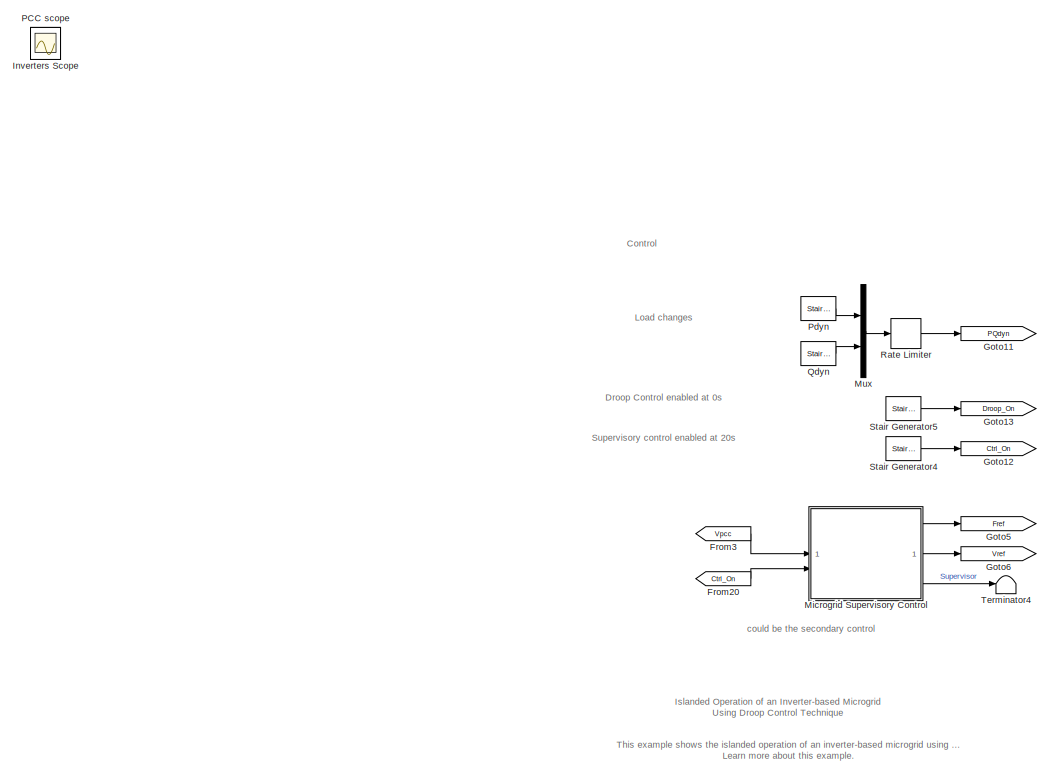
[diagram: root canvas - part 1/2, left side, full height]
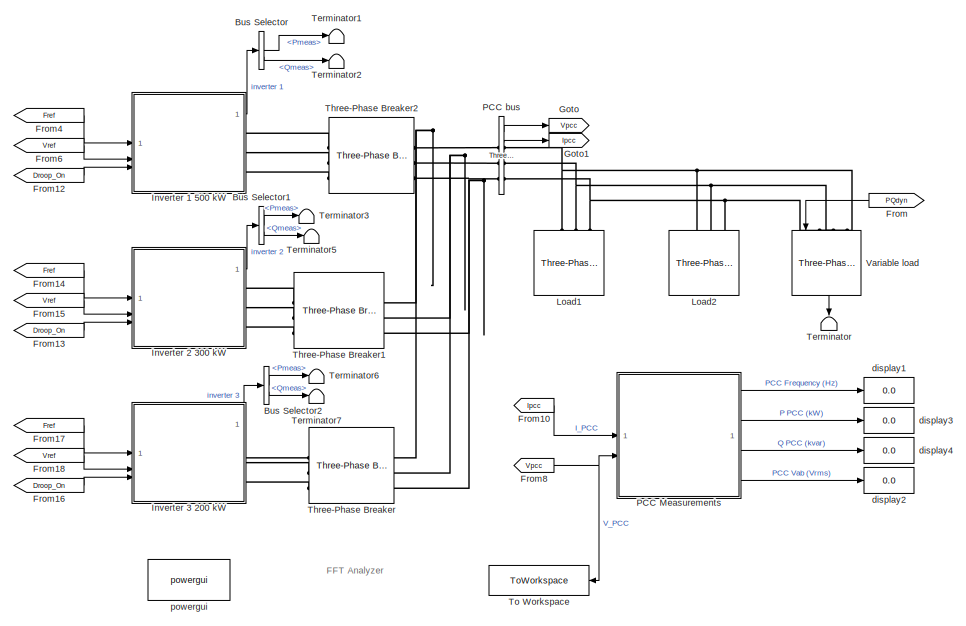
[diagram: root canvas - part 2/2, right side, full height]
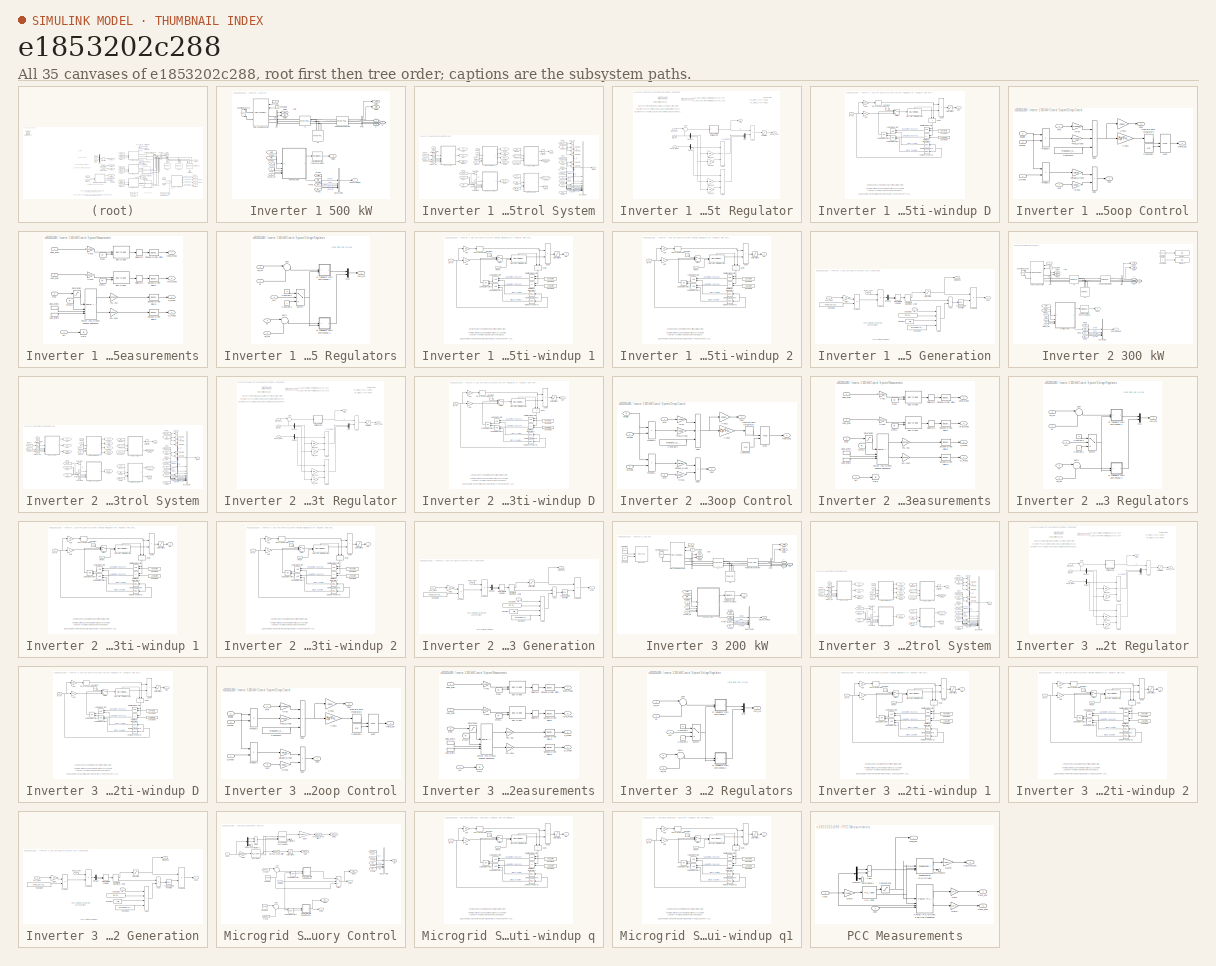
[diagram: thumbnail index - all 35 canvases of the model, root first then tree order]
MODEL slx_e1853202c288
KIND model
CONFIG AbsTol = auto
CONFIG EnableMultiTasking = off
CONFIG FixedStep = Ts
CONFIG MaxStep = auto
CONFIG MinStep = auto
CONFIG PreLoadFcn = Ts=50e-6;\n
CONFIG RelTol = 1e-4
CONFIG SampleTimeConstraint = Unconstrained
CONFIG SolverName = FixedStepDiscrete
CONFIG StartTime = 0.0
CONFIG StopTime = 15
BLOCK [BusSelector] Bus Selector
  OutputSignals = Control.Pmeas,Control.Qmeas
BLOCK [BusSelector] Bus Selector1
  OutputSignals = Control.Pmeas,Control.Qmeas
BLOCK [BusSelector] Bus Selector2
  OutputSignals = Control.Pmeas,Control.Qmeas
BLOCK [From] From
  GotoTag = PQdyn
BLOCK [From] From10
  GotoTag = Ipcc
BLOCK [From] From12
  GotoTag = Droop_On
BLOCK [From] From13
  GotoTag = Droop_On
BLOCK [From] From14
  GotoTag = Fref
BLOCK [From] From15
  GotoTag = Vref
BLOCK [From] From16
  GotoTag = Droop_On
BLOCK [From] From17
  GotoTag = Fref
BLOCK [From] From18
  GotoTag = Vref
BLOCK [From] From20
  GotoTag = Ctrl_On
BLOCK [From] From3
  GotoTag = Vpcc
BLOCK [From] From4
  GotoTag = Fref
BLOCK [From] From6
  GotoTag = Vref
BLOCK [From] From8
  GotoTag = Vpcc
BLOCK [Goto] Goto
  GotoTag = Vpcc
BLOCK [Goto] Goto1
  GotoTag = Ipcc
BLOCK [Goto] Goto11
  GotoTag = PQdyn
BLOCK [Goto] Goto12
  GotoTag = Ctrl_On
BLOCK [Goto] Goto13
  GotoTag = Droop_On
BLOCK [Goto] Goto5
  GotoTag = Fref
BLOCK [Goto] Goto6
  GotoTag = Vref
BLOCK [SubSystem] Inverter 1 500 kW
BLOCK [Reference] Inverter 1 500 kW/480//600V transformer  REF=spsThreePhaseTransformerTwoWindingsLib/Three-Phase
Transformer
(Two Windings)
  AttributesFormatString = \n
  SourceBlock = spsThreePhaseTransformerTwoWindingsLib/Three-Phase\nTransformer\n(Two Windings)
  SourceType = Three-Phase Transformer (Two Windings)
BLOCK [PMIOPort] Inverter 1 500 kW/A
  NameLocation = top
  Side = Right
BLOCK [PMIOPort] Inverter 1 500 kW/B
  NameLocation = top
  Port = 2
  Side = Right
BLOCK [BusCreator] Inverter 1 500 kW/Bus Creator
  DisplayOption = bar
  InheritFromInputs = on
  Inputs = 5
BLOCK [PMIOPort] Inverter 1 500 kW/C
  Port = 3
  Side = Right
BLOCK [Reference] Inverter 1 500 kW/C1  REF=spsThreePhaseSeriesRLCLoadLib/Three-Phase
Series RLC Load
  AttributesFormatString = \n
  NameLocation = right
  SourceBlock = spsThreePhaseSeriesRLCLoadLib/Three-Phase\nSeries RLC Load
  SourceType = Three-Phase Series RLC Load
BLOCK [Constant] Inverter 1 500 kW/Constant1
  Value = 0
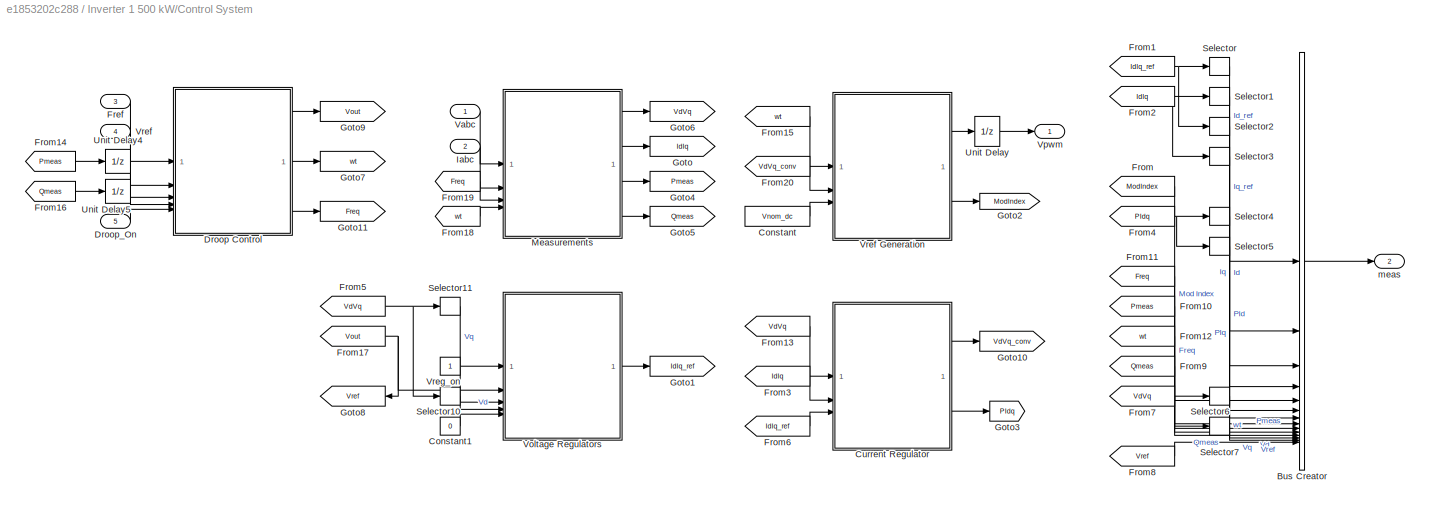
BLOCK [SubSystem] Inverter 1 500 kW/Control System
BLOCK [BusCreator] Inverter 1 500 kW/Control System/Bus Creator
  DisplayOption = bar
  InheritFromInputs = on
  Inputs = 14
BLOCK [Constant] Inverter 1 500 kW/Control System/Constant
  SampleTime = Ts
  Value = Vnom_dc
BLOCK [Constant] Inverter 1 500 kW/Control System/Constant1
  SampleTime = Ts
  Value = 0
BLOCK [SubSystem] Inverter 1 500 kW/Control System/Current Regulator
BLOCK [Sum] Inverter 1 500 kW/Control System/Current Regulator/Add1
  IconShape = rectangular
  Inputs = ++-
BLOCK [Sum] Inverter 1 500 kW/Control System/Current Regulator/Add2
  IconShape = rectangular
BLOCK [Sum] Inverter 1 500 kW/Control System/Current Regulator/Add3
  IconShape = rectangular
  Inputs = +++
BLOCK [Demux] Inverter 1 500 kW/Control System/Current Regulator/Demux
  Outputs = 2
BLOCK [Demux] Inverter 1 500 kW/Control System/Current Regulator/Demux1
  Outputs = 2
BLOCK [Inport] Inverter 1 500 kW/Control System/Current Regulator/IdIq_meas
  Port = 2
  PortDimensions = 2
BLOCK [Inport] Inverter 1 500 kW/Control System/Current Regulator/IdIq_ref
  Port = 3
  PortDimensions = 2
BLOCK [Gain] Inverter 1 500 kW/Control System/Current Regulator/Ltot_pu1
  Gain = Lff
  OutDataTypeStr = Inherit: Same as input
  ParamDataTypeStr = Inherit: Same as input
  SaturateOnIntegerOverflow = on
BLOCK [Gain] Inverter 1 500 kW/Control System/Current Regulator/Ltot_pu2
  Gain = Lff
  OutDataTypeStr = Inherit: Same as input
  ParamDataTypeStr = Inherit: Same as input
  SaturateOnIntegerOverflow = on
BLOCK [Mux] Inverter 1 500 kW/Control System/Current Regulator/Mux
  DisplayOption = bar
  Inputs = 2
BLOCK [SubSystem] Inverter 1 500 kW/Control System/Current Regulator/PI regulator with anti-windup D
  DialogController = POWERSYS.PowerSysDialog
BLOCK [Reference] Inverter 1 500 kW/Control System/Current Regulator/PI regulator with anti-windup D/Compare To Zero  REF=simulink/Logic and Bit
Operations/Compare
To Zero
  SourceBlock = simulink/Logic and Bit\nOperations/Compare\nTo Zero
  SourceType = Compare To Zero
BLOCK [Reference] Inverter 1 500 kW/Control System/Current Regulator/PI regulator with anti-windup D/Compare To Zero1  REF=simulink/Logic and Bit
Operations/Compare
To Zero
  SourceBlock = simulink/Logic and Bit\nOperations/Compare\nTo Zero
  SourceType = Compare To Zero
BLOCK [Constant] Inverter 1 500 kW/Control System/Current Regulator/PI regulator with anti-windup D/Constant
  Value = 0
BLOCK [Constant] Inverter 1 500 kW/Control System/Current Regulator/PI regulator with anti-windup D/Constant1
  Value = UpperLimit
BLOCK [Constant] Inverter 1 500 kW/Control System/Current Regulator/PI regulator with anti-windup D/Constant3
  Value = LowerLimit
BLOCK [DiscreteIntegrator] Inverter 1 500 kW/Control System/Current Regulator/PI regulator with anti-windup D/Discrete-Time Integrator
  ICPrevOutput = DiscIntNeverNeededParam
  ICPrevScaledInput = DiscIntNeverNeededParam
  InitialCondition = Init
  IntegratorMethod = Integration: Trapezoidal
  LimitOutput = on
  LowerSaturationLimit = LowerLimit
  SampleTime = Ts
  ShowStatePort = on
  UpperSaturationLimit = UpperLimit
BLOCK [Inport] Inverter 1 500 kW/Control System/Current Regulator/PI regulator with anti-windup D/Error
  SampleTime = Ts
BLOCK [Gain] Inverter 1 500 kW/Control System/Current Regulator/PI regulator with anti-windup D/Kp4
  Gain = Kp
  OutDataTypeStr = Inherit: Same as input
  ParamDataTypeStr = Inherit: Same as input
  SampleTime = Ts
  SaturateOnIntegerOverflow = on
BLOCK [Gain] Inverter 1 500 kW/Control System/Current Regulator/PI regulator with anti-windup D/Kp5
  Gain = Ki
  OutDataTypeStr = Inherit: Same as input
  ParamDataTypeStr = Inherit: Same as input
  SampleTime = Ts
  SaturateOnIntegerOverflow = on
BLOCK [Logic] Inverter 1 500 kW/Control System/Current Regulator/PI regulator with anti-windup D/Logical Operator
  AllPortsSameDT = off
  OutDataTypeStr = boolean
BLOCK [Logic] Inverter 1 500 kW/Control System/Current Regulator/PI regulator with anti-windup D/Logical Operator1
  AllPortsSameDT = off
  OutDataTypeStr = boolean
BLOCK [Logic] Inverter 1 500 kW/Control System/Current Regulator/PI regulator with anti-windup D/Logical Operator2
  AllPortsSameDT = off
  Operator = OR
  OutDataTypeStr = boolean
BLOCK [Outport] Inverter 1 500 kW/Control System/Current Regulator/PI regulator with anti-windup D/Out
  InitialOutput = 0
  SampleTime = Ts
  VectorParamsAs1DForOutWhenUnconnected = off
BLOCK [RelationalOperator] Inverter 1 500 kW/Control System/Current Regulator/PI regulator with anti-windup D/Relational Operator
  InputSameDT = off
  OutDataTypeStr = boolean
BLOCK [RelationalOperator] Inverter 1 500 kW/Control System/Current Regulator/PI regulator with anti-windup D/Relational Operator1
  InputSameDT = off
  Operator = <=
  OutDataTypeStr = boolean
BLOCK [Saturate] Inverter 1 500 kW/Control System/Current Regulator/PI regulator with anti-windup D/Saturation2
  LowerLimit = LowerLimit
  NameLocation = top
  SampleTime = Ts
  UpperLimit = UpperLimit
BLOCK [Sum] Inverter 1 500 kW/Control System/Current Regulator/PI regulator with anti-windup D/Sum1
  IconShape = rectangular
  InputSameDT = on
  NameLocation = left
  OutDataTypeStr = Inherit: Same as first input
  SampleTime = Ts
  SaturateOnIntegerOverflow = on
BLOCK [Sum] Inverter 1 500 kW/Control System/Current Regulator/PI regulator with anti-windup D/Sum6
  IconShape = rectangular
  InputSameDT = on
  OutDataTypeStr = Inherit: Same as first input
  SampleTime = Ts
  SaturateOnIntegerOverflow = on
BLOCK [Switch] Inverter 1 500 kW/Control System/Current Regulator/PI regulator with anti-windup D/Switch
  Criteria = u2 > Threshold
  InputSameDT = off
  SaturateOnIntegerOverflow = off
BLOCK [ZeroOrderHold] Inverter 1 500 kW/Control System/Current Regulator/PI regulator with anti-windup D/Zero-Order Hold
  SampleTime = Ts
BLOCK [Outport] Inverter 1 500 kW/Control System/Current Regulator/PIdq
  Port = 2
  VectorParamsAs1DForOutWhenUnconnected = off
BLOCK [Gain] Inverter 1 500 kW/Control System/Current Regulator/Rtot_pu1
  Gain = Rff
  NameLocation = top
  OutDataTypeStr = Inherit: Same as input
  ParamDataTypeStr = Inherit: Same as input
  SaturateOnIntegerOverflow = on
BLOCK [Gain] Inverter 1 500 kW/Control System/Current Regulator/Rtot_pu5
  Gain = Rff
  NameLocation = top
  OutDataTypeStr = Inherit: Same as input
  ParamDataTypeStr = Inherit: Same as input
  SaturateOnIntegerOverflow = on
BLOCK [Saturate] Inverter 1 500 kW/Control System/Current Regulator/Saturation
  LowerLimit = Limits_Ireg(2)
  UpperLimit = Limits_Ireg(1)
BLOCK [Sum] Inverter 1 500 kW/Control System/Current Regulator/Sum
  Inputs = |-+
BLOCK [Outport] Inverter 1 500 kW/Control System/Current Regulator/VdVq_conv
  VectorParamsAs1DForOutWhenUnconnected = off
BLOCK [Inport] Inverter 1 500 kW/Control System/Current Regulator/VdVq_meas
  PortDimensions = 2
BLOCK [SubSystem] Inverter 1 500 kW/Control System/Droop Control
BLOCK [Gain] Inverter 1 500 kW/Control System/Droop Control/-Freq_Droop
  Gain = -Frequency_Droop/100
BLOCK [Sum] Inverter 1 500 kW/Control System/Droop Control/Add1
  IconShape = rectangular
BLOCK [Sum] Inverter 1 500 kW/Control System/Droop Control/Add2
  IconShape = rectangular
  Inputs = +++
BLOCK [Constant] Inverter 1 500 kW/Control System/Droop Control/Constant1
  Value = 2*pi
BLOCK [Constant] Inverter 1 500 kW/Control System/Droop Control/Constant2
  Value = Frequency_Droop/100/2
BLOCK [DiscreteIntegrator] Inverter 1 500 kW/Control System/Droop Control/Discrete-Time Integrator1
  ICPrevOutput = DiscIntNeverNeededParam
  ICPrevScaledInput = DiscIntNeverNeededParam
  InitialConditionSetting = Auto
  SampleTime = Ts
BLOCK [Inport] Inverter 1 500 kW/Control System/Droop Control/Enable
  Port = 5
BLOCK [Outport] Inverter 1 500 kW/Control System/Droop Control/Fout
  Port = 3
BLOCK [Inport] Inverter 1 500 kW/Control System/Droop Control/Fref
  PortDimensions = 1
BLOCK [Math] Inverter 1 500 kW/Control System/Droop Control/Mod
  Operator = mod
BLOCK [Inport] Inverter 1 500 kW/Control System/Droop Control/Pmeas
  Port = 3
BLOCK [Product] Inverter 1 500 kW/Control System/Droop Control/Product1
BLOCK [Product] Inverter 1 500 kW/Control System/Droop Control/Product2
BLOCK [Inport] Inverter 1 500 kW/Control System/Droop Control/Qmeas
  Port = 4
BLOCK [Gain] Inverter 1 500 kW/Control System/Droop Control/V->pu1
  Gain = Fnom
  OutDataTypeStr = Inherit: Same as input
  ParamDataTypeStr = Inherit: Same as input
  SaturateOnIntegerOverflow = on
BLOCK [Gain] Inverter 1 500 kW/Control System/Droop Control/V->pu4
  Gain = 2*pi*Fnom
  OutDataTypeStr = Inherit: Same as input
  ParamDataTypeStr = Inherit: Same as input
  SaturateOnIntegerOverflow = on
BLOCK [Gain] Inverter 1 500 kW/Control System/Droop Control/Voltage_Droop
  Gain = -Voltage_Droop/100
  NameLocation = top
BLOCK [Outport] Inverter 1 500 kW/Control System/Droop Control/Vout
BLOCK [Inport] Inverter 1 500 kW/Control System/Droop Control/Vref
  Port = 2
  PortDimensions = 1
BLOCK [Outport] Inverter 1 500 kW/Control System/Droop Control/theta_out
  Port = 2
BLOCK [Gain] Inverter 1 500 kW/Control System/Droop Control/to-pu
  Gain = 1/Fnom
  NameLocation = top
BLOCK [Gain] Inverter 1 500 kW/Control System/Droop Control/to-pu1
  Gain = 1/Vnom_prim
BLOCK [Inport] Inverter 1 500 kW/Control System/Droop_On
  NameLocation = left
  Port = 5
BLOCK [Inport] Inverter 1 500 kW/Control System/Fref
  NameLocation = left
  Port = 3
  PortDimensions = 1
BLOCK [From] Inverter 1 500 kW/Control System/From
  GotoTag = ModIndex
BLOCK [From] Inverter 1 500 kW/Control System/From1
  GotoTag = IdIq_ref
BLOCK [From] Inverter 1 500 kW/Control System/From10
  GotoTag = Pmeas
BLOCK [From] Inverter 1 500 kW/Control System/From11
  GotoTag = Freq
BLOCK [From] Inverter 1 500 kW/Control System/From12
  GotoTag = wt
BLOCK [From] Inverter 1 500 kW/Control System/From13
  GotoTag = VdVq
BLOCK [From] Inverter 1 500 kW/Control System/From14
  GotoTag = Pmeas
BLOCK [From] Inverter 1 500 kW/Control System/From15
  GotoTag = wt
BLOCK [From] Inverter 1 500 kW/Control System/From16
  GotoTag = Qmeas
BLOCK [From] Inverter 1 500 kW/Control System/From17
  GotoTag = Vout
BLOCK [From] Inverter 1 500 kW/Control System/From18
  GotoTag = wt
BLOCK [From] Inverter 1 500 kW/Control System/From19
  GotoTag = Freq
BLOCK [From] Inverter 1 500 kW/Control System/From2
  GotoTag = IdIq
BLOCK [From] Inverter 1 500 kW/Control System/From20
  GotoTag = VdVq_conv
BLOCK [From] Inverter 1 500 kW/Control System/From3
  GotoTag = IdIq
BLOCK [From] Inverter 1 500 kW/Control System/From4
  GotoTag = PIdq
BLOCK [From] Inverter 1 500 kW/Control System/From5
  GotoTag = VdVq
BLOCK [From] Inverter 1 500 kW/Control System/From6
  GotoTag = IdIq_ref
BLOCK [From] Inverter 1 500 kW/Control System/From7
  GotoTag = VdVq
BLOCK [From] Inverter 1 500 kW/Control System/From8
  GotoTag = Vref
BLOCK [From] Inverter 1 500 kW/Control System/From9
  GotoTag = Qmeas
BLOCK [Goto] Inverter 1 500 kW/Control System/Goto
  GotoTag = IdIq
BLOCK [Goto] Inverter 1 500 kW/Control System/Goto1
  GotoTag = IdIq_ref
BLOCK [Goto] Inverter 1 500 kW/Control System/Goto10
  GotoTag = VdVq_conv
BLOCK [Goto] Inverter 1 500 kW/Control System/Goto11
  GotoTag = Freq
BLOCK [Goto] Inverter 1 500 kW/Control System/Goto2
  GotoTag = ModIndex
BLOCK [Goto] Inverter 1 500 kW/Control System/Goto3
  GotoTag = PIdq
BLOCK [Goto] Inverter 1 500 kW/Control System/Goto4
  GotoTag = Pmeas
BLOCK [Goto] Inverter 1 500 kW/Control System/Goto5
  GotoTag = Qmeas
BLOCK [Goto] Inverter 1 500 kW/Control System/Goto6
  GotoTag = VdVq
BLOCK [Goto] Inverter 1 500 kW/Control System/Goto7
  GotoTag = wt
BLOCK [Goto] Inverter 1 500 kW/Control System/Goto8
  GotoTag = Vref
BLOCK [Goto] Inverter 1 500 kW/Control System/Goto9
  GotoTag = Vout
BLOCK [Inport] Inverter 1 500 kW/Control System/Iabc
  Port = 2
  PortDimensions = 3
BLOCK [SubSystem] Inverter 1 500 kW/Control System/Measurements
BLOCK [Inport] Inverter 1 500 kW/Control System/Measurements/Freq
  Port = 3
BLOCK [From] Inverter 1 500 kW/Control System/Measurements/From
  GotoTag = wt
BLOCK [From] Inverter 1 500 kW/Control System/Measurements/From1
  GotoTag = wt
BLOCK [From] Inverter 1 500 kW/Control System/Measurements/From2
  GotoTag = wt
BLOCK [Goto] Inverter 1 500 kW/Control System/Measurements/Goto
  GotoTag = wt
BLOCK [Inport] Inverter 1 500 kW/Control System/Measurements/Iabc_prim
  Port = 2
BLOCK [InportShadow] Inverter 1 500 kW/Control System/Measurements/Iabc_prim1
  NameLocation = left
  Port = 2
BLOCK [Outport] Inverter 1 500 kW/Control System/Measurements/IdIq_meas
  Port = 2
  VectorParamsAs1DForOutWhenUnconnected = off
BLOCK [Gain] Inverter 1 500 kW/Control System/Measurements/PQ->pu
  Gain = 1/Pnom
  OutDataTypeStr = Inherit: Same as input
  ParamDataTypeStr = Inherit: Same as input
  SaturateOnIntegerOverflow = on
BLOCK [Gain] Inverter 1 500 kW/Control System/Measurements/PQ->pu1
  Gain = 1/Pnom
  OutDataTypeStr = Inherit: Same as input
  ParamDataTypeStr = Inherit: Same as input
  SaturateOnIntegerOverflow = on
BLOCK [Outport] Inverter 1 500 kW/Control System/Measurements/P_meas
  Port = 3
  VectorParamsAs1DForOutWhenUnconnected = off
BLOCK [Reference] Inverter 1 500 kW/Control System/Measurements/Power (PLL-Driven, Positive-Sequence)  REF=spsPowerPLLDrivenPositiveSequenceLib/Power
(PLL-Driven,
Positive-Sequence)
  SourceBlock = spsPowerPLLDrivenPositiveSequenceLib/Power\n(PLL-Driven,\nPositive-Sequence)
  SourceType = Power (PLL-Driven, Positive-Sequence)
BLOCK [Outport] Inverter 1 500 kW/Control System/Measurements/Q_meas
  Port = 4
  VectorParamsAs1DForOutWhenUnconnected = off
BLOCK [Saturate] Inverter 1 500 kW/Control System/Measurements/Saturation
  LowerLimit = 45
  UpperLimit = 55
BLOCK [Reference] Inverter 1 500 kW/Control System/Measurements/Second-Order Filter  REF=spsSecondOrderFilterLib/Second-Order
Filter
  SourceBlock = spsSecondOrderFilterLib/Second-Order\nFilter
  SourceType = Second-Order Filter
BLOCK [Reference] Inverter 1 500 kW/Control System/Measurements/Second-Order Filter1  REF=spsSecondOrderFilterLib/Second-Order
Filter
  SourceBlock = spsSecondOrderFilterLib/Second-Order\nFilter
  SourceType = Second-Order Filter
BLOCK [Reference] Inverter 1 500 kW/Control System/Measurements/Second-Order Filter2  REF=spsSecondOrderFilterLib/Second-Order
Filter
  SourceBlock = spsSecondOrderFilterLib/Second-Order\nFilter
  SourceType = Second-Order Filter
BLOCK [Reference] Inverter 1 500 kW/Control System/Measurements/Second-Order Filter3  REF=spsSecondOrderFilterLib/Second-Order
Filter
  SourceBlock = spsSecondOrderFilterLib/Second-Order\nFilter
  SourceType = Second-Order Filter
BLOCK [Selector] Inverter 1 500 kW/Control System/Measurements/Selector1
  IndexOptions = Index vector (dialog)
  Indices = [1 2]
  InputPortWidth = 3
  OutputSizes = 1
BLOCK [Selector] Inverter 1 500 kW/Control System/Measurements/Selector2
  IndexOptions = Index vector (dialog)
  Indices = [1 2]
  InputPortWidth = 3
  OutputSizes = 1
BLOCK [Gain] Inverter 1 500 kW/Control System/Measurements/V->pu
  Gain = 1/(Vnom_prim*sqrt(2)/sqrt(3))
  OutDataTypeStr = Inherit: Same as input
  ParamDataTypeStr = Inherit: Same as input
  SaturateOnIntegerOverflow = on
BLOCK [Gain] Inverter 1 500 kW/Control System/Measurements/V->pu1
  Gain = Vnom_prim*sqrt(3)/Pnom/sqrt(2)
  OutDataTypeStr = Inherit: Same as input
  ParamDataTypeStr = Inherit: Same as input
  SaturateOnIntegerOverflow = on
BLOCK [Inport] Inverter 1 500 kW/Control System/Measurements/Vabc_prim
BLOCK [InportShadow] Inverter 1 500 kW/Control System/Measurements/Vabc_prim1
  NameLocation = left
BLOCK [Outport] Inverter 1 500 kW/Control System/Measurements/VdVq_meas
  VectorParamsAs1DForOutWhenUnconnected = off
BLOCK [Reference] Inverter 1 500 kW/Control System/Measurements/abc to dq0  REF=spsabctodq0Lib/abc to dq0
  SourceBlock = spsabctodq0Lib/abc to dq0
  SourceType = abc to dq0 Transformation
BLOCK [Reference] Inverter 1 500 kW/Control System/Measurements/abc to dq1  REF=spsabctodq0Lib/abc to dq0
  SourceBlock = spsabctodq0Lib/abc to dq0
  SourceType = abc to dq0 Transformation
BLOCK [Inport] Inverter 1 500 kW/Control System/Measurements/wt
  Port = 4
BLOCK [Selector] Inverter 1 500 kW/Control System/Selector
  IndexOptions = Index vector (dialog)
  Indices = 1
  InputPortWidth = 2
  OutputSizes = 1
BLOCK [Selector] Inverter 1 500 kW/Control System/Selector1
  IndexOptions = Index vector (dialog)
  Indices = 1
  InputPortWidth = 2
  OutputSizes = 1
BLOCK [Selector] Inverter 1 500 kW/Control System/Selector10
  IndexOptions = Index vector (dialog)
  Indices = 1
  InputPortWidth = 2
  OutputSizes = 1
BLOCK [Selector] Inverter 1 500 kW/Control System/Selector11
  IndexOptions = Index vector (dialog)
  Indices = 2
  InputPortWidth = 2
  OutputSizes = 1
BLOCK [Selector] Inverter 1 500 kW/Control System/Selector2
  IndexOptions = Index vector (dialog)
  Indices = 2
  InputPortWidth = 2
  OutputSizes = 1
BLOCK [Selector] Inverter 1 500 kW/Control System/Selector3
  IndexOptions = Index vector (dialog)
  Indices = 2
  InputPortWidth = 2
  OutputSizes = 1
BLOCK [Selector] Inverter 1 500 kW/Control System/Selector4
  IndexOptions = Index vector (dialog)
  Indices = 1
  InputPortWidth = 2
  OutputSizes = 1
BLOCK [Selector] Inverter 1 500 kW/Control System/Selector5
  IndexOptions = Index vector (dialog)
  Indices = 2
  InputPortWidth = 2
  OutputSizes = 1
BLOCK [Selector] Inverter 1 500 kW/Control System/Selector6
  IndexOptions = Index vector (dialog)
  Indices = 1
  InputPortWidth = 2
  OutputSizes = 1
BLOCK [Selector] Inverter 1 500 kW/Control System/Selector7
  IndexOptions = Index vector (dialog)
  Indices = 2
  InputPortWidth = 2
  OutputSizes = 1
BLOCK [UnitDelay] Inverter 1 500 kW/Control System/Unit Delay
  HasFrameUpgradeWarning = on
  SampleTime = -1
BLOCK [UnitDelay] Inverter 1 500 kW/Control System/Unit Delay4
  HasFrameUpgradeWarning = on
  SampleTime = -1
BLOCK [UnitDelay] Inverter 1 500 kW/Control System/Unit Delay5
  HasFrameUpgradeWarning = on
  SampleTime = -1
BLOCK [Inport] Inverter 1 500 kW/Control System/Vabc
  PortDimensions = 3
BLOCK [SubSystem] Inverter 1 500 kW/Control System/Voltage Regulators
BLOCK [Constant] Inverter 1 500 kW/Control System/Voltage Regulators/Constant1
  Value = 0
BLOCK [Constant] Inverter 1 500 kW/Control System/Voltage Regulators/Constant2
BLOCK [Outport] Inverter 1 500 kW/Control System/Voltage Regulators/IdIq_ref
  InitialOutput = 0
  VectorParamsAs1DForOutWhenUnconnected = off
BLOCK [Mux] Inverter 1 500 kW/Control System/Voltage Regulators/Mux
  DisplayOption = bar
  Inputs = 2
BLOCK [Inport] Inverter 1 500 kW/Control System/Voltage Regulators/On
  Port = 3
  PortDimensions = 1
BLOCK [SubSystem] Inverter 1 500 kW/Control System/Voltage Regulators/PI regulator with anti-windup 1
  DialogController = POWERSYS.PowerSysDialog
BLOCK [Reference] Inverter 1 500 kW/Control System/Voltage Regulators/PI regulator with anti-windup 1/Compare To Zero  REF=simulink/Logic and Bit
Operations/Compare
To Zero
  SourceBlock = simulink/Logic and Bit\nOperations/Compare\nTo Zero
  SourceType = Compare To Zero
BLOCK [Reference] Inverter 1 500 kW/Control System/Voltage Regulators/PI regulator with anti-windup 1/Compare To Zero1  REF=simulink/Logic and Bit
Operations/Compare
To Zero
  SourceBlock = simulink/Logic and Bit\nOperations/Compare\nTo Zero
  SourceType = Compare To Zero
BLOCK [Constant] Inverter 1 500 kW/Control System/Voltage Regulators/PI regulator with anti-windup 1/Constant
  Value = 0
BLOCK [Constant] Inverter 1 500 kW/Control System/Voltage Regulators/PI regulator with anti-windup 1/Constant1
  Value = UpperLimit
BLOCK [Constant] Inverter 1 500 kW/Control System/Voltage Regulators/PI regulator with anti-windup 1/Constant3
  Value = LowerLimit
BLOCK [DiscreteIntegrator] Inverter 1 500 kW/Control System/Voltage Regulators/PI regulator with anti-windup 1/Discrete-Time Integrator
  ExternalReset = level
  ICPrevOutput = DiscIntNeverNeededParam
  ICPrevScaledInput = DiscIntNeverNeededParam
  InitialCondition = Init
  IntegratorMethod = Integration: Trapezoidal
  LimitOutput = on
  LowerSaturationLimit = LowerLimit
  SampleTime = Ts
  ShowStatePort = on
  UpperSaturationLimit = UpperLimit
BLOCK [Inport] Inverter 1 500 kW/Control System/Voltage Regulators/PI regulator with anti-windup 1/Error
  SampleTime = Ts
BLOCK [Gain] Inverter 1 500 kW/Control System/Voltage Regulators/PI regulator with anti-windup 1/Kp4
  Gain = Kp
  OutDataTypeStr = Inherit: Same as input
  ParamDataTypeStr = Inherit: Same as input
  SampleTime = Ts
  SaturateOnIntegerOverflow = on
BLOCK [Gain] Inverter 1 500 kW/Control System/Voltage Regulators/PI regulator with anti-windup 1/Kp5
  Gain = Ki
  OutDataTypeStr = Inherit: Same as input
  ParamDataTypeStr = Inherit: Same as input
  SampleTime = Ts
  SaturateOnIntegerOverflow = on
BLOCK [Logic] Inverter 1 500 kW/Control System/Voltage Regulators/PI regulator with anti-windup 1/Logical Operator
  AllPortsSameDT = off
  OutDataTypeStr = boolean
BLOCK [Logic] Inverter 1 500 kW/Control System/Voltage Regulators/PI regulator with anti-windup 1/Logical Operator1
  AllPortsSameDT = off
  OutDataTypeStr = boolean
BLOCK [Logic] Inverter 1 500 kW/Control System/Voltage Regulators/PI regulator with anti-windup 1/Logical Operator2
  AllPortsSameDT = off
  Operator = OR
  OutDataTypeStr = boolean
BLOCK [Outport] Inverter 1 500 kW/Control System/Voltage Regulators/PI regulator with anti-windup 1/Out
  InitialOutput = 0
  SampleTime = Ts
  VectorParamsAs1DForOutWhenUnconnected = off
BLOCK [RelationalOperator] Inverter 1 500 kW/Control System/Voltage Regulators/PI regulator with anti-windup 1/Relational Operator
  InputSameDT = off
  OutDataTypeStr = boolean
BLOCK [RelationalOperator] Inverter 1 500 kW/Control System/Voltage Regulators/PI regulator with anti-windup 1/Relational Operator1
  InputSameDT = off
  Operator = <=
  OutDataTypeStr = boolean
BLOCK [Inport] Inverter 1 500 kW/Control System/Voltage Regulators/PI regulator with anti-windup 1/Reset
  Port = 2
  SampleTime = Ts
BLOCK [Saturate] Inverter 1 500 kW/Control System/Voltage Regulators/PI regulator with anti-windup 1/Saturation2
  LowerLimit = LowerLimit
  NameLocation = top
  SampleTime = Ts
  UpperLimit = UpperLimit
BLOCK [Sum] Inverter 1 500 kW/Control System/Voltage Regulators/PI regulator with anti-windup 1/Sum1
  IconShape = rectangular
  InputSameDT = on
  NameLocation = left
  OutDataTypeStr = Inherit: Same as first input
  SampleTime = Ts
  SaturateOnIntegerOverflow = on
BLOCK [Sum] Inverter 1 500 kW/Control System/Voltage Regulators/PI regulator with anti-windup 1/Sum6
  IconShape = rectangular
  InputSameDT = on
  OutDataTypeStr = Inherit: Same as first input
  SampleTime = Ts
  SaturateOnIntegerOverflow = on
BLOCK [Switch] Inverter 1 500 kW/Control System/Voltage Regulators/PI regulator with anti-windup 1/Switch
  Criteria = u2 > Threshold
  InputSameDT = off
  SaturateOnIntegerOverflow = off
BLOCK [ZeroOrderHold] Inverter 1 500 kW/Control System/Voltage Regulators/PI regulator with anti-windup 1/Zero-Order Hold
  SampleTime = Ts
BLOCK [SubSystem] Inverter 1 500 kW/Control System/Voltage Regulators/PI regulator with anti-windup 2
  DialogController = POWERSYS.PowerSysDialog
BLOCK [Reference] Inverter 1 500 kW/Control System/Voltage Regulators/PI regulator with anti-windup 2/Compare To Zero  REF=simulink/Logic and Bit
Operations/Compare
To Zero
  SourceBlock = simulink/Logic and Bit\nOperations/Compare\nTo Zero
  SourceType = Compare To Zero
BLOCK [Reference] Inverter 1 500 kW/Control System/Voltage Regulators/PI regulator with anti-windup 2/Compare To Zero1  REF=simulink/Logic and Bit
Operations/Compare
To Zero
  SourceBlock = simulink/Logic and Bit\nOperations/Compare\nTo Zero
  SourceType = Compare To Zero
BLOCK [Constant] Inverter 1 500 kW/Control System/Voltage Regulators/PI regulator with anti-windup 2/Constant
  Value = 0
BLOCK [Constant] Inverter 1 500 kW/Control System/Voltage Regulators/PI regulator with anti-windup 2/Constant1
  Value = UpperLimit
BLOCK [Constant] Inverter 1 500 kW/Control System/Voltage Regulators/PI regulator with anti-windup 2/Constant3
  Value = LowerLimit
BLOCK [DiscreteIntegrator] Inverter 1 500 kW/Control System/Voltage Regulators/PI regulator with anti-windup 2/Discrete-Time Integrator
  ExternalReset = level
  ICPrevOutput = DiscIntNeverNeededParam
  ICPrevScaledInput = DiscIntNeverNeededParam
  InitialCondition = Init
  IntegratorMethod = Integration: Trapezoidal
  LimitOutput = on
  LowerSaturationLimit = LowerLimit
  SampleTime = Ts
  ShowStatePort = on
  UpperSaturationLimit = UpperLimit
BLOCK [Inport] Inverter 1 500 kW/Control System/Voltage Regulators/PI regulator with anti-windup 2/Error
  SampleTime = Ts
BLOCK [Gain] Inverter 1 500 kW/Control System/Voltage Regulators/PI regulator with anti-windup 2/Kp4
  Gain = Kp
  OutDataTypeStr = Inherit: Same as input
  ParamDataTypeStr = Inherit: Same as input
  SampleTime = Ts
  SaturateOnIntegerOverflow = on
BLOCK [Gain] Inverter 1 500 kW/Control System/Voltage Regulators/PI regulator with anti-windup 2/Kp5
  Gain = Ki
  OutDataTypeStr = Inherit: Same as input
  ParamDataTypeStr = Inherit: Same as input
  SampleTime = Ts
  SaturateOnIntegerOverflow = on
BLOCK [Logic] Inverter 1 500 kW/Control System/Voltage Regulators/PI regulator with anti-windup 2/Logical Operator
  AllPortsSameDT = off
  OutDataTypeStr = boolean
BLOCK [Logic] Inverter 1 500 kW/Control System/Voltage Regulators/PI regulator with anti-windup 2/Logical Operator1
  AllPortsSameDT = off
  OutDataTypeStr = boolean
BLOCK [Logic] Inverter 1 500 kW/Control System/Voltage Regulators/PI regulator with anti-windup 2/Logical Operator2
  AllPortsSameDT = off
  Operator = OR
  OutDataTypeStr = boolean
BLOCK [Outport] Inverter 1 500 kW/Control System/Voltage Regulators/PI regulator with anti-windup 2/Out
  InitialOutput = 0
  SampleTime = Ts
  VectorParamsAs1DForOutWhenUnconnected = off
BLOCK [RelationalOperator] Inverter 1 500 kW/Control System/Voltage Regulators/PI regulator with anti-windup 2/Relational Operator
  InputSameDT = off
  OutDataTypeStr = boolean
BLOCK [RelationalOperator] Inverter 1 500 kW/Control System/Voltage Regulators/PI regulator with anti-windup 2/Relational Operator1
  InputSameDT = off
  Operator = <=
  OutDataTypeStr = boolean
BLOCK [Inport] Inverter 1 500 kW/Control System/Voltage Regulators/PI regulator with anti-windup 2/Reset
  Port = 2
  SampleTime = Ts
BLOCK [Saturate] Inverter 1 500 kW/Control System/Voltage Regulators/PI regulator with anti-windup 2/Saturation2
  LowerLimit = LowerLimit
  NameLocation = top
  SampleTime = Ts
  UpperLimit = UpperLimit
BLOCK [Sum] Inverter 1 500 kW/Control System/Voltage Regulators/PI regulator with anti-windup 2/Sum1
  IconShape = rectangular
  InputSameDT = on
  NameLocation = left
  OutDataTypeStr = Inherit: Same as first input
  SampleTime = Ts
  SaturateOnIntegerOverflow = on
BLOCK [Sum] Inverter 1 500 kW/Control System/Voltage Regulators/PI regulator with anti-windup 2/Sum6
  IconShape = rectangular
  InputSameDT = on
  OutDataTypeStr = Inherit: Same as first input
  SampleTime = Ts
  SaturateOnIntegerOverflow = on
BLOCK [Switch] Inverter 1 500 kW/Control System/Voltage Regulators/PI regulator with anti-windup 2/Switch
  Criteria = u2 > Threshold
  InputSameDT = off
  SaturateOnIntegerOverflow = off
BLOCK [ZeroOrderHold] Inverter 1 500 kW/Control System/Voltage Regulators/PI regulator with anti-windup 2/Zero-Order Hold
  SampleTime = Ts
BLOCK [Sum] Inverter 1 500 kW/Control System/Voltage Regulators/Sum
  Inputs = |+-
BLOCK [Sum] Inverter 1 500 kW/Control System/Voltage Regulators/Sum1
  Inputs = |+-
BLOCK [Switch] Inverter 1 500 kW/Control System/Voltage Regulators/Switch
  Criteria = u2 ~= 0
  InputSameDT = off
  SaturateOnIntegerOverflow = off
BLOCK [Inport] Inverter 1 500 kW/Control System/Voltage Regulators/Vd
  Port = 4
  PortDimensions = 1
BLOCK [Inport] Inverter 1 500 kW/Control System/Voltage Regulators/Vd_ref
  Port = 5
  PortDimensions = 1
BLOCK [Inport] Inverter 1 500 kW/Control System/Voltage Regulators/Vq
  PortDimensions = 1
BLOCK [Inport] Inverter 1 500 kW/Control System/Voltage Regulators/Vq_ref
  Port = 2
  PortDimensions = 1
BLOCK [Outport] Inverter 1 500 kW/Control System/Vpwm
  NameLocation = top
  VectorParamsAs1DForOutWhenUnconnected = off
BLOCK [Inport] Inverter 1 500 kW/Control System/Vref
  NameLocation = left
  Port = 4
  PortDimensions = 1
BLOCK [SubSystem] Inverter 1 500 kW/Control System/Vref Generation
BLOCK [Sum] Inverter 1 500 kW/Control System/Vref Generation/Add1
  IconShape = rectangular
  Inputs = ++++
BLOCK [Sum] Inverter 1 500 kW/Control System/Vref Generation/Add2
  IconShape = rectangular
BLOCK [ComplexToMagnitudeAngle] Inverter 1 500 kW/Control System/Vref Generation/Complex to Magnitude-Angle
BLOCK [Constant] Inverter 1 500 kW/Control System/Vref Generation/Constant
  Value = -pi/6
BLOCK [Constant] Inverter 1 500 kW/Control System/Vref Generation/Constant2
  Value = [ 0  -2*pi/3  2*pi/3  ]
BLOCK [Constant] Inverter 1 500 kW/Control System/Vref Generation/Constant3
  Value = Vnom_sec*sqrt(2)/sqrt(3)
BLOCK [Constant] Inverter 1 500 kW/Control System/Vref Generation/Constant4
  Value = Ts*Fnom*(2*pi)
BLOCK [Demux] Inverter 1 500 kW/Control System/Vref Generation/Demux1
  Outputs = 2
BLOCK [Gain] Inverter 1 500 kW/Control System/Vref Generation/Gain1
  Gain = 1/2
BLOCK [Outport] Inverter 1 500 kW/Control System/Vref Generation/ModIndex
  Port = 2
  VectorParamsAs1DForOutWhenUnconnected = off
BLOCK [Product] Inverter 1 500 kW/Control System/Vref Generation/Product
  Inputs = */
  RndMeth = Zero
BLOCK [Product] Inverter 1 500 kW/Control System/Vref Generation/Product1
  Inputs = */
  RndMeth = Zero
BLOCK [Product] Inverter 1 500 kW/Control System/Vref Generation/Product2
  Inputs = **
  RndMeth = Zero
BLOCK [RealImagToComplex] Inverter 1 500 kW/Control System/Vref Generation/Real-Imag to Complex
BLOCK [Saturate] Inverter 1 500 kW/Control System/Vref Generation/Saturation
  LowerLimit = 0
  UpperLimit = 1
BLOCK [Trigonometry] Inverter 1 500 kW/Control System/Vref Generation/Trigonometric Function
BLOCK [Inport] Inverter 1 500 kW/Control System/Vref Generation/VdVq_conv
  Port = 2
BLOCK [Inport] Inverter 1 500 kW/Control System/Vref Generation/Vdc_meas
  Port = 3
BLOCK [Outport] Inverter 1 500 kW/Control System/Vref Generation/Vref
  VectorParamsAs1DForOutWhenUnconnected = off
BLOCK [Inport] Inverter 1 500 kW/Control System/Vref Generation/wt
BLOCK [Constant] Inverter 1 500 kW/Control System/Vreg_on
BLOCK [Outport] Inverter 1 500 kW/Control System/meas
  Port = 2
  VectorParamsAs1DForOutWhenUnconnected = off
BLOCK [Reference] Inverter 1 500 kW/DC Voltage Source  REF=spsDCVoltageSourceLib/DC Voltage Source
  NameLocation = left
  SourceBlock = spsDCVoltageSourceLib/DC Voltage Source
  SourceType = DC Voltage Source
BLOCK [Inport] Inverter 1 500 kW/Droop_On
  Port = 3
  PortDimensions = 1
BLOCK [Inport] Inverter 1 500 kW/Fref
  PortDimensions = 1
BLOCK [From] Inverter 1 500 kW/From1
  GotoTag = Vinv
BLOCK [From] Inverter 1 500 kW/From12
  CloseFcn = tagdialog Close
  GotoTag = Iprim
BLOCK [From] Inverter 1 500 kW/From2
  GotoTag = Iinv
BLOCK [From] Inverter 1 500 kW/From3
  GotoTag = Vprim
BLOCK [From] Inverter 1 500 kW/From4
  GotoTag = Vprim
BLOCK [From] Inverter 1 500 kW/From5
  GotoTag = Iprim
BLOCK [From] Inverter 1 500 kW/From8
  GotoTag = g
BLOCK [Goto] Inverter 1 500 kW/Goto1
  GotoTag = g
BLOCK [Goto] Inverter 1 500 kW/Goto3
  GotoTag = Iinv
BLOCK [Goto] Inverter 1 500 kW/Goto4
  GotoTag = Vprim
BLOCK [Goto] Inverter 1 500 kW/Goto5
  GotoTag = Vinv
BLOCK [Goto] Inverter 1 500 kW/Goto6
  GotoTag = Iprim
BLOCK [Reference] Inverter 1 500 kW/L1  REF=spsThreePhaseSeriesRLCBranchLib/Three-Phase
Series RLC Branch
  AttributesFormatString = \n
  SourceBlock = spsThreePhaseSeriesRLCBranchLib/Three-Phase\nSeries RLC Branch
  SourceType = Three-Phase Series RLC Branch
BLOCK [Reference] Inverter 1 500 kW/PWM Generator (Pulse Averaging)  REF=spsPWMGeneratorPulseAveragingLib/PWM Generator
(Pulse Averaging)
  SourceBlock = spsPWMGeneratorPulseAveragingLib/PWM Generator\n(Pulse Averaging)
  SourceType = PWM Generator Pulse Averaging
BLOCK [Reference] Inverter 1 500 kW/Two-Level Converter  REF=spsTwoLevelConverterLib/Two-Level Converter
  SourceBlock = spsTwoLevelConverterLib/Two-Level Converter
  SourceType = Two-Level Converter
BLOCK [Inport] Inverter 1 500 kW/Vref
  Port = 2
  PortDimensions = 1
BLOCK [Reference] Inverter 1 500 kW/inv  REF=spsThreePhaseVIMeasurementLib/Three-Phase
V-I Measurement
  SourceBlock = spsThreePhaseVIMeasurementLib/Three-Phase\nV-I Measurement
  SourceType = Three-Phase VI Measurement
BLOCK [Outport] Inverter 1 500 kW/measurements
BLOCK [Reference] Inverter 1 500 kW/prim  REF=spsThreePhaseVIMeasurementLib/Three-Phase
V-I Measurement
  SourceBlock = spsThreePhaseVIMeasurementLib/Three-Phase\nV-I Measurement
  SourceType = Three-Phase VI Measurement
BLOCK [SubSystem] Inverter 2 300 kW
BLOCK [Reference] Inverter 2 300 kW/480//600V transformer  REF=spsThreePhaseTransformerTwoWindingsLib/Three-Phase
Transformer
(Two Windings)
  AttributesFormatString = \n
  SourceBlock = spsThreePhaseTransformerTwoWindingsLib/Three-Phase\nTransformer\n(Two Windings)
  SourceType = Three-Phase Transformer (Two Windings)
BLOCK [PMIOPort] Inverter 2 300 kW/A
  NameLocation = top
  Side = Right
BLOCK [PMIOPort] Inverter 2 300 kW/B
  NameLocation = top
  Port = 2
  Side = Right
BLOCK [BusCreator] Inverter 2 300 kW/Bus Creator
  DisplayOption = bar
  InheritFromInputs = on
  Inputs = 5
BLOCK [PMIOPort] Inverter 2 300 kW/C
  Port = 3
  Side = Right
BLOCK [Reference] Inverter 2 300 kW/C1  REF=spsThreePhaseSeriesRLCLoadLib/Three-Phase
Series RLC Load
  AttributesFormatString = \n
  NameLocation = right
  SourceBlock = spsThreePhaseSeriesRLCLoadLib/Three-Phase\nSeries RLC Load
  SourceType = Three-Phase Series RLC Load
BLOCK [Constant] Inverter 2 300 kW/Constant
  Value = Vnom_sec
BLOCK [Constant] Inverter 2 300 kW/Constant1
  Value = 0
BLOCK [Constant] Inverter 2 300 kW/Constant2
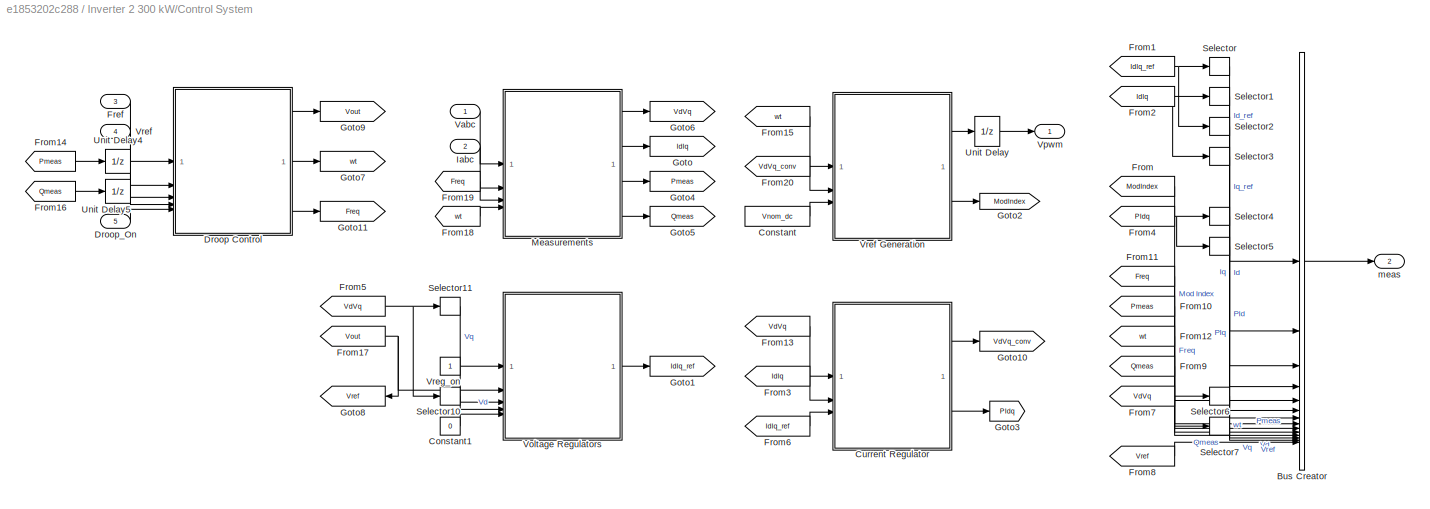
BLOCK [SubSystem] Inverter 2 300 kW/Control System
BLOCK [BusCreator] Inverter 2 300 kW/Control System/Bus Creator
  DisplayOption = bar
  InheritFromInputs = on
  Inputs = 14
BLOCK [Constant] Inverter 2 300 kW/Control System/Constant
  SampleTime = Ts
  Value = Vnom_dc
BLOCK [Constant] Inverter 2 300 kW/Control System/Constant1
  SampleTime = Ts
  Value = 0
BLOCK [SubSystem] Inverter 2 300 kW/Control System/Current Regulator
BLOCK [Sum] Inverter 2 300 kW/Control System/Current Regulator/Add1
  IconShape = rectangular
  Inputs = ++-
BLOCK [Sum] Inverter 2 300 kW/Control System/Current Regulator/Add2
  IconShape = rectangular
BLOCK [Sum] Inverter 2 300 kW/Control System/Current Regulator/Add3
  IconShape = rectangular
  Inputs = +++
BLOCK [Demux] Inverter 2 300 kW/Control System/Current Regulator/Demux
  Outputs = 2
BLOCK [Demux] Inverter 2 300 kW/Control System/Current Regulator/Demux1
  Outputs = 2
BLOCK [Inport] Inverter 2 300 kW/Control System/Current Regulator/IdIq_meas
  Port = 2
  PortDimensions = 2
BLOCK [Inport] Inverter 2 300 kW/Control System/Current Regulator/IdIq_ref
  Port = 3
  PortDimensions = 2
BLOCK [Gain] Inverter 2 300 kW/Control System/Current Regulator/Ltot_pu1
  Gain = Lff
  OutDataTypeStr = Inherit: Same as input
  ParamDataTypeStr = Inherit: Same as input
  SaturateOnIntegerOverflow = on
BLOCK [Gain] Inverter 2 300 kW/Control System/Current Regulator/Ltot_pu2
  Gain = Lff
  OutDataTypeStr = Inherit: Same as input
  ParamDataTypeStr = Inherit: Same as input
  SaturateOnIntegerOverflow = on
BLOCK [Mux] Inverter 2 300 kW/Control System/Current Regulator/Mux
  DisplayOption = bar
  Inputs = 2
BLOCK [SubSystem] Inverter 2 300 kW/Control System/Current Regulator/PI regulator with anti-windup D
  DialogController = POWERSYS.PowerSysDialog
BLOCK [Reference] Inverter 2 300 kW/Control System/Current Regulator/PI regulator with anti-windup D/Compare To Zero  REF=simulink/Logic and Bit
Operations/Compare
To Zero
  SourceBlock = simulink/Logic and Bit\nOperations/Compare\nTo Zero
  SourceType = Compare To Zero
BLOCK [Reference] Inverter 2 300 kW/Control System/Current Regulator/PI regulator with anti-windup D/Compare To Zero1  REF=simulink/Logic and Bit
Operations/Compare
To Zero
  SourceBlock = simulink/Logic and Bit\nOperations/Compare\nTo Zero
  SourceType = Compare To Zero
BLOCK [Constant] Inverter 2 300 kW/Control System/Current Regulator/PI regulator with anti-windup D/Constant
  Value = 0
BLOCK [Constant] Inverter 2 300 kW/Control System/Current Regulator/PI regulator with anti-windup D/Constant1
  Value = UpperLimit
BLOCK [Constant] Inverter 2 300 kW/Control System/Current Regulator/PI regulator with anti-windup D/Constant3
  Value = LowerLimit
BLOCK [DiscreteIntegrator] Inverter 2 300 kW/Control System/Current Regulator/PI regulator with anti-windup D/Discrete-Time Integrator
  ICPrevOutput = DiscIntNeverNeededParam
  ICPrevScaledInput = DiscIntNeverNeededParam
  InitialCondition = Init
  IntegratorMethod = Integration: Trapezoidal
  LimitOutput = on
  LowerSaturationLimit = LowerLimit
  SampleTime = Ts
  ShowStatePort = on
  UpperSaturationLimit = UpperLimit
BLOCK [Inport] Inverter 2 300 kW/Control System/Current Regulator/PI regulator with anti-windup D/Error
  SampleTime = Ts
BLOCK [Gain] Inverter 2 300 kW/Control System/Current Regulator/PI regulator with anti-windup D/Kp4
  Gain = Kp
  OutDataTypeStr = Inherit: Same as input
  ParamDataTypeStr = Inherit: Same as input
  SampleTime = Ts
  SaturateOnIntegerOverflow = on
BLOCK [Gain] Inverter 2 300 kW/Control System/Current Regulator/PI regulator with anti-windup D/Kp5
  Gain = Ki
  OutDataTypeStr = Inherit: Same as input
  ParamDataTypeStr = Inherit: Same as input
  SampleTime = Ts
  SaturateOnIntegerOverflow = on
BLOCK [Logic] Inverter 2 300 kW/Control System/Current Regulator/PI regulator with anti-windup D/Logical Operator
  AllPortsSameDT = off
  OutDataTypeStr = boolean
BLOCK [Logic] Inverter 2 300 kW/Control System/Current Regulator/PI regulator with anti-windup D/Logical Operator1
  AllPortsSameDT = off
  OutDataTypeStr = boolean
BLOCK [Logic] Inverter 2 300 kW/Control System/Current Regulator/PI regulator with anti-windup D/Logical Operator2
  AllPortsSameDT = off
  Operator = OR
  OutDataTypeStr = boolean
BLOCK [Outport] Inverter 2 300 kW/Control System/Current Regulator/PI regulator with anti-windup D/Out
  InitialOutput = 0
  SampleTime = Ts
  VectorParamsAs1DForOutWhenUnconnected = off
BLOCK [RelationalOperator] Inverter 2 300 kW/Control System/Current Regulator/PI regulator with anti-windup D/Relational Operator
  InputSameDT = off
  OutDataTypeStr = boolean
BLOCK [RelationalOperator] Inverter 2 300 kW/Control System/Current Regulator/PI regulator with anti-windup D/Relational Operator1
  InputSameDT = off
  Operator = <=
  OutDataTypeStr = boolean
BLOCK [Saturate] Inverter 2 300 kW/Control System/Current Regulator/PI regulator with anti-windup D/Saturation2
  LowerLimit = LowerLimit
  NameLocation = top
  SampleTime = Ts
  UpperLimit = UpperLimit
BLOCK [Sum] Inverter 2 300 kW/Control System/Current Regulator/PI regulator with anti-windup D/Sum1
  IconShape = rectangular
  InputSameDT = on
  NameLocation = left
  OutDataTypeStr = Inherit: Same as first input
  SampleTime = Ts
  SaturateOnIntegerOverflow = on
BLOCK [Sum] Inverter 2 300 kW/Control System/Current Regulator/PI regulator with anti-windup D/Sum6
  IconShape = rectangular
  InputSameDT = on
  OutDataTypeStr = Inherit: Same as first input
  SampleTime = Ts
  SaturateOnIntegerOverflow = on
BLOCK [Switch] Inverter 2 300 kW/Control System/Current Regulator/PI regulator with anti-windup D/Switch
  Criteria = u2 > Threshold
  InputSameDT = off
  SaturateOnIntegerOverflow = off
BLOCK [ZeroOrderHold] Inverter 2 300 kW/Control System/Current Regulator/PI regulator with anti-windup D/Zero-Order Hold
  SampleTime = Ts
BLOCK [Outport] Inverter 2 300 kW/Control System/Current Regulator/PIdq
  Port = 2
  VectorParamsAs1DForOutWhenUnconnected = off
BLOCK [Gain] Inverter 2 300 kW/Control System/Current Regulator/Rtot_pu1
  Gain = Rff
  NameLocation = top
  OutDataTypeStr = Inherit: Same as input
  ParamDataTypeStr = Inherit: Same as input
  SaturateOnIntegerOverflow = on
BLOCK [Gain] Inverter 2 300 kW/Control System/Current Regulator/Rtot_pu5
  Gain = Rff
  NameLocation = top
  OutDataTypeStr = Inherit: Same as input
  ParamDataTypeStr = Inherit: Same as input
  SaturateOnIntegerOverflow = on
BLOCK [Saturate] Inverter 2 300 kW/Control System/Current Regulator/Saturation
  LowerLimit = Limits_Ireg(2)
  UpperLimit = Limits_Ireg(1)
BLOCK [Sum] Inverter 2 300 kW/Control System/Current Regulator/Sum
  Inputs = |-+
BLOCK [Outport] Inverter 2 300 kW/Control System/Current Regulator/VdVq_conv
  VectorParamsAs1DForOutWhenUnconnected = off
BLOCK [Inport] Inverter 2 300 kW/Control System/Current Regulator/VdVq_meas
  PortDimensions = 2
BLOCK [SubSystem] Inverter 2 300 kW/Control System/Droop Control
BLOCK [Gain] Inverter 2 300 kW/Control System/Droop Control/-Freq_Droop
  Gain = -Frequency_Droop/100
BLOCK [Sum] Inverter 2 300 kW/Control System/Droop Control/Add1
  IconShape = rectangular
BLOCK [Sum] Inverter 2 300 kW/Control System/Droop Control/Add2
  IconShape = rectangular
  Inputs = +++
BLOCK [Constant] Inverter 2 300 kW/Control System/Droop Control/Constant1
  Value = 2*pi
BLOCK [Constant] Inverter 2 300 kW/Control System/Droop Control/Constant2
  Value = Frequency_Droop/100/2
BLOCK [DiscreteIntegrator] Inverter 2 300 kW/Control System/Droop Control/Discrete-Time Integrator1
  ICPrevOutput = DiscIntNeverNeededParam
  ICPrevScaledInput = DiscIntNeverNeededParam
  InitialConditionSetting = Auto
  SampleTime = Ts
BLOCK [Inport] Inverter 2 300 kW/Control System/Droop Control/Enable
  Port = 5
BLOCK [Outport] Inverter 2 300 kW/Control System/Droop Control/Fout
  Port = 3
BLOCK [Inport] Inverter 2 300 kW/Control System/Droop Control/Fref
  PortDimensions = 1
BLOCK [Math] Inverter 2 300 kW/Control System/Droop Control/Mod
  Operator = mod
BLOCK [Inport] Inverter 2 300 kW/Control System/Droop Control/Pmeas
  Port = 3
BLOCK [Product] Inverter 2 300 kW/Control System/Droop Control/Product1
BLOCK [Product] Inverter 2 300 kW/Control System/Droop Control/Product2
BLOCK [Inport] Inverter 2 300 kW/Control System/Droop Control/Qmeas
  Port = 4
BLOCK [Gain] Inverter 2 300 kW/Control System/Droop Control/V->pu1
  Gain = Fnom
  OutDataTypeStr = Inherit: Same as input
  ParamDataTypeStr = Inherit: Same as input
  SaturateOnIntegerOverflow = on
BLOCK [Gain] Inverter 2 300 kW/Control System/Droop Control/V->pu4
  Gain = 2*pi*Fnom
  OutDataTypeStr = Inherit: Same as input
  ParamDataTypeStr = Inherit: Same as input
  SaturateOnIntegerOverflow = on
BLOCK [Gain] Inverter 2 300 kW/Control System/Droop Control/Voltage_Droop
  Gain = -Voltage_Droop/100
  NameLocation = top
BLOCK [Outport] Inverter 2 300 kW/Control System/Droop Control/Vout
BLOCK [Inport] Inverter 2 300 kW/Control System/Droop Control/Vref
  Port = 2
  PortDimensions = 1
BLOCK [Outport] Inverter 2 300 kW/Control System/Droop Control/theta_out
  Port = 2
BLOCK [Gain] Inverter 2 300 kW/Control System/Droop Control/to-pu
  Gain = 1/Fnom
  NameLocation = top
BLOCK [Gain] Inverter 2 300 kW/Control System/Droop Control/to-pu1
  Gain = 1/Vnom_prim
BLOCK [Inport] Inverter 2 300 kW/Control System/Droop_On
  NameLocation = left
  Port = 5
BLOCK [Inport] Inverter 2 300 kW/Control System/Fref
  NameLocation = left
  Port = 3
  PortDimensions = 1
BLOCK [From] Inverter 2 300 kW/Control System/From
  GotoTag = ModIndex
BLOCK [From] Inverter 2 300 kW/Control System/From1
  GotoTag = IdIq_ref
BLOCK [From] Inverter 2 300 kW/Control System/From10
  GotoTag = Pmeas
BLOCK [From] Inverter 2 300 kW/Control System/From11
  GotoTag = Freq
BLOCK [From] Inverter 2 300 kW/Control System/From12
  GotoTag = wt
BLOCK [From] Inverter 2 300 kW/Control System/From13
  GotoTag = VdVq
BLOCK [From] Inverter 2 300 kW/Control System/From14
  GotoTag = Pmeas
BLOCK [From] Inverter 2 300 kW/Control System/From15
  GotoTag = wt
BLOCK [From] Inverter 2 300 kW/Control System/From16
  GotoTag = Qmeas
BLOCK [From] Inverter 2 300 kW/Control System/From17
  GotoTag = Vout
BLOCK [From] Inverter 2 300 kW/Control System/From18
  GotoTag = wt
BLOCK [From] Inverter 2 300 kW/Control System/From19
  GotoTag = Freq
BLOCK [From] Inverter 2 300 kW/Control System/From2
  GotoTag = IdIq
BLOCK [From] Inverter 2 300 kW/Control System/From20
  GotoTag = VdVq_conv
BLOCK [From] Inverter 2 300 kW/Control System/From3
  GotoTag = IdIq
BLOCK [From] Inverter 2 300 kW/Control System/From4
  GotoTag = PIdq
BLOCK [From] Inverter 2 300 kW/Control System/From5
  GotoTag = VdVq
BLOCK [From] Inverter 2 300 kW/Control System/From6
  GotoTag = IdIq_ref
BLOCK [From] Inverter 2 300 kW/Control System/From7
  GotoTag = VdVq
BLOCK [From] Inverter 2 300 kW/Control System/From8
  GotoTag = Vref
BLOCK [From] Inverter 2 300 kW/Control System/From9
  GotoTag = Qmeas
BLOCK [Goto] Inverter 2 300 kW/Control System/Goto
  GotoTag = IdIq
BLOCK [Goto] Inverter 2 300 kW/Control System/Goto1
  GotoTag = IdIq_ref
BLOCK [Goto] Inverter 2 300 kW/Control System/Goto10
  GotoTag = VdVq_conv
BLOCK [Goto] Inverter 2 300 kW/Control System/Goto11
  GotoTag = Freq
BLOCK [Goto] Inverter 2 300 kW/Control System/Goto2
  GotoTag = ModIndex
BLOCK [Goto] Inverter 2 300 kW/Control System/Goto3
  GotoTag = PIdq
BLOCK [Goto] Inverter 2 300 kW/Control System/Goto4
  GotoTag = Pmeas
BLOCK [Goto] Inverter 2 300 kW/Control System/Goto5
  GotoTag = Qmeas
BLOCK [Goto] Inverter 2 300 kW/Control System/Goto6
  GotoTag = VdVq
BLOCK [Goto] Inverter 2 300 kW/Control System/Goto7
  GotoTag = wt
BLOCK [Goto] Inverter 2 300 kW/Control System/Goto8
  GotoTag = Vref
BLOCK [Goto] Inverter 2 300 kW/Control System/Goto9
  GotoTag = Vout
BLOCK [Inport] Inverter 2 300 kW/Control System/Iabc
  Port = 2
  PortDimensions = 3
BLOCK [SubSystem] Inverter 2 300 kW/Control System/Measurements
BLOCK [Inport] Inverter 2 300 kW/Control System/Measurements/Freq
  Port = 3
BLOCK [From] Inverter 2 300 kW/Control System/Measurements/From
  GotoTag = wt
BLOCK [From] Inverter 2 300 kW/Control System/Measurements/From1
  GotoTag = wt
BLOCK [From] Inverter 2 300 kW/Control System/Measurements/From2
  GotoTag = wt
BLOCK [Goto] Inverter 2 300 kW/Control System/Measurements/Goto
  GotoTag = wt
BLOCK [Inport] Inverter 2 300 kW/Control System/Measurements/Iabc_prim
  Port = 2
BLOCK [InportShadow] Inverter 2 300 kW/Control System/Measurements/Iabc_prim1
  NameLocation = left
  Port = 2
BLOCK [Outport] Inverter 2 300 kW/Control System/Measurements/IdIq_meas
  Port = 2
  VectorParamsAs1DForOutWhenUnconnected = off
BLOCK [Gain] Inverter 2 300 kW/Control System/Measurements/PQ->pu
  Gain = 1/Pnom
  OutDataTypeStr = Inherit: Same as input
  ParamDataTypeStr = Inherit: Same as input
  SaturateOnIntegerOverflow = on
BLOCK [Gain] Inverter 2 300 kW/Control System/Measurements/PQ->pu1
  Gain = 1/Pnom
  OutDataTypeStr = Inherit: Same as input
  ParamDataTypeStr = Inherit: Same as input
  SaturateOnIntegerOverflow = on
BLOCK [Outport] Inverter 2 300 kW/Control System/Measurements/P_meas
  Port = 3
  VectorParamsAs1DForOutWhenUnconnected = off
BLOCK [Reference] Inverter 2 300 kW/Control System/Measurements/Power (PLL-Driven, Positive-Sequence)  REF=spsPowerPLLDrivenPositiveSequenceLib/Power
(PLL-Driven,
Positive-Sequence)
  SourceBlock = spsPowerPLLDrivenPositiveSequenceLib/Power\n(PLL-Driven,\nPositive-Sequence)
  SourceType = Power (PLL-Driven, Positive-Sequence)
BLOCK [Outport] Inverter 2 300 kW/Control System/Measurements/Q_meas
  Port = 4
  VectorParamsAs1DForOutWhenUnconnected = off
BLOCK [Saturate] Inverter 2 300 kW/Control System/Measurements/Saturation
  LowerLimit = 45
  UpperLimit = 55
BLOCK [Reference] Inverter 2 300 kW/Control System/Measurements/Second-Order Filter  REF=spsSecondOrderFilterLib/Second-Order
Filter
  SourceBlock = spsSecondOrderFilterLib/Second-Order\nFilter
  SourceType = Second-Order Filter
BLOCK [Reference] Inverter 2 300 kW/Control System/Measurements/Second-Order Filter1  REF=spsSecondOrderFilterLib/Second-Order
Filter
  SourceBlock = spsSecondOrderFilterLib/Second-Order\nFilter
  SourceType = Second-Order Filter
BLOCK [Reference] Inverter 2 300 kW/Control System/Measurements/Second-Order Filter2  REF=spsSecondOrderFilterLib/Second-Order
Filter
  SourceBlock = spsSecondOrderFilterLib/Second-Order\nFilter
  SourceType = Second-Order Filter
BLOCK [Reference] Inverter 2 300 kW/Control System/Measurements/Second-Order Filter3  REF=spsSecondOrderFilterLib/Second-Order
Filter
  SourceBlock = spsSecondOrderFilterLib/Second-Order\nFilter
  SourceType = Second-Order Filter
BLOCK [Selector] Inverter 2 300 kW/Control System/Measurements/Selector1
  IndexOptions = Index vector (dialog)
  Indices = [1 2]
  InputPortWidth = 3
  OutputSizes = 1
BLOCK [Selector] Inverter 2 300 kW/Control System/Measurements/Selector2
  IndexOptions = Index vector (dialog)
  Indices = [1 2]
  InputPortWidth = 3
  OutputSizes = 1
BLOCK [Gain] Inverter 2 300 kW/Control System/Measurements/V->pu
  Gain = 1/(Vnom_prim*sqrt(2)/sqrt(3))
  OutDataTypeStr = Inherit: Same as input
  ParamDataTypeStr = Inherit: Same as input
  SaturateOnIntegerOverflow = on
BLOCK [Gain] Inverter 2 300 kW/Control System/Measurements/V->pu1
  Gain = Vnom_prim*sqrt(3)/Pnom/sqrt(2)
  OutDataTypeStr = Inherit: Same as input
  ParamDataTypeStr = Inherit: Same as input
  SaturateOnIntegerOverflow = on
BLOCK [Inport] Inverter 2 300 kW/Control System/Measurements/Vabc_prim
BLOCK [InportShadow] Inverter 2 300 kW/Control System/Measurements/Vabc_prim1
  NameLocation = left
BLOCK [Outport] Inverter 2 300 kW/Control System/Measurements/VdVq_meas
  VectorParamsAs1DForOutWhenUnconnected = off
BLOCK [Reference] Inverter 2 300 kW/Control System/Measurements/abc to dq0  REF=spsabctodq0Lib/abc to dq0
  SourceBlock = spsabctodq0Lib/abc to dq0
  SourceType = abc to dq0 Transformation
BLOCK [Reference] Inverter 2 300 kW/Control System/Measurements/abc to dq1  REF=spsabctodq0Lib/abc to dq0
  SourceBlock = spsabctodq0Lib/abc to dq0
  SourceType = abc to dq0 Transformation
BLOCK [Inport] Inverter 2 300 kW/Control System/Measurements/wt
  Port = 4
BLOCK [Selector] Inverter 2 300 kW/Control System/Selector
  IndexOptions = Index vector (dialog)
  Indices = 1
  InputPortWidth = 2
  OutputSizes = 1
BLOCK [Selector] Inverter 2 300 kW/Control System/Selector1
  IndexOptions = Index vector (dialog)
  Indices = 1
  InputPortWidth = 2
  OutputSizes = 1
BLOCK [Selector] Inverter 2 300 kW/Control System/Selector10
  IndexOptions = Index vector (dialog)
  Indices = 1
  InputPortWidth = 2
  OutputSizes = 1
BLOCK [Selector] Inverter 2 300 kW/Control System/Selector11
  IndexOptions = Index vector (dialog)
  Indices = 2
  InputPortWidth = 2
  OutputSizes = 1
BLOCK [Selector] Inverter 2 300 kW/Control System/Selector2
  IndexOptions = Index vector (dialog)
  Indices = 2
  InputPortWidth = 2
  OutputSizes = 1
BLOCK [Selector] Inverter 2 300 kW/Control System/Selector3
  IndexOptions = Index vector (dialog)
  Indices = 2
  InputPortWidth = 2
  OutputSizes = 1
BLOCK [Selector] Inverter 2 300 kW/Control System/Selector4
  IndexOptions = Index vector (dialog)
  Indices = 1
  InputPortWidth = 2
  OutputSizes = 1
BLOCK [Selector] Inverter 2 300 kW/Control System/Selector5
  IndexOptions = Index vector (dialog)
  Indices = 2
  InputPortWidth = 2
  OutputSizes = 1
BLOCK [Selector] Inverter 2 300 kW/Control System/Selector6
  IndexOptions = Index vector (dialog)
  Indices = 1
  InputPortWidth = 2
  OutputSizes = 1
BLOCK [Selector] Inverter 2 300 kW/Control System/Selector7
  IndexOptions = Index vector (dialog)
  Indices = 2
  InputPortWidth = 2
  OutputSizes = 1
BLOCK [UnitDelay] Inverter 2 300 kW/Control System/Unit Delay
  HasFrameUpgradeWarning = on
  SampleTime = -1
BLOCK [UnitDelay] Inverter 2 300 kW/Control System/Unit Delay4
  HasFrameUpgradeWarning = on
  SampleTime = -1
BLOCK [UnitDelay] Inverter 2 300 kW/Control System/Unit Delay5
  HasFrameUpgradeWarning = on
  SampleTime = -1
BLOCK [Inport] Inverter 2 300 kW/Control System/Vabc
  PortDimensions = 3
BLOCK [SubSystem] Inverter 2 300 kW/Control System/Voltage Regulators
BLOCK [Constant] Inverter 2 300 kW/Control System/Voltage Regulators/Constant1
  Value = 0
BLOCK [Constant] Inverter 2 300 kW/Control System/Voltage Regulators/Constant2
BLOCK [Outport] Inverter 2 300 kW/Control System/Voltage Regulators/IdIq_ref
  InitialOutput = 0
  VectorParamsAs1DForOutWhenUnconnected = off
BLOCK [Mux] Inverter 2 300 kW/Control System/Voltage Regulators/Mux
  DisplayOption = bar
  Inputs = 2
BLOCK [Inport] Inverter 2 300 kW/Control System/Voltage Regulators/On
  Port = 3
  PortDimensions = 1
BLOCK [SubSystem] Inverter 2 300 kW/Control System/Voltage Regulators/PI regulator with anti-windup 1
  DialogController = POWERSYS.PowerSysDialog
BLOCK [Reference] Inverter 2 300 kW/Control System/Voltage Regulators/PI regulator with anti-windup 1/Compare To Zero  REF=simulink/Logic and Bit
Operations/Compare
To Zero
  SourceBlock = simulink/Logic and Bit\nOperations/Compare\nTo Zero
  SourceType = Compare To Zero
BLOCK [Reference] Inverter 2 300 kW/Control System/Voltage Regulators/PI regulator with anti-windup 1/Compare To Zero1  REF=simulink/Logic and Bit
Operations/Compare
To Zero
  SourceBlock = simulink/Logic and Bit\nOperations/Compare\nTo Zero
  SourceType = Compare To Zero
BLOCK [Constant] Inverter 2 300 kW/Control System/Voltage Regulators/PI regulator with anti-windup 1/Constant
  Value = 0
BLOCK [Constant] Inverter 2 300 kW/Control System/Voltage Regulators/PI regulator with anti-windup 1/Constant1
  Value = UpperLimit
BLOCK [Constant] Inverter 2 300 kW/Control System/Voltage Regulators/PI regulator with anti-windup 1/Constant3
  Value = LowerLimit
BLOCK [DiscreteIntegrator] Inverter 2 300 kW/Control System/Voltage Regulators/PI regulator with anti-windup 1/Discrete-Time Integrator
  ExternalReset = level
  ICPrevOutput = DiscIntNeverNeededParam
  ICPrevScaledInput = DiscIntNeverNeededParam
  InitialCondition = Init
  IntegratorMethod = Integration: Trapezoidal
  LimitOutput = on
  LowerSaturationLimit = LowerLimit
  SampleTime = Ts
  ShowStatePort = on
  UpperSaturationLimit = UpperLimit
BLOCK [Inport] Inverter 2 300 kW/Control System/Voltage Regulators/PI regulator with anti-windup 1/Error
  SampleTime = Ts
BLOCK [Gain] Inverter 2 300 kW/Control System/Voltage Regulators/PI regulator with anti-windup 1/Kp4
  Gain = Kp
  OutDataTypeStr = Inherit: Same as input
  ParamDataTypeStr = Inherit: Same as input
  SampleTime = Ts
  SaturateOnIntegerOverflow = on
BLOCK [Gain] Inverter 2 300 kW/Control System/Voltage Regulators/PI regulator with anti-windup 1/Kp5
  Gain = Ki
  OutDataTypeStr = Inherit: Same as input
  ParamDataTypeStr = Inherit: Same as input
  SampleTime = Ts
  SaturateOnIntegerOverflow = on
BLOCK [Logic] Inverter 2 300 kW/Control System/Voltage Regulators/PI regulator with anti-windup 1/Logical Operator
  AllPortsSameDT = off
  OutDataTypeStr = boolean
BLOCK [Logic] Inverter 2 300 kW/Control System/Voltage Regulators/PI regulator with anti-windup 1/Logical Operator1
  AllPortsSameDT = off
  OutDataTypeStr = boolean
BLOCK [Logic] Inverter 2 300 kW/Control System/Voltage Regulators/PI regulator with anti-windup 1/Logical Operator2
  AllPortsSameDT = off
  Operator = OR
  OutDataTypeStr = boolean
BLOCK [Outport] Inverter 2 300 kW/Control System/Voltage Regulators/PI regulator with anti-windup 1/Out
  InitialOutput = 0
  SampleTime = Ts
  VectorParamsAs1DForOutWhenUnconnected = off
BLOCK [RelationalOperator] Inverter 2 300 kW/Control System/Voltage Regulators/PI regulator with anti-windup 1/Relational Operator
  InputSameDT = off
  OutDataTypeStr = boolean
BLOCK [RelationalOperator] Inverter 2 300 kW/Control System/Voltage Regulators/PI regulator with anti-windup 1/Relational Operator1
  InputSameDT = off
  Operator = <=
  OutDataTypeStr = boolean
BLOCK [Inport] Inverter 2 300 kW/Control System/Voltage Regulators/PI regulator with anti-windup 1/Reset
  Port = 2
  SampleTime = Ts
BLOCK [Saturate] Inverter 2 300 kW/Control System/Voltage Regulators/PI regulator with anti-windup 1/Saturation2
  LowerLimit = LowerLimit
  NameLocation = top
  SampleTime = Ts
  UpperLimit = UpperLimit
BLOCK [Sum] Inverter 2 300 kW/Control System/Voltage Regulators/PI regulator with anti-windup 1/Sum1
  IconShape = rectangular
  InputSameDT = on
  NameLocation = left
  OutDataTypeStr = Inherit: Same as first input
  SampleTime = Ts
  SaturateOnIntegerOverflow = on
BLOCK [Sum] Inverter 2 300 kW/Control System/Voltage Regulators/PI regulator with anti-windup 1/Sum6
  IconShape = rectangular
  InputSameDT = on
  OutDataTypeStr = Inherit: Same as first input
  SampleTime = Ts
  SaturateOnIntegerOverflow = on
BLOCK [Switch] Inverter 2 300 kW/Control System/Voltage Regulators/PI regulator with anti-windup 1/Switch
  Criteria = u2 > Threshold
  InputSameDT = off
  SaturateOnIntegerOverflow = off
BLOCK [ZeroOrderHold] Inverter 2 300 kW/Control System/Voltage Regulators/PI regulator with anti-windup 1/Zero-Order Hold
  SampleTime = Ts
BLOCK [SubSystem] Inverter 2 300 kW/Control System/Voltage Regulators/PI regulator with anti-windup 2
  DialogController = POWERSYS.PowerSysDialog
BLOCK [Reference] Inverter 2 300 kW/Control System/Voltage Regulators/PI regulator with anti-windup 2/Compare To Zero  REF=simulink/Logic and Bit
Operations/Compare
To Zero
  SourceBlock = simulink/Logic and Bit\nOperations/Compare\nTo Zero
  SourceType = Compare To Zero
BLOCK [Reference] Inverter 2 300 kW/Control System/Voltage Regulators/PI regulator with anti-windup 2/Compare To Zero1  REF=simulink/Logic and Bit
Operations/Compare
To Zero
  SourceBlock = simulink/Logic and Bit\nOperations/Compare\nTo Zero
  SourceType = Compare To Zero
BLOCK [Constant] Inverter 2 300 kW/Control System/Voltage Regulators/PI regulator with anti-windup 2/Constant
  Value = 0
BLOCK [Constant] Inverter 2 300 kW/Control System/Voltage Regulators/PI regulator with anti-windup 2/Constant1
  Value = UpperLimit
BLOCK [Constant] Inverter 2 300 kW/Control System/Voltage Regulators/PI regulator with anti-windup 2/Constant3
  Value = LowerLimit
BLOCK [DiscreteIntegrator] Inverter 2 300 kW/Control System/Voltage Regulators/PI regulator with anti-windup 2/Discrete-Time Integrator
  ExternalReset = level
  ICPrevOutput = DiscIntNeverNeededParam
  ICPrevScaledInput = DiscIntNeverNeededParam
  InitialCondition = Init
  IntegratorMethod = Integration: Trapezoidal
  LimitOutput = on
  LowerSaturationLimit = LowerLimit
  SampleTime = Ts
  ShowStatePort = on
  UpperSaturationLimit = UpperLimit
BLOCK [Inport] Inverter 2 300 kW/Control System/Voltage Regulators/PI regulator with anti-windup 2/Error
  SampleTime = Ts
BLOCK [Gain] Inverter 2 300 kW/Control System/Voltage Regulators/PI regulator with anti-windup 2/Kp4
  Gain = Kp
  OutDataTypeStr = Inherit: Same as input
  ParamDataTypeStr = Inherit: Same as input
  SampleTime = Ts
  SaturateOnIntegerOverflow = on
BLOCK [Gain] Inverter 2 300 kW/Control System/Voltage Regulators/PI regulator with anti-windup 2/Kp5
  Gain = Ki
  OutDataTypeStr = Inherit: Same as input
  ParamDataTypeStr = Inherit: Same as input
  SampleTime = Ts
  SaturateOnIntegerOverflow = on
BLOCK [Logic] Inverter 2 300 kW/Control System/Voltage Regulators/PI regulator with anti-windup 2/Logical Operator
  AllPortsSameDT = off
  OutDataTypeStr = boolean
BLOCK [Logic] Inverter 2 300 kW/Control System/Voltage Regulators/PI regulator with anti-windup 2/Logical Operator1
  AllPortsSameDT = off
  OutDataTypeStr = boolean
BLOCK [Logic] Inverter 2 300 kW/Control System/Voltage Regulators/PI regulator with anti-windup 2/Logical Operator2
  AllPortsSameDT = off
  Operator = OR
  OutDataTypeStr = boolean
BLOCK [Outport] Inverter 2 300 kW/Control System/Voltage Regulators/PI regulator with anti-windup 2/Out
  InitialOutput = 0
  SampleTime = Ts
  VectorParamsAs1DForOutWhenUnconnected = off
BLOCK [RelationalOperator] Inverter 2 300 kW/Control System/Voltage Regulators/PI regulator with anti-windup 2/Relational Operator
  InputSameDT = off
  OutDataTypeStr = boolean
BLOCK [RelationalOperator] Inverter 2 300 kW/Control System/Voltage Regulators/PI regulator with anti-windup 2/Relational Operator1
  InputSameDT = off
  Operator = <=
  OutDataTypeStr = boolean
BLOCK [Inport] Inverter 2 300 kW/Control System/Voltage Regulators/PI regulator with anti-windup 2/Reset
  Port = 2
  SampleTime = Ts
BLOCK [Saturate] Inverter 2 300 kW/Control System/Voltage Regulators/PI regulator with anti-windup 2/Saturation2
  LowerLimit = LowerLimit
  NameLocation = top
  SampleTime = Ts
  UpperLimit = UpperLimit
BLOCK [Sum] Inverter 2 300 kW/Control System/Voltage Regulators/PI regulator with anti-windup 2/Sum1
  IconShape = rectangular
  InputSameDT = on
  NameLocation = left
  OutDataTypeStr = Inherit: Same as first input
  SampleTime = Ts
  SaturateOnIntegerOverflow = on
BLOCK [Sum] Inverter 2 300 kW/Control System/Voltage Regulators/PI regulator with anti-windup 2/Sum6
  IconShape = rectangular
  InputSameDT = on
  OutDataTypeStr = Inherit: Same as first input
  SampleTime = Ts
  SaturateOnIntegerOverflow = on
BLOCK [Switch] Inverter 2 300 kW/Control System/Voltage Regulators/PI regulator with anti-windup 2/Switch
  Criteria = u2 > Threshold
  InputSameDT = off
  SaturateOnIntegerOverflow = off
BLOCK [ZeroOrderHold] Inverter 2 300 kW/Control System/Voltage Regulators/PI regulator with anti-windup 2/Zero-Order Hold
  SampleTime = Ts
BLOCK [Sum] Inverter 2 300 kW/Control System/Voltage Regulators/Sum
  Inputs = |+-
BLOCK [Sum] Inverter 2 300 kW/Control System/Voltage Regulators/Sum1
  Inputs = |+-
BLOCK [Switch] Inverter 2 300 kW/Control System/Voltage Regulators/Switch
  Criteria = u2 ~= 0
  InputSameDT = off
  SaturateOnIntegerOverflow = off
BLOCK [Inport] Inverter 2 300 kW/Control System/Voltage Regulators/Vd
  Port = 4
  PortDimensions = 1
BLOCK [Inport] Inverter 2 300 kW/Control System/Voltage Regulators/Vd_ref
  Port = 5
  PortDimensions = 1
BLOCK [Inport] Inverter 2 300 kW/Control System/Voltage Regulators/Vq
  PortDimensions = 1
BLOCK [Inport] Inverter 2 300 kW/Control System/Voltage Regulators/Vq_ref
  Port = 2
  PortDimensions = 1
BLOCK [Outport] Inverter 2 300 kW/Control System/Vpwm
  NameLocation = top
  VectorParamsAs1DForOutWhenUnconnected = off
BLOCK [Inport] Inverter 2 300 kW/Control System/Vref
  NameLocation = left
  Port = 4
  PortDimensions = 1
BLOCK [SubSystem] Inverter 2 300 kW/Control System/Vref Generation
BLOCK [Sum] Inverter 2 300 kW/Control System/Vref Generation/Add1
  IconShape = rectangular
  Inputs = ++++
BLOCK [Sum] Inverter 2 300 kW/Control System/Vref Generation/Add2
  IconShape = rectangular
BLOCK [ComplexToMagnitudeAngle] Inverter 2 300 kW/Control System/Vref Generation/Complex to Magnitude-Angle
BLOCK [Constant] Inverter 2 300 kW/Control System/Vref Generation/Constant
  Value = -pi/6
BLOCK [Constant] Inverter 2 300 kW/Control System/Vref Generation/Constant2
  Value = [ 0  -2*pi/3  2*pi/3  ]
BLOCK [Constant] Inverter 2 300 kW/Control System/Vref Generation/Constant3
  Value = Vnom_sec*sqrt(2)/sqrt(3)
BLOCK [Constant] Inverter 2 300 kW/Control System/Vref Generation/Constant4
  Value = Ts*Fnom*(2*pi)
BLOCK [Demux] Inverter 2 300 kW/Control System/Vref Generation/Demux1
  Outputs = 2
BLOCK [Gain] Inverter 2 300 kW/Control System/Vref Generation/Gain1
  Gain = 1/2
BLOCK [Outport] Inverter 2 300 kW/Control System/Vref Generation/ModIndex
  Port = 2
  VectorParamsAs1DForOutWhenUnconnected = off
BLOCK [Product] Inverter 2 300 kW/Control System/Vref Generation/Product
  Inputs = */
  RndMeth = Zero
BLOCK [Product] Inverter 2 300 kW/Control System/Vref Generation/Product1
  Inputs = */
  RndMeth = Zero
BLOCK [Product] Inverter 2 300 kW/Control System/Vref Generation/Product2
  Inputs = **
  RndMeth = Zero
BLOCK [RealImagToComplex] Inverter 2 300 kW/Control System/Vref Generation/Real-Imag to Complex
BLOCK [Saturate] Inverter 2 300 kW/Control System/Vref Generation/Saturation
  LowerLimit = 0
  UpperLimit = 1
BLOCK [Trigonometry] Inverter 2 300 kW/Control System/Vref Generation/Trigonometric Function
BLOCK [Inport] Inverter 2 300 kW/Control System/Vref Generation/VdVq_conv
  Port = 2
BLOCK [Inport] Inverter 2 300 kW/Control System/Vref Generation/Vdc_meas
  Port = 3
BLOCK [Outport] Inverter 2 300 kW/Control System/Vref Generation/Vref
  VectorParamsAs1DForOutWhenUnconnected = off
BLOCK [Inport] Inverter 2 300 kW/Control System/Vref Generation/wt
BLOCK [Constant] Inverter 2 300 kW/Control System/Vreg_on
BLOCK [Outport] Inverter 2 300 kW/Control System/meas
  Port = 2
  VectorParamsAs1DForOutWhenUnconnected = off
BLOCK [Reference] Inverter 2 300 kW/DC Voltage Source  REF=spsDCVoltageSourceLib/DC Voltage Source
  NameLocation = left
  SourceBlock = spsDCVoltageSourceLib/DC Voltage Source
  SourceType = DC Voltage Source
BLOCK [Display] Inverter 2 300 kW/Display
  Decimation = 1
BLOCK [Display] Inverter 2 300 kW/Display1
  Decimation = 1
BLOCK [Inport] Inverter 2 300 kW/Droop_On
  Port = 3
  PortDimensions = 1
BLOCK [Inport] Inverter 2 300 kW/Fref
  PortDimensions = 1
BLOCK [From] Inverter 2 300 kW/From1
  GotoTag = Vinv
BLOCK [From] Inverter 2 300 kW/From12
  CloseFcn = tagdialog Close
  GotoTag = Iprim
BLOCK [From] Inverter 2 300 kW/From2
  GotoTag = Iinv
BLOCK [From] Inverter 2 300 kW/From3
  GotoTag = Vprim
BLOCK [From] Inverter 2 300 kW/From4
  GotoTag = Vprim
BLOCK [From] Inverter 2 300 kW/From5
  GotoTag = Iprim
BLOCK [From] Inverter 2 300 kW/From8
  GotoTag = g
BLOCK [Goto] Inverter 2 300 kW/Goto1
  GotoTag = g
BLOCK [Goto] Inverter 2 300 kW/Goto3
  GotoTag = Iinv
BLOCK [Goto] Inverter 2 300 kW/Goto4
  GotoTag = Vprim
BLOCK [Goto] Inverter 2 300 kW/Goto5
  GotoTag = Vinv
BLOCK [Goto] Inverter 2 300 kW/Goto6
  GotoTag = Iprim
BLOCK [Reference] Inverter 2 300 kW/L1  REF=spsThreePhaseSeriesRLCBranchLib/Three-Phase
Series RLC Branch
  AttributesFormatString = \n
  SourceBlock = spsThreePhaseSeriesRLCBranchLib/Three-Phase\nSeries RLC Branch
  SourceType = Three-Phase Series RLC Branch
BLOCK [Reference] Inverter 2 300 kW/PWM Generator (Pulse Averaging)  REF=spsPWMGeneratorPulseAveragingLib/PWM Generator
(Pulse Averaging)
  SourceBlock = spsPWMGeneratorPulseAveragingLib/PWM Generator\n(Pulse Averaging)
  SourceType = PWM Generator Pulse Averaging
BLOCK [Reference] Inverter 2 300 kW/Two-Level Converter  REF=spsTwoLevelConverterLib/Two-Level Converter
  SourceBlock = spsTwoLevelConverterLib/Two-Level Converter
  SourceType = Two-Level Converter
BLOCK [Inport] Inverter 2 300 kW/Vref
  Port = 2
  PortDimensions = 1
BLOCK [Reference] Inverter 2 300 kW/inv  REF=spsThreePhaseVIMeasurementLib/Three-Phase
V-I Measurement
  SourceBlock = spsThreePhaseVIMeasurementLib/Three-Phase\nV-I Measurement
  SourceType = Three-Phase VI Measurement
BLOCK [Outport] Inverter 2 300 kW/measurements
BLOCK [Reference] Inverter 2 300 kW/prim  REF=spsThreePhaseVIMeasurementLib/Three-Phase
V-I Measurement
  SourceBlock = spsThreePhaseVIMeasurementLib/Three-Phase\nV-I Measurement
  SourceType = Three-Phase VI Measurement
BLOCK [SubSystem] Inverter 3 200 kW
BLOCK [Reference] Inverter 3 200 kW/480//600V transformer  REF=spsThreePhaseTransformerTwoWindingsLib/Three-Phase
Transformer
(Two Windings)
  AttributesFormatString = \n
  SourceBlock = spsThreePhaseTransformerTwoWindingsLib/Three-Phase\nTransformer\n(Two Windings)
  SourceType = Three-Phase Transformer (Two Windings)
BLOCK [PMIOPort] Inverter 3 200 kW/A
  NameLocation = top
  Side = Right
BLOCK [PMIOPort] Inverter 3 200 kW/B
  NameLocation = top
  Port = 2
  Side = Right
BLOCK [BusCreator] Inverter 3 200 kW/Bus Creator
  DisplayOption = bar
  InheritFromInputs = on
  Inputs = 5
BLOCK [PMIOPort] Inverter 3 200 kW/C
  Port = 3
  Side = Right
BLOCK [Reference] Inverter 3 200 kW/C1  REF=spsThreePhaseSeriesRLCLoadLib/Three-Phase
Series RLC Load
  AttributesFormatString = \n
  NameLocation = right
  SourceBlock = spsThreePhaseSeriesRLCLoadLib/Three-Phase\nSeries RLC Load
  SourceType = Three-Phase Series RLC Load
BLOCK [Constant] Inverter 3 200 kW/Constant
  Commented = on
  Value = 1000
BLOCK [Constant] Inverter 3 200 kW/Constant1
  Value = 0
BLOCK [Constant] Inverter 3 200 kW/Constant2
  Commented = on
  Value = 25
BLOCK [SubSystem] Inverter 3 200 kW/Control System
BLOCK [BusCreator] Inverter 3 200 kW/Control System/Bus Creator
  DisplayOption = bar
  InheritFromInputs = on
  Inputs = 14
BLOCK [Constant] Inverter 3 200 kW/Control System/Constant
  SampleTime = Ts
  Value = Vnom_dc
BLOCK [Constant] Inverter 3 200 kW/Control System/Constant1
  SampleTime = Ts
  Value = 0
BLOCK [SubSystem] Inverter 3 200 kW/Control System/Current Regulator
BLOCK [Sum] Inverter 3 200 kW/Control System/Current Regulator/Add1
  IconShape = rectangular
  Inputs = ++-
BLOCK [Sum] Inverter 3 200 kW/Control System/Current Regulator/Add2
  IconShape = rectangular
BLOCK [Sum] Inverter 3 200 kW/Control System/Current Regulator/Add3
  IconShape = rectangular
  Inputs = +++
BLOCK [Demux] Inverter 3 200 kW/Control System/Current Regulator/Demux
  Outputs = 2
BLOCK [Demux] Inverter 3 200 kW/Control System/Current Regulator/Demux1
  Outputs = 2
BLOCK [Inport] Inverter 3 200 kW/Control System/Current Regulator/IdIq_meas
  Port = 2
  PortDimensions = 2
BLOCK [Inport] Inverter 3 200 kW/Control System/Current Regulator/IdIq_ref
  Port = 3
  PortDimensions = 2
BLOCK [Gain] Inverter 3 200 kW/Control System/Current Regulator/Ltot_pu1
  Gain = Lff
  OutDataTypeStr = Inherit: Same as input
  ParamDataTypeStr = Inherit: Same as input
  SaturateOnIntegerOverflow = on
BLOCK [Gain] Inverter 3 200 kW/Control System/Current Regulator/Ltot_pu2
  Gain = Lff
  OutDataTypeStr = Inherit: Same as input
  ParamDataTypeStr = Inherit: Same as input
  SaturateOnIntegerOverflow = on
BLOCK [Mux] Inverter 3 200 kW/Control System/Current Regulator/Mux
  DisplayOption = bar
  Inputs = 2
BLOCK [SubSystem] Inverter 3 200 kW/Control System/Current Regulator/PI regulator with anti-windup D
  DialogController = POWERSYS.PowerSysDialog
BLOCK [Reference] Inverter 3 200 kW/Control System/Current Regulator/PI regulator with anti-windup D/Compare To Zero  REF=simulink/Logic and Bit
Operations/Compare
To Zero
  SourceBlock = simulink/Logic and Bit\nOperations/Compare\nTo Zero
  SourceType = Compare To Zero
BLOCK [Reference] Inverter 3 200 kW/Control System/Current Regulator/PI regulator with anti-windup D/Compare To Zero1  REF=simulink/Logic and Bit
Operations/Compare
To Zero
  SourceBlock = simulink/Logic and Bit\nOperations/Compare\nTo Zero
  SourceType = Compare To Zero
BLOCK [Constant] Inverter 3 200 kW/Control System/Current Regulator/PI regulator with anti-windup D/Constant
  Value = 0
BLOCK [Constant] Inverter 3 200 kW/Control System/Current Regulator/PI regulator with anti-windup D/Constant1
  Value = UpperLimit
BLOCK [Constant] Inverter 3 200 kW/Control System/Current Regulator/PI regulator with anti-windup D/Constant3
  Value = LowerLimit
BLOCK [DiscreteIntegrator] Inverter 3 200 kW/Control System/Current Regulator/PI regulator with anti-windup D/Discrete-Time Integrator
  ICPrevOutput = DiscIntNeverNeededParam
  ICPrevScaledInput = DiscIntNeverNeededParam
  InitialCondition = Init
  IntegratorMethod = Integration: Trapezoidal
  LimitOutput = on
  LowerSaturationLimit = LowerLimit
  SampleTime = Ts
  ShowStatePort = on
  UpperSaturationLimit = UpperLimit
BLOCK [Inport] Inverter 3 200 kW/Control System/Current Regulator/PI regulator with anti-windup D/Error
  SampleTime = Ts
BLOCK [Gain] Inverter 3 200 kW/Control System/Current Regulator/PI regulator with anti-windup D/Kp4
  Gain = Kp
  OutDataTypeStr = Inherit: Same as input
  ParamDataTypeStr = Inherit: Same as input
  SampleTime = Ts
  SaturateOnIntegerOverflow = on
BLOCK [Gain] Inverter 3 200 kW/Control System/Current Regulator/PI regulator with anti-windup D/Kp5
  Gain = Ki
  OutDataTypeStr = Inherit: Same as input
  ParamDataTypeStr = Inherit: Same as input
  SampleTime = Ts
  SaturateOnIntegerOverflow = on
BLOCK [Logic] Inverter 3 200 kW/Control System/Current Regulator/PI regulator with anti-windup D/Logical Operator
  AllPortsSameDT = off
  OutDataTypeStr = boolean
BLOCK [Logic] Inverter 3 200 kW/Control System/Current Regulator/PI regulator with anti-windup D/Logical Operator1
  AllPortsSameDT = off
  OutDataTypeStr = boolean
BLOCK [Logic] Inverter 3 200 kW/Control System/Current Regulator/PI regulator with anti-windup D/Logical Operator2
  AllPortsSameDT = off
  Operator = OR
  OutDataTypeStr = boolean
BLOCK [Outport] Inverter 3 200 kW/Control System/Current Regulator/PI regulator with anti-windup D/Out
  InitialOutput = 0
  SampleTime = Ts
  VectorParamsAs1DForOutWhenUnconnected = off
BLOCK [RelationalOperator] Inverter 3 200 kW/Control System/Current Regulator/PI regulator with anti-windup D/Relational Operator
  InputSameDT = off
  OutDataTypeStr = boolean
BLOCK [RelationalOperator] Inverter 3 200 kW/Control System/Current Regulator/PI regulator with anti-windup D/Relational Operator1
  InputSameDT = off
  Operator = <=
  OutDataTypeStr = boolean
BLOCK [Saturate] Inverter 3 200 kW/Control System/Current Regulator/PI regulator with anti-windup D/Saturation2
  LowerLimit = LowerLimit
  NameLocation = top
  SampleTime = Ts
  UpperLimit = UpperLimit
BLOCK [Sum] Inverter 3 200 kW/Control System/Current Regulator/PI regulator with anti-windup D/Sum1
  IconShape = rectangular
  InputSameDT = on
  NameLocation = left
  OutDataTypeStr = Inherit: Same as first input
  SampleTime = Ts
  SaturateOnIntegerOverflow = on
BLOCK [Sum] Inverter 3 200 kW/Control System/Current Regulator/PI regulator with anti-windup D/Sum6
  IconShape = rectangular
  InputSameDT = on
  OutDataTypeStr = Inherit: Same as first input
  SampleTime = Ts
  SaturateOnIntegerOverflow = on
BLOCK [Switch] Inverter 3 200 kW/Control System/Current Regulator/PI regulator with anti-windup D/Switch
  Criteria = u2 > Threshold
  InputSameDT = off
  SaturateOnIntegerOverflow = off
BLOCK [ZeroOrderHold] Inverter 3 200 kW/Control System/Current Regulator/PI regulator with anti-windup D/Zero-Order Hold
  SampleTime = Ts
BLOCK [Outport] Inverter 3 200 kW/Control System/Current Regulator/PIdq
  Port = 2
  VectorParamsAs1DForOutWhenUnconnected = off
BLOCK [Gain] Inverter 3 200 kW/Control System/Current Regulator/Rtot_pu1
  Gain = Rff
  NameLocation = top
  OutDataTypeStr = Inherit: Same as input
  ParamDataTypeStr = Inherit: Same as input
  SaturateOnIntegerOverflow = on
BLOCK [Gain] Inverter 3 200 kW/Control System/Current Regulator/Rtot_pu5
  Gain = Rff
  NameLocation = top
  OutDataTypeStr = Inherit: Same as input
  ParamDataTypeStr = Inherit: Same as input
  SaturateOnIntegerOverflow = on
BLOCK [Saturate] Inverter 3 200 kW/Control System/Current Regulator/Saturation
  LowerLimit = Limits_Ireg(2)
  UpperLimit = Limits_Ireg(1)
BLOCK [Sum] Inverter 3 200 kW/Control System/Current Regulator/Sum
  Inputs = |-+
BLOCK [Outport] Inverter 3 200 kW/Control System/Current Regulator/VdVq_conv
  VectorParamsAs1DForOutWhenUnconnected = off
BLOCK [Inport] Inverter 3 200 kW/Control System/Current Regulator/VdVq_meas
  PortDimensions = 2
BLOCK [SubSystem] Inverter 3 200 kW/Control System/Droop Control
BLOCK [Gain] Inverter 3 200 kW/Control System/Droop Control/-Freq_Droop
  Gain = -Frequency_Droop/100
BLOCK [Sum] Inverter 3 200 kW/Control System/Droop Control/Add1
  IconShape = rectangular
BLOCK [Sum] Inverter 3 200 kW/Control System/Droop Control/Add2
  IconShape = rectangular
  Inputs = +++
BLOCK [Constant] Inverter 3 200 kW/Control System/Droop Control/Constant1
  Value = 2*pi
BLOCK [Constant] Inverter 3 200 kW/Control System/Droop Control/Constant2
  Value = Frequency_Droop/100/2
BLOCK [DiscreteIntegrator] Inverter 3 200 kW/Control System/Droop Control/Discrete-Time Integrator1
  ICPrevOutput = DiscIntNeverNeededParam
  ICPrevScaledInput = DiscIntNeverNeededParam
  InitialConditionSetting = Auto
  SampleTime = Ts
BLOCK [Inport] Inverter 3 200 kW/Control System/Droop Control/Enable
  Port = 5
BLOCK [Outport] Inverter 3 200 kW/Control System/Droop Control/Fout
  Port = 3
BLOCK [Inport] Inverter 3 200 kW/Control System/Droop Control/Fref
  PortDimensions = 1
BLOCK [Math] Inverter 3 200 kW/Control System/Droop Control/Mod
  Operator = mod
BLOCK [Inport] Inverter 3 200 kW/Control System/Droop Control/Pmeas
  Port = 3
BLOCK [Product] Inverter 3 200 kW/Control System/Droop Control/Product1
BLOCK [Product] Inverter 3 200 kW/Control System/Droop Control/Product2
BLOCK [Inport] Inverter 3 200 kW/Control System/Droop Control/Qmeas
  Port = 4
BLOCK [Gain] Inverter 3 200 kW/Control System/Droop Control/V->pu1
  Gain = Fnom
  OutDataTypeStr = Inherit: Same as input
  ParamDataTypeStr = Inherit: Same as input
  SaturateOnIntegerOverflow = on
BLOCK [Gain] Inverter 3 200 kW/Control System/Droop Control/V->pu4
  Gain = 2*pi*Fnom
  OutDataTypeStr = Inherit: Same as input
  ParamDataTypeStr = Inherit: Same as input
  SaturateOnIntegerOverflow = on
BLOCK [Gain] Inverter 3 200 kW/Control System/Droop Control/Voltage_Droop
  Gain = -Voltage_Droop/100
  NameLocation = top
BLOCK [Outport] Inverter 3 200 kW/Control System/Droop Control/Vout
BLOCK [Inport] Inverter 3 200 kW/Control System/Droop Control/Vref
  Port = 2
  PortDimensions = 1
BLOCK [Outport] Inverter 3 200 kW/Control System/Droop Control/theta_out
  Port = 2
BLOCK [Gain] Inverter 3 200 kW/Control System/Droop Control/to-pu
  Gain = 1/Fnom
  NameLocation = top
BLOCK [Gain] Inverter 3 200 kW/Control System/Droop Control/to-pu1
  Gain = 1/Vnom_prim
BLOCK [Inport] Inverter 3 200 kW/Control System/Droop_On
  NameLocation = left
  Port = 5
BLOCK [Inport] Inverter 3 200 kW/Control System/Fref
  NameLocation = left
  Port = 3
  PortDimensions = 1
BLOCK [From] Inverter 3 200 kW/Control System/From
  GotoTag = ModIndex
BLOCK [From] Inverter 3 200 kW/Control System/From1
  GotoTag = IdIq_ref
BLOCK [From] Inverter 3 200 kW/Control System/From10
  GotoTag = Pmeas
BLOCK [From] Inverter 3 200 kW/Control System/From11
  GotoTag = Freq
BLOCK [From] Inverter 3 200 kW/Control System/From12
  GotoTag = wt
BLOCK [From] Inverter 3 200 kW/Control System/From13
  GotoTag = VdVq
BLOCK [From] Inverter 3 200 kW/Control System/From14
  GotoTag = Pmeas
BLOCK [From] Inverter 3 200 kW/Control System/From15
  GotoTag = wt
BLOCK [From] Inverter 3 200 kW/Control System/From16
  GotoTag = Qmeas
BLOCK [From] Inverter 3 200 kW/Control System/From17
  GotoTag = Vout
BLOCK [From] Inverter 3 200 kW/Control System/From18
  GotoTag = wt
BLOCK [From] Inverter 3 200 kW/Control System/From19
  GotoTag = Freq
BLOCK [From] Inverter 3 200 kW/Control System/From2
  GotoTag = IdIq
BLOCK [From] Inverter 3 200 kW/Control System/From20
  GotoTag = VdVq_conv
BLOCK [From] Inverter 3 200 kW/Control System/From3
  GotoTag = IdIq
BLOCK [From] Inverter 3 200 kW/Control System/From4
  GotoTag = PIdq
BLOCK [From] Inverter 3 200 kW/Control System/From5
  GotoTag = VdVq
BLOCK [From] Inverter 3 200 kW/Control System/From6
  GotoTag = IdIq_ref
BLOCK [From] Inverter 3 200 kW/Control System/From7
  GotoTag = VdVq
BLOCK [From] Inverter 3 200 kW/Control System/From8
  GotoTag = Vref
BLOCK [From] Inverter 3 200 kW/Control System/From9
  GotoTag = Qmeas
BLOCK [Goto] Inverter 3 200 kW/Control System/Goto
  GotoTag = IdIq
BLOCK [Goto] Inverter 3 200 kW/Control System/Goto1
  GotoTag = IdIq_ref
BLOCK [Goto] Inverter 3 200 kW/Control System/Goto10
  GotoTag = VdVq_conv
BLOCK [Goto] Inverter 3 200 kW/Control System/Goto11
  GotoTag = Freq
BLOCK [Goto] Inverter 3 200 kW/Control System/Goto2
  GotoTag = ModIndex
BLOCK [Goto] Inverter 3 200 kW/Control System/Goto3
  GotoTag = PIdq
BLOCK [Goto] Inverter 3 200 kW/Control System/Goto4
  GotoTag = Pmeas
BLOCK [Goto] Inverter 3 200 kW/Control System/Goto5
  GotoTag = Qmeas
BLOCK [Goto] Inverter 3 200 kW/Control System/Goto6
  GotoTag = VdVq
BLOCK [Goto] Inverter 3 200 kW/Control System/Goto7
  GotoTag = wt
BLOCK [Goto] Inverter 3 200 kW/Control System/Goto8
  GotoTag = Vref
BLOCK [Goto] Inverter 3 200 kW/Control System/Goto9
  GotoTag = Vout
BLOCK [Inport] Inverter 3 200 kW/Control System/Iabc
  Port = 2
  PortDimensions = 3
BLOCK [SubSystem] Inverter 3 200 kW/Control System/Measurements
BLOCK [Inport] Inverter 3 200 kW/Control System/Measurements/Freq
  Port = 3
BLOCK [From] Inverter 3 200 kW/Control System/Measurements/From
  GotoTag = wt
BLOCK [From] Inverter 3 200 kW/Control System/Measurements/From1
  GotoTag = wt
BLOCK [From] Inverter 3 200 kW/Control System/Measurements/From2
  GotoTag = wt
BLOCK [Goto] Inverter 3 200 kW/Control System/Measurements/Goto
  GotoTag = wt
BLOCK [Inport] Inverter 3 200 kW/Control System/Measurements/Iabc_prim
  Port = 2
BLOCK [InportShadow] Inverter 3 200 kW/Control System/Measurements/Iabc_prim1
  NameLocation = left
  Port = 2
BLOCK [Outport] Inverter 3 200 kW/Control System/Measurements/IdIq_meas
  Port = 2
  VectorParamsAs1DForOutWhenUnconnected = off
BLOCK [Gain] Inverter 3 200 kW/Control System/Measurements/PQ->pu
  Gain = 1/Pnom
  OutDataTypeStr = Inherit: Same as input
  ParamDataTypeStr = Inherit: Same as input
  SaturateOnIntegerOverflow = on
BLOCK [Gain] Inverter 3 200 kW/Control System/Measurements/PQ->pu1
  Gain = 1/Pnom
  OutDataTypeStr = Inherit: Same as input
  ParamDataTypeStr = Inherit: Same as input
  SaturateOnIntegerOverflow = on
BLOCK [Outport] Inverter 3 200 kW/Control System/Measurements/P_meas
  Port = 3
  VectorParamsAs1DForOutWhenUnconnected = off
BLOCK [Reference] Inverter 3 200 kW/Control System/Measurements/Power (PLL-Driven, Positive-Sequence)  REF=spsPowerPLLDrivenPositiveSequenceLib/Power
(PLL-Driven,
Positive-Sequence)
  SourceBlock = spsPowerPLLDrivenPositiveSequenceLib/Power\n(PLL-Driven,\nPositive-Sequence)
  SourceType = Power (PLL-Driven, Positive-Sequence)
BLOCK [Outport] Inverter 3 200 kW/Control System/Measurements/Q_meas
  Port = 4
  VectorParamsAs1DForOutWhenUnconnected = off
BLOCK [Saturate] Inverter 3 200 kW/Control System/Measurements/Saturation
  LowerLimit = 45
  UpperLimit = 55
BLOCK [Reference] Inverter 3 200 kW/Control System/Measurements/Second-Order Filter  REF=spsSecondOrderFilterLib/Second-Order
Filter
  SourceBlock = spsSecondOrderFilterLib/Second-Order\nFilter
  SourceType = Second-Order Filter
BLOCK [Reference] Inverter 3 200 kW/Control System/Measurements/Second-Order Filter1  REF=spsSecondOrderFilterLib/Second-Order
Filter
  SourceBlock = spsSecondOrderFilterLib/Second-Order\nFilter
  SourceType = Second-Order Filter
BLOCK [Reference] Inverter 3 200 kW/Control System/Measurements/Second-Order Filter2  REF=spsSecondOrderFilterLib/Second-Order
Filter
  SourceBlock = spsSecondOrderFilterLib/Second-Order\nFilter
  SourceType = Second-Order Filter
BLOCK [Reference] Inverter 3 200 kW/Control System/Measurements/Second-Order Filter3  REF=spsSecondOrderFilterLib/Second-Order
Filter
  SourceBlock = spsSecondOrderFilterLib/Second-Order\nFilter
  SourceType = Second-Order Filter
BLOCK [Selector] Inverter 3 200 kW/Control System/Measurements/Selector1
  IndexOptions = Index vector (dialog)
  Indices = [1 2]
  InputPortWidth = 3
  OutputSizes = 1
BLOCK [Selector] Inverter 3 200 kW/Control System/Measurements/Selector2
  IndexOptions = Index vector (dialog)
  Indices = [1 2]
  InputPortWidth = 3
  OutputSizes = 1
BLOCK [Gain] Inverter 3 200 kW/Control System/Measurements/V->pu
  Gain = 1/(Vnom_prim*sqrt(2)/sqrt(3))
  OutDataTypeStr = Inherit: Same as input
  ParamDataTypeStr = Inherit: Same as input
  SaturateOnIntegerOverflow = on
BLOCK [Gain] Inverter 3 200 kW/Control System/Measurements/V->pu1
  Gain = Vnom_prim*sqrt(3)/Pnom/sqrt(2)
  OutDataTypeStr = Inherit: Same as input
  ParamDataTypeStr = Inherit: Same as input
  SaturateOnIntegerOverflow = on
BLOCK [Inport] Inverter 3 200 kW/Control System/Measurements/Vabc_prim
BLOCK [InportShadow] Inverter 3 200 kW/Control System/Measurements/Vabc_prim1
  NameLocation = left
BLOCK [Outport] Inverter 3 200 kW/Control System/Measurements/VdVq_meas
  VectorParamsAs1DForOutWhenUnconnected = off
BLOCK [Reference] Inverter 3 200 kW/Control System/Measurements/abc to dq0  REF=spsabctodq0Lib/abc to dq0
  SourceBlock = spsabctodq0Lib/abc to dq0
  SourceType = abc to dq0 Transformation
BLOCK [Reference] Inverter 3 200 kW/Control System/Measurements/abc to dq1  REF=spsabctodq0Lib/abc to dq0
  SourceBlock = spsabctodq0Lib/abc to dq0
  SourceType = abc to dq0 Transformation
BLOCK [Inport] Inverter 3 200 kW/Control System/Measurements/wt
  Port = 4
BLOCK [Selector] Inverter 3 200 kW/Control System/Selector
  IndexOptions = Index vector (dialog)
  Indices = 1
  InputPortWidth = 2
  OutputSizes = 1
BLOCK [Selector] Inverter 3 200 kW/Control System/Selector1
  IndexOptions = Index vector (dialog)
  Indices = 1
  InputPortWidth = 2
  OutputSizes = 1
BLOCK [Selector] Inverter 3 200 kW/Control System/Selector10
  IndexOptions = Index vector (dialog)
  Indices = 1
  InputPortWidth = 2
  OutputSizes = 1
BLOCK [Selector] Inverter 3 200 kW/Control System/Selector11
  IndexOptions = Index vector (dialog)
  Indices = 2
  InputPortWidth = 2
  OutputSizes = 1
BLOCK [Selector] Inverter 3 200 kW/Control System/Selector2
  IndexOptions = Index vector (dialog)
  Indices = 2
  InputPortWidth = 2
  OutputSizes = 1
BLOCK [Selector] Inverter 3 200 kW/Control System/Selector3
  IndexOptions = Index vector (dialog)
  Indices = 2
  InputPortWidth = 2
  OutputSizes = 1
BLOCK [Selector] Inverter 3 200 kW/Control System/Selector4
  IndexOptions = Index vector (dialog)
  Indices = 1
  InputPortWidth = 2
  OutputSizes = 1
BLOCK [Selector] Inverter 3 200 kW/Control System/Selector5
  IndexOptions = Index vector (dialog)
  Indices = 2
  InputPortWidth = 2
  OutputSizes = 1
BLOCK [Selector] Inverter 3 200 kW/Control System/Selector6
  IndexOptions = Index vector (dialog)
  Indices = 1
  InputPortWidth = 2
  OutputSizes = 1
BLOCK [Selector] Inverter 3 200 kW/Control System/Selector7
  IndexOptions = Index vector (dialog)
  Indices = 2
  InputPortWidth = 2
  OutputSizes = 1
BLOCK [UnitDelay] Inverter 3 200 kW/Control System/Unit Delay
  HasFrameUpgradeWarning = on
  SampleTime = -1
BLOCK [UnitDelay] Inverter 3 200 kW/Control System/Unit Delay4
  HasFrameUpgradeWarning = on
  SampleTime = -1
BLOCK [UnitDelay] Inverter 3 200 kW/Control System/Unit Delay5
  HasFrameUpgradeWarning = on
  SampleTime = -1
BLOCK [Inport] Inverter 3 200 kW/Control System/Vabc
  PortDimensions = 3
BLOCK [SubSystem] Inverter 3 200 kW/Control System/Voltage Regulators
BLOCK [Constant] Inverter 3 200 kW/Control System/Voltage Regulators/Constant1
  Value = 0
BLOCK [Constant] Inverter 3 200 kW/Control System/Voltage Regulators/Constant2
BLOCK [Outport] Inverter 3 200 kW/Control System/Voltage Regulators/IdIq_ref
  InitialOutput = 0
  VectorParamsAs1DForOutWhenUnconnected = off
BLOCK [Mux] Inverter 3 200 kW/Control System/Voltage Regulators/Mux
  DisplayOption = bar
  Inputs = 2
BLOCK [Inport] Inverter 3 200 kW/Control System/Voltage Regulators/On
  Port = 3
  PortDimensions = 1
BLOCK [SubSystem] Inverter 3 200 kW/Control System/Voltage Regulators/PI regulator with anti-windup 1
  DialogController = POWERSYS.PowerSysDialog
BLOCK [Reference] Inverter 3 200 kW/Control System/Voltage Regulators/PI regulator with anti-windup 1/Compare To Zero  REF=simulink/Logic and Bit
Operations/Compare
To Zero
  SourceBlock = simulink/Logic and Bit\nOperations/Compare\nTo Zero
  SourceType = Compare To Zero
BLOCK [Reference] Inverter 3 200 kW/Control System/Voltage Regulators/PI regulator with anti-windup 1/Compare To Zero1  REF=simulink/Logic and Bit
Operations/Compare
To Zero
  SourceBlock = simulink/Logic and Bit\nOperations/Compare\nTo Zero
  SourceType = Compare To Zero
BLOCK [Constant] Inverter 3 200 kW/Control System/Voltage Regulators/PI regulator with anti-windup 1/Constant
  Value = 0
BLOCK [Constant] Inverter 3 200 kW/Control System/Voltage Regulators/PI regulator with anti-windup 1/Constant1
  Value = UpperLimit
BLOCK [Constant] Inverter 3 200 kW/Control System/Voltage Regulators/PI regulator with anti-windup 1/Constant3
  Value = LowerLimit
BLOCK [DiscreteIntegrator] Inverter 3 200 kW/Control System/Voltage Regulators/PI regulator with anti-windup 1/Discrete-Time Integrator
  ExternalReset = level
  ICPrevOutput = DiscIntNeverNeededParam
  ICPrevScaledInput = DiscIntNeverNeededParam
  InitialCondition = Init
  IntegratorMethod = Integration: Trapezoidal
  LimitOutput = on
  LowerSaturationLimit = LowerLimit
  SampleTime = Ts
  ShowStatePort = on
  UpperSaturationLimit = UpperLimit
BLOCK [Inport] Inverter 3 200 kW/Control System/Voltage Regulators/PI regulator with anti-windup 1/Error
  SampleTime = Ts
BLOCK [Gain] Inverter 3 200 kW/Control System/Voltage Regulators/PI regulator with anti-windup 1/Kp4
  Gain = Kp
  OutDataTypeStr = Inherit: Same as input
  ParamDataTypeStr = Inherit: Same as input
  SampleTime = Ts
  SaturateOnIntegerOverflow = on
BLOCK [Gain] Inverter 3 200 kW/Control System/Voltage Regulators/PI regulator with anti-windup 1/Kp5
  Gain = Ki
  OutDataTypeStr = Inherit: Same as input
  ParamDataTypeStr = Inherit: Same as input
  SampleTime = Ts
  SaturateOnIntegerOverflow = on
BLOCK [Logic] Inverter 3 200 kW/Control System/Voltage Regulators/PI regulator with anti-windup 1/Logical Operator
  AllPortsSameDT = off
  OutDataTypeStr = boolean
BLOCK [Logic] Inverter 3 200 kW/Control System/Voltage Regulators/PI regulator with anti-windup 1/Logical Operator1
  AllPortsSameDT = off
  OutDataTypeStr = boolean
BLOCK [Logic] Inverter 3 200 kW/Control System/Voltage Regulators/PI regulator with anti-windup 1/Logical Operator2
  AllPortsSameDT = off
  Operator = OR
  OutDataTypeStr = boolean
BLOCK [Outport] Inverter 3 200 kW/Control System/Voltage Regulators/PI regulator with anti-windup 1/Out
  InitialOutput = 0
  SampleTime = Ts
  VectorParamsAs1DForOutWhenUnconnected = off
BLOCK [RelationalOperator] Inverter 3 200 kW/Control System/Voltage Regulators/PI regulator with anti-windup 1/Relational Operator
  InputSameDT = off
  OutDataTypeStr = boolean
BLOCK [RelationalOperator] Inverter 3 200 kW/Control System/Voltage Regulators/PI regulator with anti-windup 1/Relational Operator1
  InputSameDT = off
  Operator = <=
  OutDataTypeStr = boolean
BLOCK [Inport] Inverter 3 200 kW/Control System/Voltage Regulators/PI regulator with anti-windup 1/Reset
  Port = 2
  SampleTime = Ts
BLOCK [Saturate] Inverter 3 200 kW/Control System/Voltage Regulators/PI regulator with anti-windup 1/Saturation2
  LowerLimit = LowerLimit
  NameLocation = top
  SampleTime = Ts
  UpperLimit = UpperLimit
BLOCK [Sum] Inverter 3 200 kW/Control System/Voltage Regulators/PI regulator with anti-windup 1/Sum1
  IconShape = rectangular
  InputSameDT = on
  NameLocation = left
  OutDataTypeStr = Inherit: Same as first input
  SampleTime = Ts
  SaturateOnIntegerOverflow = on
BLOCK [Sum] Inverter 3 200 kW/Control System/Voltage Regulators/PI regulator with anti-windup 1/Sum6
  IconShape = rectangular
  InputSameDT = on
  OutDataTypeStr = Inherit: Same as first input
  SampleTime = Ts
  SaturateOnIntegerOverflow = on
BLOCK [Switch] Inverter 3 200 kW/Control System/Voltage Regulators/PI regulator with anti-windup 1/Switch
  Criteria = u2 > Threshold
  InputSameDT = off
  SaturateOnIntegerOverflow = off
BLOCK [ZeroOrderHold] Inverter 3 200 kW/Control System/Voltage Regulators/PI regulator with anti-windup 1/Zero-Order Hold
  SampleTime = Ts
BLOCK [SubSystem] Inverter 3 200 kW/Control System/Voltage Regulators/PI regulator with anti-windup 2
  DialogController = POWERSYS.PowerSysDialog
BLOCK [Reference] Inverter 3 200 kW/Control System/Voltage Regulators/PI regulator with anti-windup 2/Compare To Zero  REF=simulink/Logic and Bit
Operations/Compare
To Zero
  SourceBlock = simulink/Logic and Bit\nOperations/Compare\nTo Zero
  SourceType = Compare To Zero
BLOCK [Reference] Inverter 3 200 kW/Control System/Voltage Regulators/PI regulator with anti-windup 2/Compare To Zero1  REF=simulink/Logic and Bit
Operations/Compare
To Zero
  SourceBlock = simulink/Logic and Bit\nOperations/Compare\nTo Zero
  SourceType = Compare To Zero
BLOCK [Constant] Inverter 3 200 kW/Control System/Voltage Regulators/PI regulator with anti-windup 2/Constant
  Value = 0
BLOCK [Constant] Inverter 3 200 kW/Control System/Voltage Regulators/PI regulator with anti-windup 2/Constant1
  Value = UpperLimit
BLOCK [Constant] Inverter 3 200 kW/Control System/Voltage Regulators/PI regulator with anti-windup 2/Constant3
  Value = LowerLimit
BLOCK [DiscreteIntegrator] Inverter 3 200 kW/Control System/Voltage Regulators/PI regulator with anti-windup 2/Discrete-Time Integrator
  ExternalReset = level
  ICPrevOutput = DiscIntNeverNeededParam
  ICPrevScaledInput = DiscIntNeverNeededParam
  InitialCondition = Init
  IntegratorMethod = Integration: Trapezoidal
  LimitOutput = on
  LowerSaturationLimit = LowerLimit
  SampleTime = Ts
  ShowStatePort = on
  UpperSaturationLimit = UpperLimit
BLOCK [Inport] Inverter 3 200 kW/Control System/Voltage Regulators/PI regulator with anti-windup 2/Error
  SampleTime = Ts
BLOCK [Gain] Inverter 3 200 kW/Control System/Voltage Regulators/PI regulator with anti-windup 2/Kp4
  Gain = Kp
  OutDataTypeStr = Inherit: Same as input
  ParamDataTypeStr = Inherit: Same as input
  SampleTime = Ts
  SaturateOnIntegerOverflow = on
BLOCK [Gain] Inverter 3 200 kW/Control System/Voltage Regulators/PI regulator with anti-windup 2/Kp5
  Gain = Ki
  OutDataTypeStr = Inherit: Same as input
  ParamDataTypeStr = Inherit: Same as input
  SampleTime = Ts
  SaturateOnIntegerOverflow = on
BLOCK [Logic] Inverter 3 200 kW/Control System/Voltage Regulators/PI regulator with anti-windup 2/Logical Operator
  AllPortsSameDT = off
  OutDataTypeStr = boolean
BLOCK [Logic] Inverter 3 200 kW/Control System/Voltage Regulators/PI regulator with anti-windup 2/Logical Operator1
  AllPortsSameDT = off
  OutDataTypeStr = boolean
BLOCK [Logic] Inverter 3 200 kW/Control System/Voltage Regulators/PI regulator with anti-windup 2/Logical Operator2
  AllPortsSameDT = off
  Operator = OR
  OutDataTypeStr = boolean
BLOCK [Outport] Inverter 3 200 kW/Control System/Voltage Regulators/PI regulator with anti-windup 2/Out
  InitialOutput = 0
  SampleTime = Ts
  VectorParamsAs1DForOutWhenUnconnected = off
BLOCK [RelationalOperator] Inverter 3 200 kW/Control System/Voltage Regulators/PI regulator with anti-windup 2/Relational Operator
  InputSameDT = off
  OutDataTypeStr = boolean
BLOCK [RelationalOperator] Inverter 3 200 kW/Control System/Voltage Regulators/PI regulator with anti-windup 2/Relational Operator1
  InputSameDT = off
  Operator = <=
  OutDataTypeStr = boolean
BLOCK [Inport] Inverter 3 200 kW/Control System/Voltage Regulators/PI regulator with anti-windup 2/Reset
  Port = 2
  SampleTime = Ts
BLOCK [Saturate] Inverter 3 200 kW/Control System/Voltage Regulators/PI regulator with anti-windup 2/Saturation2
  LowerLimit = LowerLimit
  NameLocation = top
  SampleTime = Ts
  UpperLimit = UpperLimit
BLOCK [Sum] Inverter 3 200 kW/Control System/Voltage Regulators/PI regulator with anti-windup 2/Sum1
  IconShape = rectangular
  InputSameDT = on
  NameLocation = left
  OutDataTypeStr = Inherit: Same as first input
  SampleTime = Ts
  SaturateOnIntegerOverflow = on
BLOCK [Sum] Inverter 3 200 kW/Control System/Voltage Regulators/PI regulator with anti-windup 2/Sum6
  IconShape = rectangular
  InputSameDT = on
  OutDataTypeStr = Inherit: Same as first input
  SampleTime = Ts
  SaturateOnIntegerOverflow = on
BLOCK [Switch] Inverter 3 200 kW/Control System/Voltage Regulators/PI regulator with anti-windup 2/Switch
  Criteria = u2 > Threshold
  InputSameDT = off
  SaturateOnIntegerOverflow = off
BLOCK [ZeroOrderHold] Inverter 3 200 kW/Control System/Voltage Regulators/PI regulator with anti-windup 2/Zero-Order Hold
  SampleTime = Ts
BLOCK [Sum] Inverter 3 200 kW/Control System/Voltage Regulators/Sum
  Inputs = |+-
BLOCK [Sum] Inverter 3 200 kW/Control System/Voltage Regulators/Sum1
  Inputs = |+-
BLOCK [Switch] Inverter 3 200 kW/Control System/Voltage Regulators/Switch
  Criteria = u2 ~= 0
  InputSameDT = off
  SaturateOnIntegerOverflow = off
BLOCK [Inport] Inverter 3 200 kW/Control System/Voltage Regulators/Vd
  Port = 4
  PortDimensions = 1
BLOCK [Inport] Inverter 3 200 kW/Control System/Voltage Regulators/Vd_ref
  Port = 5
  PortDimensions = 1
BLOCK [Inport] Inverter 3 200 kW/Control System/Voltage Regulators/Vq
  PortDimensions = 1
BLOCK [Inport] Inverter 3 200 kW/Control System/Voltage Regulators/Vq_ref
  Port = 2
  PortDimensions = 1
BLOCK [Outport] Inverter 3 200 kW/Control System/Vpwm
  NameLocation = top
  VectorParamsAs1DForOutWhenUnconnected = off
BLOCK [Inport] Inverter 3 200 kW/Control System/Vref
  NameLocation = left
  Port = 4
  PortDimensions = 1
BLOCK [SubSystem] Inverter 3 200 kW/Control System/Vref Generation
BLOCK [Sum] Inverter 3 200 kW/Control System/Vref Generation/Add1
  IconShape = rectangular
  Inputs = ++++
BLOCK [Sum] Inverter 3 200 kW/Control System/Vref Generation/Add2
  IconShape = rectangular
BLOCK [ComplexToMagnitudeAngle] Inverter 3 200 kW/Control System/Vref Generation/Complex to Magnitude-Angle
BLOCK [Constant] Inverter 3 200 kW/Control System/Vref Generation/Constant
  Value = -pi/6
BLOCK [Constant] Inverter 3 200 kW/Control System/Vref Generation/Constant2
  Value = [ 0  -2*pi/3  2*pi/3  ]
BLOCK [Constant] Inverter 3 200 kW/Control System/Vref Generation/Constant3
  Value = Vnom_sec*sqrt(2)/sqrt(3)
BLOCK [Constant] Inverter 3 200 kW/Control System/Vref Generation/Constant4
  Value = Ts*Fnom*(2*pi)
BLOCK [Demux] Inverter 3 200 kW/Control System/Vref Generation/Demux1
  Outputs = 2
BLOCK [Gain] Inverter 3 200 kW/Control System/Vref Generation/Gain1
  Gain = 1/2
BLOCK [Outport] Inverter 3 200 kW/Control System/Vref Generation/ModIndex
  Port = 2
  VectorParamsAs1DForOutWhenUnconnected = off
BLOCK [Product] Inverter 3 200 kW/Control System/Vref Generation/Product
  Inputs = */
  RndMeth = Zero
BLOCK [Product] Inverter 3 200 kW/Control System/Vref Generation/Product1
  Inputs = */
  RndMeth = Zero
BLOCK [Product] Inverter 3 200 kW/Control System/Vref Generation/Product2
  Inputs = **
  RndMeth = Zero
BLOCK [RealImagToComplex] Inverter 3 200 kW/Control System/Vref Generation/Real-Imag to Complex
BLOCK [Saturate] Inverter 3 200 kW/Control System/Vref Generation/Saturation
  LowerLimit = 0
  UpperLimit = 1
BLOCK [Trigonometry] Inverter 3 200 kW/Control System/Vref Generation/Trigonometric Function
BLOCK [Inport] Inverter 3 200 kW/Control System/Vref Generation/VdVq_conv
  Port = 2
BLOCK [Inport] Inverter 3 200 kW/Control System/Vref Generation/Vdc_meas
  Port = 3
BLOCK [Outport] Inverter 3 200 kW/Control System/Vref Generation/Vref
  VectorParamsAs1DForOutWhenUnconnected = off
BLOCK [Inport] Inverter 3 200 kW/Control System/Vref Generation/wt
BLOCK [Constant] Inverter 3 200 kW/Control System/Vreg_on
BLOCK [Outport] Inverter 3 200 kW/Control System/meas
  Port = 2
  VectorParamsAs1DForOutWhenUnconnected = off
BLOCK [Reference] Inverter 3 200 kW/DC Voltage Source  REF=spsDCVoltageSourceLib/DC Voltage Source
  NameLocation = left
  SourceBlock = spsDCVoltageSourceLib/DC Voltage Source
  SourceType = DC Voltage Source
BLOCK [Inport] Inverter 3 200 kW/Droop_On
  Port = 3
  PortDimensions = 1
BLOCK [Inport] Inverter 3 200 kW/Fref
  PortDimensions = 1
BLOCK [From] Inverter 3 200 kW/From1
  GotoTag = Vinv
BLOCK [From] Inverter 3 200 kW/From12
  CloseFcn = tagdialog Close
  GotoTag = Iprim
BLOCK [From] Inverter 3 200 kW/From2
  GotoTag = Iinv
BLOCK [From] Inverter 3 200 kW/From3
  GotoTag = Vprim
BLOCK [From] Inverter 3 200 kW/From4
  GotoTag = Vprim
BLOCK [From] Inverter 3 200 kW/From5
  GotoTag = Iprim
BLOCK [From] Inverter 3 200 kW/From8
  GotoTag = g
BLOCK [Goto] Inverter 3 200 kW/Goto1
  GotoTag = g
BLOCK [Goto] Inverter 3 200 kW/Goto3
  GotoTag = Iinv
BLOCK [Goto] Inverter 3 200 kW/Goto4
  GotoTag = Vprim
BLOCK [Goto] Inverter 3 200 kW/Goto5
  GotoTag = Vinv
BLOCK [Goto] Inverter 3 200 kW/Goto6
  GotoTag = Iprim
BLOCK [Reference] Inverter 3 200 kW/L1  REF=spsThreePhaseSeriesRLCBranchLib/Three-Phase
Series RLC Branch
  AttributesFormatString = \n
  SourceBlock = spsThreePhaseSeriesRLCBranchLib/Three-Phase\nSeries RLC Branch
  SourceType = Three-Phase Series RLC Branch
BLOCK [Reference] Inverter 3 200 kW/PV Array  REF=spsPVArrayLib/PV Array
  Commented = on
  LibrarySourceBlock = sps_lib/Sources/PV Array
  SourceBlock = spsPVArrayLib/PV Array
  SourceType = PV array
BLOCK [Reference] Inverter 3 200 kW/PWM Generator (Pulse Averaging)  REF=spsPWMGeneratorPulseAveragingLib/PWM Generator
(Pulse Averaging)
  SourceBlock = spsPWMGeneratorPulseAveragingLib/PWM Generator\n(Pulse Averaging)
  SourceType = PWM Generator Pulse Averaging
BLOCK [Reference] Inverter 3 200 kW/Two-Level Converter  REF=spsTwoLevelConverterLib/Two-Level Converter
  SourceBlock = spsTwoLevelConverterLib/Two-Level Converter
  SourceType = Two-Level Converter
BLOCK [Inport] Inverter 3 200 kW/Vref
  Port = 2
  PortDimensions = 1
BLOCK [Reference] Inverter 3 200 kW/inv  REF=spsThreePhaseVIMeasurementLib/Three-Phase
V-I Measurement
  SourceBlock = spsThreePhaseVIMeasurementLib/Three-Phase\nV-I Measurement
  SourceType = Three-Phase VI Measurement
BLOCK [Outport] Inverter 3 200 kW/measurements
BLOCK [Reference] Inverter 3 200 kW/prim  REF=spsThreePhaseVIMeasurementLib/Three-Phase
V-I Measurement
  SourceBlock = spsThreePhaseVIMeasurementLib/Three-Phase\nV-I Measurement
  SourceType = Three-Phase VI Measurement
BLOCK [Scope] Inverters Scope
  Floating = off
  IOType = viewer
  NumInputPorts = 1
  ScopeSpecificationString = Simulink.scopes.TimeScopeBlockCfg('CurrentConfiguration', extmgr.ConfigurationSet(extmgr.Configuration('Core','General UI',true),extmgr.Configuration('Core','Source UI',true),extmgr.Configuration('Sources','WiredSimulink',true,'DataLoggingVariableName','ScopeData1'),extmgr.Configuration('Visuals','Time Domain',true,'SerializedDisplays',{struct('MinYLimReal','-0.13764','MaxYLimReal','1.23877','YLab...<+2329ch>
BLOCK [Reference] Load1  REF=spsThreePhaseSeriesRLCLoadLib/Three-Phase
Series RLC Load
  AttributesFormatString = \n
  NameLocation = right
  SourceBlock = spsThreePhaseSeriesRLCLoadLib/Three-Phase\nSeries RLC Load
  SourceType = Three-Phase Series RLC Load
BLOCK [Reference] Load2  REF=spsThreePhaseSeriesRLCLoadLib/Three-Phase
Series RLC Load
  AttributesFormatString = \n
  NameLocation = right
  SourceBlock = spsThreePhaseSeriesRLCLoadLib/Three-Phase\nSeries RLC Load
  SourceType = Three-Phase Series RLC Load
BLOCK [SubSystem] Microgrid Supervisory Control
BLOCK [Sum] Microgrid Supervisory Control/Add
  Inputs = |-+
BLOCK [Sum] Microgrid Supervisory Control/Add1
  IconShape = rectangular
  Inputs = +-
BLOCK [Sum] Microgrid Supervisory Control/Add2
  Inputs = |+-
BLOCK [BusCreator] Microgrid Supervisory Control/Bus Creator
  DisplayOption = bar
  InheritFromInputs = on
  Inputs = 4
BLOCK [Constant] Microgrid Supervisory Control/Constant
  SampleTime = Ts
  Value = Fnom
BLOCK [Constant] Microgrid Supervisory Control/Constant1
  SampleTime = Ts
  Value = Vnom
BLOCK [Demux] Microgrid Supervisory Control/Demux1
  Outputs = 3
BLOCK [Inport] Microgrid Supervisory Control/Enable
  Port = 2
BLOCK [Outport] Microgrid Supervisory Control/Fref
BLOCK [From] Microgrid Supervisory Control/From
  GotoTag = Fpcc
BLOCK [From] Microgrid Supervisory Control/From1
  GotoTag = Vpcc
BLOCK [From] Microgrid Supervisory Control/From2
  GotoTag = Fpcc
BLOCK [From] Microgrid Supervisory Control/From3
  GotoTag = Vpcc
BLOCK [From] Microgrid Supervisory Control/From4
  GotoTag = Fref
BLOCK [From] Microgrid Supervisory Control/From5
  GotoTag = Vref
BLOCK [Reference] Microgrid Supervisory Control/Fundamental (PLL-Driven)  REF=spsFundamentalPLLDrivenLib/Fundamental
(PLL-Driven)
  SourceBlock = spsFundamentalPLLDrivenLib/Fundamental\n(PLL-Driven)
  SourceType = Fundamental (PLL-Driven)
BLOCK [Gain] Microgrid Supervisory Control/Gain2
  Gain = 1/(Vnom*sqrt(2)/sqrt(3))
BLOCK [Gain] Microgrid Supervisory Control/Gain3
  Gain = 1/sqrt(2)
BLOCK [Goto] Microgrid Supervisory Control/Goto
  GotoTag = Fpcc
BLOCK [Goto] Microgrid Supervisory Control/Goto1
  GotoTag = Vpcc
BLOCK [Goto] Microgrid Supervisory Control/Goto2
  GotoTag = Fref
BLOCK [Goto] Microgrid Supervisory Control/Goto3
  GotoTag = Vref
BLOCK [Logic] Microgrid Supervisory Control/Logical Operator
  AllPortsSameDT = off
  Operator = NOT
  OutDataTypeStr = boolean
BLOCK [Logic] Microgrid Supervisory Control/Logical Operator1
  AllPortsSameDT = off
  Operator = NOT
  OutDataTypeStr = boolean
BLOCK [SubSystem] Microgrid Supervisory Control/PI regulator with anti-windup q
  DialogController = POWERSYS.PowerSysDialog
BLOCK [Reference] Microgrid Supervisory Control/PI regulator with anti-windup q/Compare To Zero  REF=simulink/Logic and Bit
Operations/Compare
To Zero
  SourceBlock = simulink/Logic and Bit\nOperations/Compare\nTo Zero
  SourceType = Compare To Zero
BLOCK [Reference] Microgrid Supervisory Control/PI regulator with anti-windup q/Compare To Zero1  REF=simulink/Logic and Bit
Operations/Compare
To Zero
  SourceBlock = simulink/Logic and Bit\nOperations/Compare\nTo Zero
  SourceType = Compare To Zero
BLOCK [Constant] Microgrid Supervisory Control/PI regulator with anti-windup q/Constant
  Value = 0
BLOCK [Constant] Microgrid Supervisory Control/PI regulator with anti-windup q/Constant1
  Value = UpperLimit
BLOCK [Constant] Microgrid Supervisory Control/PI regulator with anti-windup q/Constant3
  Value = LowerLimit
BLOCK [DiscreteIntegrator] Microgrid Supervisory Control/PI regulator with anti-windup q/Discrete-Time Integrator
  ExternalReset = level
  ICPrevOutput = DiscIntNeverNeededParam
  ICPrevScaledInput = DiscIntNeverNeededParam
  InitialCondition = Init
  IntegratorMethod = Integration: Trapezoidal
  LimitOutput = on
  LowerSaturationLimit = LowerLimit
  SampleTime = Ts
  ShowStatePort = on
  UpperSaturationLimit = UpperLimit
BLOCK [Inport] Microgrid Supervisory Control/PI regulator with anti-windup q/Error
  SampleTime = Ts
BLOCK [Gain] Microgrid Supervisory Control/PI regulator with anti-windup q/Kp4
  Gain = Kp
  OutDataTypeStr = Inherit: Same as input
  ParamDataTypeStr = Inherit: Same as input
  SampleTime = Ts
  SaturateOnIntegerOverflow = on
BLOCK [Gain] Microgrid Supervisory Control/PI regulator with anti-windup q/Kp5
  Gain = Ki
  OutDataTypeStr = Inherit: Same as input
  ParamDataTypeStr = Inherit: Same as input
  SampleTime = Ts
  SaturateOnIntegerOverflow = on
BLOCK [Logic] Microgrid Supervisory Control/PI regulator with anti-windup q/Logical Operator
  AllPortsSameDT = off
  OutDataTypeStr = boolean
BLOCK [Logic] Microgrid Supervisory Control/PI regulator with anti-windup q/Logical Operator1
  AllPortsSameDT = off
  OutDataTypeStr = boolean
BLOCK [Logic] Microgrid Supervisory Control/PI regulator with anti-windup q/Logical Operator2
  AllPortsSameDT = off
  Operator = OR
  OutDataTypeStr = boolean
BLOCK [Outport] Microgrid Supervisory Control/PI regulator with anti-windup q/Out
  InitialOutput = 0
  SampleTime = Ts
  VectorParamsAs1DForOutWhenUnconnected = off
BLOCK [RelationalOperator] Microgrid Supervisory Control/PI regulator with anti-windup q/Relational Operator
  InputSameDT = off
  OutDataTypeStr = boolean
BLOCK [RelationalOperator] Microgrid Supervisory Control/PI regulator with anti-windup q/Relational Operator1
  InputSameDT = off
  Operator = <=
  OutDataTypeStr = boolean
BLOCK [Inport] Microgrid Supervisory Control/PI regulator with anti-windup q/Reset
  Port = 2
  SampleTime = Ts
BLOCK [Saturate] Microgrid Supervisory Control/PI regulator with anti-windup q/Saturation2
  LowerLimit = LowerLimit
  NameLocation = top
  SampleTime = Ts
  UpperLimit = UpperLimit
BLOCK [Sum] Microgrid Supervisory Control/PI regulator with anti-windup q/Sum1
  IconShape = rectangular
  InputSameDT = on
  NameLocation = left
  OutDataTypeStr = Inherit: Same as first input
  SampleTime = Ts
  SaturateOnIntegerOverflow = on
BLOCK [Sum] Microgrid Supervisory Control/PI regulator with anti-windup q/Sum6
  IconShape = rectangular
  InputSameDT = on
  OutDataTypeStr = Inherit: Same as first input
  SampleTime = Ts
  SaturateOnIntegerOverflow = on
BLOCK [Switch] Microgrid Supervisory Control/PI regulator with anti-windup q/Switch
  Criteria = u2 > Threshold
  InputSameDT = off
  SaturateOnIntegerOverflow = off
BLOCK [ZeroOrderHold] Microgrid Supervisory Control/PI regulator with anti-windup q/Zero-Order Hold
  SampleTime = Ts
BLOCK [SubSystem] Microgrid Supervisory Control/PI regulator with anti-windup q1
  DialogController = POWERSYS.PowerSysDialog
BLOCK [Reference] Microgrid Supervisory Control/PI regulator with anti-windup q1/Compare To Zero  REF=simulink/Logic and Bit
Operations/Compare
To Zero
  SourceBlock = simulink/Logic and Bit\nOperations/Compare\nTo Zero
  SourceType = Compare To Zero
BLOCK [Reference] Microgrid Supervisory Control/PI regulator with anti-windup q1/Compare To Zero1  REF=simulink/Logic and Bit
Operations/Compare
To Zero
  SourceBlock = simulink/Logic and Bit\nOperations/Compare\nTo Zero
  SourceType = Compare To Zero
BLOCK [Constant] Microgrid Supervisory Control/PI regulator with anti-windup q1/Constant
  Value = 0
BLOCK [Constant] Microgrid Supervisory Control/PI regulator with anti-windup q1/Constant1
  Value = UpperLimit
BLOCK [Constant] Microgrid Supervisory Control/PI regulator with anti-windup q1/Constant3
  Value = LowerLimit
BLOCK [DiscreteIntegrator] Microgrid Supervisory Control/PI regulator with anti-windup q1/Discrete-Time Integrator
  ExternalReset = level
  ICPrevOutput = DiscIntNeverNeededParam
  ICPrevScaledInput = DiscIntNeverNeededParam
  InitialCondition = Init
  IntegratorMethod = Integration: Trapezoidal
  LimitOutput = on
  LowerSaturationLimit = LowerLimit
  SampleTime = Ts
  ShowStatePort = on
  UpperSaturationLimit = UpperLimit
BLOCK [Inport] Microgrid Supervisory Control/PI regulator with anti-windup q1/Error
  SampleTime = Ts
BLOCK [Gain] Microgrid Supervisory Control/PI regulator with anti-windup q1/Kp4
  Gain = Kp
  OutDataTypeStr = Inherit: Same as input
  ParamDataTypeStr = Inherit: Same as input
  SampleTime = Ts
  SaturateOnIntegerOverflow = on
BLOCK [Gain] Microgrid Supervisory Control/PI regulator with anti-windup q1/Kp5
  Gain = Ki
  OutDataTypeStr = Inherit: Same as input
  ParamDataTypeStr = Inherit: Same as input
  SampleTime = Ts
  SaturateOnIntegerOverflow = on
BLOCK [Logic] Microgrid Supervisory Control/PI regulator with anti-windup q1/Logical Operator
  AllPortsSameDT = off
  OutDataTypeStr = boolean
BLOCK [Logic] Microgrid Supervisory Control/PI regulator with anti-windup q1/Logical Operator1
  AllPortsSameDT = off
  OutDataTypeStr = boolean
BLOCK [Logic] Microgrid Supervisory Control/PI regulator with anti-windup q1/Logical Operator2
  AllPortsSameDT = off
  Operator = OR
  OutDataTypeStr = boolean
BLOCK [Outport] Microgrid Supervisory Control/PI regulator with anti-windup q1/Out
  InitialOutput = 0
  SampleTime = Ts
  VectorParamsAs1DForOutWhenUnconnected = off
BLOCK [RelationalOperator] Microgrid Supervisory Control/PI regulator with anti-windup q1/Relational Operator
  InputSameDT = off
  OutDataTypeStr = boolean
BLOCK [RelationalOperator] Microgrid Supervisory Control/PI regulator with anti-windup q1/Relational Operator1
  InputSameDT = off
  Operator = <=
  OutDataTypeStr = boolean
BLOCK [Inport] Microgrid Supervisory Control/PI regulator with anti-windup q1/Reset
  Port = 2
  SampleTime = Ts
BLOCK [Saturate] Microgrid Supervisory Control/PI regulator with anti-windup q1/Saturation2
  LowerLimit = LowerLimit
  NameLocation = top
  SampleTime = Ts
  UpperLimit = UpperLimit
BLOCK [Sum] Microgrid Supervisory Control/PI regulator with anti-windup q1/Sum1
  IconShape = rectangular
  InputSameDT = on
  NameLocation = left
  OutDataTypeStr = Inherit: Same as first input
  SampleTime = Ts
  SaturateOnIntegerOverflow = on
BLOCK [Sum] Microgrid Supervisory Control/PI regulator with anti-windup q1/Sum6
  IconShape = rectangular
  InputSameDT = on
  OutDataTypeStr = Inherit: Same as first input
  SampleTime = Ts
  SaturateOnIntegerOverflow = on
BLOCK [Switch] Microgrid Supervisory Control/PI regulator with anti-windup q1/Switch
  Criteria = u2 > Threshold
  InputSameDT = off
  SaturateOnIntegerOverflow = off
BLOCK [ZeroOrderHold] Microgrid Supervisory Control/PI regulator with anti-windup q1/Zero-Order Hold
  SampleTime = Ts
BLOCK [Reference] Microgrid Supervisory Control/PLL (3ph)  REF=spsPLL3phLib/PLL
(3ph)
  SourceBlock = spsPLL3phLib/PLL\n(3ph)
  SourceType = PLL (3ph)
BLOCK [Saturate] Microgrid Supervisory Control/Saturation1
  LowerLimit = 0.9*Fnom
  UpperLimit = 1.1*Fnom
BLOCK [Reference] Microgrid Supervisory Control/Second-Order Filter  REF=spsSecondOrderFilterLib/Second-Order
Filter
  SourceBlock = spsSecondOrderFilterLib/Second-Order\nFilter
  SourceType = Second-Order Filter
BLOCK [Reference] Microgrid Supervisory Control/Second-Order Filter1  REF=spsSecondOrderFilterLib/Second-Order
Filter
  SourceBlock = spsSecondOrderFilterLib/Second-Order\nFilter
  SourceType = Second-Order Filter
BLOCK [Outport] Microgrid Supervisory Control/Sig
  Port = 3
BLOCK [Switch] Microgrid Supervisory Control/Switch
  Criteria = u2 ~= 0
  InputSameDT = off
  SaturateOnIntegerOverflow = off
BLOCK [Terminator] Microgrid Supervisory Control/Terminator2
BLOCK [Terminator] Microgrid Supervisory Control/Terminator4
BLOCK [Inport] Microgrid Supervisory Control/Vpcc
BLOCK [Outport] Microgrid Supervisory Control/Vref
  Port = 2
BLOCK [Mux] Mux
  DisplayOption = bar
  Inputs = 2
BLOCK [SubSystem] PCC Measurements
BLOCK [Sum] PCC Measurements/Add1
  IconShape = rectangular
  Inputs = +-
BLOCK [Demux] PCC Measurements/Demux1
  Outputs = 3
BLOCK [Outport] PCC Measurements/Freq_pcc
BLOCK [Reference] PCC Measurements/Fundamental (PLL-Driven)  REF=spsFundamentalPLLDrivenLib/Fundamental
(PLL-Driven)
  SourceBlock = spsFundamentalPLLDrivenLib/Fundamental\n(PLL-Driven)
  SourceType = Fundamental (PLL-Driven)
BLOCK [Gain] PCC Measurements/Gain
  Gain = 1e-3
BLOCK [Gain] PCC Measurements/Gain1
  Gain = 1e-3
BLOCK [Gain] PCC Measurements/Gain2
  Gain = 1/(600*sqrt(2)/sqrt(3))
BLOCK [Gain] PCC Measurements/Gain3
  Gain = 1/sqrt(2)
BLOCK [Inport] PCC Measurements/Ipcc
BLOCK [Reference] PCC Measurements/PLL (3ph)  REF=spsPLL3phLib/PLL
(3ph)
  SourceBlock = spsPLL3phLib/PLL\n(3ph)
  SourceType = PLL (3ph)
BLOCK [Reference] PCC Measurements/Power (PLL-Driven, Positive-Sequence)  REF=spsPowerPLLDrivenPositiveSequenceLib/Power
(PLL-Driven,
Positive-Sequence)
  SourceBlock = spsPowerPLLDrivenPositiveSequenceLib/Power\n(PLL-Driven,\nPositive-Sequence)
  SourceType = Power (PLL-Driven, Positive-Sequence)
BLOCK [Outport] PCC Measurements/Ppcc_kW
  Port = 2
BLOCK [Outport] PCC Measurements/Qpcc_kvar
  Port = 3
BLOCK [Saturate] PCC Measurements/Saturation1
  LowerLimit = 45
  UpperLimit = 55
BLOCK [Terminator] PCC Measurements/Terminator2
BLOCK [Terminator] PCC Measurements/Terminator4
BLOCK [Outport] PCC Measurements/Vab_rms_pcc
  Port = 4
BLOCK [Inport] PCC Measurements/Vpcc
  Port = 2
BLOCK [Reference] PCC bus  REF=spsThreePhaseVIMeasurementLib/Three-Phase
V-I Measurement
  SourceBlock = spsThreePhaseVIMeasurementLib/Three-Phase\nV-I Measurement
  SourceType = Three-Phase VI Measurement
BLOCK [Scope] PCC scope
  Floating = off
  IOType = viewer
  NumInputPorts = 1
  ScopeSpecificationString = Simulink.scopes.TimeScopeBlockCfg('CurrentConfiguration', extmgr.ConfigurationSet(extmgr.Configuration('Core','General UI',true),extmgr.Configuration('Core','Source UI',true),extmgr.Configuration('Sources','WiredSimulink',true),extmgr.Configuration('Visuals','Time Domain',true,'SerializedDisplays',{struct('MinYLimReal','-127.01087','MaxYLimReal','1143.09781','YLabelReal','','MinYLimMag',' 0.00000'...<+2753ch>
BLOCK [Reference] Pdyn  REF=spsStairGeneratorLib/Stair
Generator
  NameLocation = top
  SourceBlock = spsStairGeneratorLib/Stair\nGenerator
  SourceType = Stair Generator
BLOCK [Reference] Qdyn  REF=spsStairGeneratorLib/Stair
Generator
  SourceBlock = spsStairGeneratorLib/Stair\nGenerator
  SourceType = Stair Generator
BLOCK [RateLimiter] Rate Limiter
  FallingSlewLimit = -500e3
  RisingSlewLimit = 500e3
  SampleTimeMode = inherited
BLOCK [Reference] Stair Generator4  REF=spsStairGeneratorLib/Stair
Generator
  SourceBlock = spsStairGeneratorLib/Stair\nGenerator
  SourceType = Stair Generator
BLOCK [Reference] Stair Generator5  REF=spsStairGeneratorLib/Stair
Generator
  SourceBlock = spsStairGeneratorLib/Stair\nGenerator
  SourceType = Stair Generator
BLOCK [Terminator] Terminator
  NameLocation = left
BLOCK [Terminator] Terminator1
BLOCK [Terminator] Terminator2
BLOCK [Terminator] Terminator3
BLOCK [Terminator] Terminator4
BLOCK [Terminator] Terminator5
BLOCK [Terminator] Terminator6
BLOCK [Terminator] Terminator7
BLOCK [Reference] Three-Phase Breaker  REF=spsThreePhaseBreakerLib/Three-Phase Breaker
  LibrarySourceBlock = sps_lib/Power Grid Elements/Three-Phase Breaker
  SourceBlock = spsThreePhaseBreakerLib/Three-Phase Breaker
  SourceType = Three-Phase Breaker
BLOCK [Reference] Three-Phase Breaker1  REF=spsThreePhaseBreakerLib/Three-Phase Breaker
  LibrarySourceBlock = sps_lib/Power Grid Elements/Three-Phase Breaker
  SourceBlock = spsThreePhaseBreakerLib/Three-Phase Breaker
  SourceType = Three-Phase Breaker
BLOCK [Reference] Three-Phase Breaker2  REF=spsThreePhaseBreakerLib/Three-Phase Breaker
  LibrarySourceBlock = sps_lib/Power Grid Elements/Three-Phase Breaker
  SourceBlock = spsThreePhaseBreakerLib/Three-Phase Breaker
  SourceType = Three-Phase Breaker
BLOCK [ToWorkspace] To Workspace
  FixptAsFi = on
  MaxDataPoints = inf
  SampleTime = -1
  SaveFormat = Structure With Time
  VariableName = PCC
BLOCK [Reference] Variable load  REF=spsThreePhaseDynamicLoadLib/Three-Phase
Dynamic Load
  NameLocation = right
  SourceBlock = spsThreePhaseDynamicLoadLib/Three-Phase\nDynamic Load
  SourceType = Three-Phase Dynamic Load
BLOCK [Display] display1
  Decimation = 500
  Format = bank
  NameLocation = right
BLOCK [Display] display2
  Decimation = 500
  Format = bank
  NameLocation = right
BLOCK [Display] display3
  Decimation = 500
  Format = bank
  NameLocation = right
BLOCK [Display] display4
  Decimation = 500
  Format = bank
  NameLocation = right
BLOCK [Reference] powergui  REF=spspowerguiLib/powergui
  Priority = 2
  SourceBlock = spspowerguiLib/powergui
  SourceType = PSB option menu block
ANNOTATION (root): Islanded Operation of an Inverter-based Microgrid Using Droop Control Technique
ANNOTATION (root): Droop Control enabled at 0s
ANNOTATION (root): Load changes
ANNOTATION (root): Supervisory control enabled at 20s
ANNOTATION (root): This example shows the islanded operation of an inverter-based microgrid using the droop control technique Learn more about this example.
ANNOTATION (root): FFT Analyzer
ANNOTATION (root): Control
ANNOTATION (root): could be the secondary control
ANNOTATION Inverter 1 500 kW: LC filter
ANNOTATION Inverter 1 500 kW/Control System/Current Regulator: (Vd_prim - Vd_conv) ~= + Iq * Ltot
ANNOTATION Inverter 1 500 kW/Control System/Current Regulator: (Vq_prim - Vq_conv) ~ = - Id * Ltot
ANNOTATION Inverter 1 500 kW/Control System/Current Regulator: Current Regulator (with feedforward)
ANNOTATION Inverter 1 500 kW/Control System/Current Regulator: For Ltot >> Rtot :
ANNOTATION Inverter 1 500 kW/Control System/Current Regulator: Id positive --> The converter generates active power ("Inverter mode") = Active Power P positive
ANNOTATION Inverter 1 500 kW/Control System/Current Regulator: Iq positive --> The converter absorbs reactive power ("Inductive mode") = Reactive Power Q negative
ANNOTATION Inverter 1 500 kW/Control System/Current Regulator: Ltot = Lxfo + Lchoke Rtot = Rxfo + Rchoke
ANNOTATION Inverter 1 500 kW/Control System/Current Regulator: Sign Convention: Current going out of the converter = positive current
ANNOTATION Inverter 1 500 kW/Control System/Current Regulator: Vd_meas + Id*R - Iq*L + deriv(Id)*L/wbase= Vd_conv
ANNOTATION Inverter 1 500 kW/Control System/Current Regulator: Vq_meas + Id*L + Iq*R + deriv(Iq)*L/wbase= Vq_conv
ANNOTATION Inverter 1 500 kW/Control System/Current Regulator: harmonic filter neglected
ANNOTATION Inverter 1 500 kW/Control System/Current Regulator/PI regulator with anti-windup D: Anti-windup mechanism: Method of conditionnal integration The integration is suspended if saturation occurs and the control error is of the same sign as the control signal. [1] L.Rundqwist, "Anti-Reset Windup for PID Controllers," Ph.D. Thesis TRFT-1033, Departement of Automatic Control, Lund Institute of Technology, Lund, Sweeden, 1991.
ANNOTATION Inverter 1 500 kW/Control System/Voltage Regulators: Iqref limit set 0.5 pu
ANNOTATION Inverter 1 500 kW/Control System/Voltage Regulators/PI regulator with anti-windup 1: Anti-windup mechanism: Method of conditionnal integration The integration is suspended if saturation occurs and the control error is of the same sign as the control signal. [1] L.Rundqwist, "Anti-Reset Windup for PID Controllers," Ph.D. Thesis TRFT-1033, Departement of Automatic Control, Lund Institute of Technology, Lund, Sweeden, 1991.
ANNOTATION Inverter 1 500 kW/Control System/Voltage Regulators/PI regulator with anti-windup 2: Anti-windup mechanism: Method of conditionnal integration The integration is suspended if saturation occurs and the control error is of the same sign as the control signal. [1] L.Rundqwist, "Anti-Reset Windup for PID Controllers," Ph.D. Thesis TRFT-1033, Departement of Automatic Control, Lund Institute of Technology, Lund, Sweeden, 1991.
ANNOTATION Inverter 1 500 kW/Control System/Vref Generation: (Correction for delai of Ts)
ANNOTATION Inverter 1 500 kW/Control System/Vref Generation: (Correction for transformer D1 connection)
ANNOTATION Inverter 2 300 kW: LC filter
ANNOTATION Inverter 2 300 kW/Control System/Current Regulator: (Vd_prim - Vd_conv) ~= + Iq * Ltot
ANNOTATION Inverter 2 300 kW/Control System/Current Regulator: (Vq_prim - Vq_conv) ~ = - Id * Ltot
ANNOTATION Inverter 2 300 kW/Control System/Current Regulator: Current Regulator (with feedforward)
ANNOTATION Inverter 2 300 kW/Control System/Current Regulator: For Ltot >> Rtot :
ANNOTATION Inverter 2 300 kW/Control System/Current Regulator: Id positive --> The converter generates active power ("Inverter mode") = Active Power P positive
ANNOTATION Inverter 2 300 kW/Control System/Current Regulator: Iq positive --> The converter absorbs reactive power ("Inductive mode") = Reactive Power Q negative
ANNOTATION Inverter 2 300 kW/Control System/Current Regulator: Ltot = Lxfo + Lchoke Rtot = Rxfo + Rchoke
ANNOTATION Inverter 2 300 kW/Control System/Current Regulator: Sign Convention: Current going out of the converter = positive current
ANNOTATION Inverter 2 300 kW/Control System/Current Regulator: Vd_meas + Id*R - Iq*L + deriv(Id)*L/wbase= Vd_conv
ANNOTATION Inverter 2 300 kW/Control System/Current Regulator: Vq_meas + Id*L + Iq*R + deriv(Iq)*L/wbase= Vq_conv
ANNOTATION Inverter 2 300 kW/Control System/Current Regulator: harmonic filter neglected
ANNOTATION Inverter 2 300 kW/Control System/Current Regulator/PI regulator with anti-windup D: Anti-windup mechanism: Method of conditionnal integration The integration is suspended if saturation occurs and the control error is of the same sign as the control signal. [1] L.Rundqwist, "Anti-Reset Windup for PID Controllers," Ph.D. Thesis TRFT-1033, Departement of Automatic Control, Lund Institute of Technology, Lund, Sweeden, 1991.
ANNOTATION Inverter 2 300 kW/Control System/Voltage Regulators: Iqref limit set 0.5 pu
ANNOTATION Inverter 2 300 kW/Control System/Voltage Regulators/PI regulator with anti-windup 1: Anti-windup mechanism: Method of conditionnal integration The integration is suspended if saturation occurs and the control error is of the same sign as the control signal. [1] L.Rundqwist, "Anti-Reset Windup for PID Controllers," Ph.D. Thesis TRFT-1033, Departement of Automatic Control, Lund Institute of Technology, Lund, Sweeden, 1991.
ANNOTATION Inverter 2 300 kW/Control System/Voltage Regulators/PI regulator with anti-windup 2: Anti-windup mechanism: Method of conditionnal integration The integration is suspended if saturation occurs and the control error is of the same sign as the control signal. [1] L.Rundqwist, "Anti-Reset Windup for PID Controllers," Ph.D. Thesis TRFT-1033, Departement of Automatic Control, Lund Institute of Technology, Lund, Sweeden, 1991.
ANNOTATION Inverter 2 300 kW/Control System/Vref Generation: (Correction for delai of Ts)
ANNOTATION Inverter 2 300 kW/Control System/Vref Generation: (Correction for transformer D1 connection)
ANNOTATION Inverter 3 200 kW: LC filter
ANNOTATION Inverter 3 200 kW/Control System/Current Regulator: (Vd_prim - Vd_conv) ~= + Iq * Ltot
ANNOTATION Inverter 3 200 kW/Control System/Current Regulator: (Vq_prim - Vq_conv) ~ = - Id * Ltot
ANNOTATION Inverter 3 200 kW/Control System/Current Regulator: Current Regulator (with feedforward)
ANNOTATION Inverter 3 200 kW/Control System/Current Regulator: For Ltot >> Rtot :
ANNOTATION Inverter 3 200 kW/Control System/Current Regulator: Id positive --> The converter generates active power ("Inverter mode") = Active Power P positive
ANNOTATION Inverter 3 200 kW/Control System/Current Regulator: Iq positive --> The converter absorbs reactive power ("Inductive mode") = Reactive Power Q negative
ANNOTATION Inverter 3 200 kW/Control System/Current Regulator: Ltot = Lxfo + Lchoke Rtot = Rxfo + Rchoke
ANNOTATION Inverter 3 200 kW/Control System/Current Regulator: Sign Convention: Current going out of the converter = positive current
ANNOTATION Inverter 3 200 kW/Control System/Current Regulator: Vd_meas + Id*R - Iq*L + deriv(Id)*L/wbase= Vd_conv
ANNOTATION Inverter 3 200 kW/Control System/Current Regulator: Vq_meas + Id*L + Iq*R + deriv(Iq)*L/wbase= Vq_conv
ANNOTATION Inverter 3 200 kW/Control System/Current Regulator: harmonic filter neglected
ANNOTATION Inverter 3 200 kW/Control System/Current Regulator/PI regulator with anti-windup D: Anti-windup mechanism: Method of conditionnal integration The integration is suspended if saturation occurs and the control error is of the same sign as the control signal. [1] L.Rundqwist, "Anti-Reset Windup for PID Controllers," Ph.D. Thesis TRFT-1033, Departement of Automatic Control, Lund Institute of Technology, Lund, Sweeden, 1991.
ANNOTATION Inverter 3 200 kW/Control System/Voltage Regulators: Iqref limit set 0.5 pu
ANNOTATION Inverter 3 200 kW/Control System/Voltage Regulators/PI regulator with anti-windup 1: Anti-windup mechanism: Method of conditionnal integration The integration is suspended if saturation occurs and the control error is of the same sign as the control signal. [1] L.Rundqwist, "Anti-Reset Windup for PID Controllers," Ph.D. Thesis TRFT-1033, Departement of Automatic Control, Lund Institute of Technology, Lund, Sweeden, 1991.
ANNOTATION Inverter 3 200 kW/Control System/Voltage Regulators/PI regulator with anti-windup 2: Anti-windup mechanism: Method of conditionnal integration The integration is suspended if saturation occurs and the control error is of the same sign as the control signal. [1] L.Rundqwist, "Anti-Reset Windup for PID Controllers," Ph.D. Thesis TRFT-1033, Departement of Automatic Control, Lund Institute of Technology, Lund, Sweeden, 1991.
ANNOTATION Inverter 3 200 kW/Control System/Vref Generation: (Correction for delai of Ts)
ANNOTATION Inverter 3 200 kW/Control System/Vref Generation: (Correction for transformer D1 connection)
ANNOTATION Microgrid Supervisory Control/PI regulator with anti-windup q: Anti-windup mechanism: Method of conditionnal integration The integration is suspended if saturation occurs and the control error is of the same sign as the control signal. [1] L.Rundqwist, "Anti-Reset Windup for PID Controllers," Ph.D. Thesis TRFT-1033, Departement of Automatic Control, Lund Institute of Technology, Lund, Sweeden, 1991.
ANNOTATION Microgrid Supervisory Control/PI regulator with anti-windup q1: Anti-windup mechanism: Method of conditionnal integration The integration is suspended if saturation occurs and the control error is of the same sign as the control signal. [1] L.Rundqwist, "Anti-Reset Windup for PID Controllers," Ph.D. Thesis TRFT-1033, Departement of Automatic Control, Lund Institute of Technology, Lund, Sweeden, 1991.
LINE Bus Selector1:1 -> Terminator3:1
LINE Bus Selector1:2 -> Terminator5:1
LINE Bus Selector2:1 -> Terminator6:1
LINE Bus Selector2:2 -> Terminator7:1
LINE Bus Selector:1 -> Terminator1:1
LINE Bus Selector:2 -> Terminator2:1
LINE From10:1 -> PCC Measurements:1
LINE From12:1 -> Inverter 1 500 kW:3
LINE From13:1 -> Inverter 2 300 kW:3
LINE From14:1 -> Inverter 2 300 kW:1
LINE From15:1 -> Inverter 2 300 kW:2
LINE From16:1 -> Inverter 3 200 kW:3
LINE From17:1 -> Inverter 3 200 kW:1
LINE From18:1 -> Inverter 3 200 kW:2
LINE From20:1 -> Microgrid Supervisory Control:2
LINE From3:1 -> Microgrid Supervisory Control:1
LINE From4:1 -> Inverter 1 500 kW:1
LINE From6:1 -> Inverter 1 500 kW:2
NET From8:1 -> PCC Measurements:2, To Workspace:1
LINE From:1 -> Variable load:1
LINE Inverter 1 500 kW/Bus Creator:1 -> Inverter 1 500 kW/measurements:1
LINE Inverter 1 500 kW/Constant1:1 -> Inverter 1 500 kW/Two-Level Converter:2
LINE Inverter 1 500 kW/Control System/Bus Creator:1 -> Inverter 1 500 kW/Control System/meas:1
LINE Inverter 1 500 kW/Control System/Constant1:1 -> Inverter 1 500 kW/Control System/Voltage Regulators:5
LINE Inverter 1 500 kW/Control System/Constant:1 -> Inverter 1 500 kW/Control System/Vref Generation:3
LINE Inverter 1 500 kW/Control System/Current Regulator/Add1:1 -> Inverter 1 500 kW/Control System/Current Regulator/Mux:1
LINE Inverter 1 500 kW/Control System/Current Regulator/Add2:1 -> Inverter 1 500 kW/Control System/Current Regulator/Saturation:1
LINE Inverter 1 500 kW/Control System/Current Regulator/Add3:1 -> Inverter 1 500 kW/Control System/Current Regulator/Mux:2
NET Inverter 1 500 kW/Control System/Current Regulator/Demux1:1 -> Inverter 1 500 kW/Control System/Current Regulator/Ltot_pu2:1, Inverter 1 500 kW/Control System/Current Regulator/Rtot_pu1:1
NET Inverter 1 500 kW/Control System/Current Regulator/Demux1:2 -> Inverter 1 500 kW/Control System/Current Regulator/Ltot_pu1:1, Inverter 1 500 kW/Control System/Current Regulator/Rtot_pu5:1
LINE Inverter 1 500 kW/Control System/Current Regulator/Demux:1 -> Inverter 1 500 kW/Control System/Current Regulator/Add1:1
LINE Inverter 1 500 kW/Control System/Current Regulator/Demux:2 -> Inverter 1 500 kW/Control System/Current Regulator/Add3:1
LINE Inverter 1 500 kW/Control System/Current Regulator/IdIq_meas:1 -> Inverter 1 500 kW/Control System/Current Regulator/Sum:1
NET Inverter 1 500 kW/Control System/Current Regulator/IdIq_ref:1 -> Inverter 1 500 kW/Control System/Current Regulator/Demux1:1, Inverter 1 500 kW/Control System/Current Regulator/Sum:2
LINE Inverter 1 500 kW/Control System/Current Regulator/Ltot_pu1:1 -> Inverter 1 500 kW/Control System/Current Regulator/Add1:3
LINE Inverter 1 500 kW/Control System/Current Regulator/Ltot_pu2:1 -> Inverter 1 500 kW/Control System/Current Regulator/Add3:3
LINE Inverter 1 500 kW/Control System/Current Regulator/Mux:1 -> Inverter 1 500 kW/Control System/Current Regulator/Add2:2
NET Inverter 1 500 kW/Control System/Current Regulator/PI regulator with anti-windup D:1 -> Inverter 1 500 kW/Control System/Current Regulator/Add2:1, Inverter 1 500 kW/Control System/Current Regulator/PIdq:1
LINE Inverter 1 500 kW/Control System/Current Regulator/Rtot_pu1:1 -> Inverter 1 500 kW/Control System/Current Regulator/Add1:2
LINE Inverter 1 500 kW/Control System/Current Regulator/Rtot_pu5:1 -> Inverter 1 500 kW/Control System/Current Regulator/Add3:2
LINE Inverter 1 500 kW/Control System/Current Regulator/Saturation:1 -> Inverter 1 500 kW/Control System/Current Regulator/VdVq_conv:1
LINE Inverter 1 500 kW/Control System/Current Regulator/Sum:1 -> Inverter 1 500 kW/Control System/Current Regulator/PI regulator with anti-windup D:1
LINE Inverter 1 500 kW/Control System/Current Regulator/VdVq_meas:1 -> Inverter 1 500 kW/Control System/Current Regulator/Demux:1
LINE Inverter 1 500 kW/Control System/Current Regulator:1 -> Inverter 1 500 kW/Control System/Goto10:1
LINE Inverter 1 500 kW/Control System/Current Regulator:2 -> Inverter 1 500 kW/Control System/Goto3:1
LINE Inverter 1 500 kW/Control System/Droop Control/-Freq_Droop:1 -> Inverter 1 500 kW/Control System/Droop Control/Add2:2
LINE Inverter 1 500 kW/Control System/Droop Control/Add1:1 -> Inverter 1 500 kW/Control System/Droop Control/Vout:1
NET Inverter 1 500 kW/Control System/Droop Control/Add2:1 -> Inverter 1 500 kW/Control System/Droop Control/V->pu1:1, Inverter 1 500 kW/Control System/Droop Control/V->pu4:1
LINE Inverter 1 500 kW/Control System/Droop Control/Constant1:1 -> Inverter 1 500 kW/Control System/Droop Control/Mod:2
LINE Inverter 1 500 kW/Control System/Droop Control/Constant2:1 -> Inverter 1 500 kW/Control System/Droop Control/Add2:3
LINE Inverter 1 500 kW/Control System/Droop Control/Discrete-Time Integrator1:1 -> Inverter 1 500 kW/Control System/Droop Control/Mod:1
NET Inverter 1 500 kW/Control System/Droop Control/Enable:1 -> Inverter 1 500 kW/Control System/Droop Control/Product1:1, Inverter 1 500 kW/Control System/Droop Control/Product2:1
LINE Inverter 1 500 kW/Control System/Droop Control/Fref:1 -> Inverter 1 500 kW/Control System/Droop Control/to-pu:1
LINE Inverter 1 500 kW/Control System/Droop Control/Mod:1 -> Inverter 1 500 kW/Control System/Droop Control/theta_out:1
LINE Inverter 1 500 kW/Control System/Droop Control/Pmeas:1 -> Inverter 1 500 kW/Control System/Droop Control/Product2:2
LINE Inverter 1 500 kW/Control System/Droop Control/Product1:1 -> Inverter 1 500 kW/Control System/Droop Control/Voltage_Droop:1
LINE Inverter 1 500 kW/Control System/Droop Control/Product2:1 -> Inverter 1 500 kW/Control System/Droop Control/-Freq_Droop:1
LINE Inverter 1 500 kW/Control System/Droop Control/Qmeas:1 -> Inverter 1 500 kW/Control System/Droop Control/Product1:2
LINE Inverter 1 500 kW/Control System/Droop Control/V->pu1:1 -> Inverter 1 500 kW/Control System/Droop Control/Fout:1
LINE Inverter 1 500 kW/Control System/Droop Control/V->pu4:1 -> Inverter 1 500 kW/Control System/Droop Control/Discrete-Time Integrator1:1
LINE Inverter 1 500 kW/Control System/Droop Control/Voltage_Droop:1 -> Inverter 1 500 kW/Control System/Droop Control/Add1:1
LINE Inverter 1 500 kW/Control System/Droop Control/Vref:1 -> Inverter 1 500 kW/Control System/Droop Control/to-pu1:1
LINE Inverter 1 500 kW/Control System/Droop Control/to-pu1:1 -> Inverter 1 500 kW/Control System/Droop Control/Add1:2
LINE Inverter 1 500 kW/Control System/Droop Control/to-pu:1 -> Inverter 1 500 kW/Control System/Droop Control/Add2:1
LINE Inverter 1 500 kW/Control System/Droop Control:1 -> Inverter 1 500 kW/Control System/Goto9:1
LINE Inverter 1 500 kW/Control System/Droop Control:2 -> Inverter 1 500 kW/Control System/Goto7:1
LINE Inverter 1 500 kW/Control System/Droop Control:3 -> Inverter 1 500 kW/Control System/Goto11:1
LINE Inverter 1 500 kW/Control System/Droop_On:1 -> Inverter 1 500 kW/Control System/Droop Control:5
LINE Inverter 1 500 kW/Control System/Fref:1 -> Inverter 1 500 kW/Control System/Droop Control:1
LINE Inverter 1 500 kW/Control System/From10:1 -> Inverter 1 500 kW/Control System/Bus Creator:9
LINE Inverter 1 500 kW/Control System/From11:1 -> Inverter 1 500 kW/Control System/Bus Creator:8
LINE Inverter 1 500 kW/Control System/From12:1 -> Inverter 1 500 kW/Control System/Bus Creator:10
LINE Inverter 1 500 kW/Control System/From13:1 -> Inverter 1 500 kW/Control System/Current Regulator:1
LINE Inverter 1 500 kW/Control System/From14:1 -> Inverter 1 500 kW/Control System/Unit Delay4:1
LINE Inverter 1 500 kW/Control System/From15:1 -> Inverter 1 500 kW/Control System/Vref Generation:1
LINE Inverter 1 500 kW/Control System/From16:1 -> Inverter 1 500 kW/Control System/Unit Delay5:1
NET Inverter 1 500 kW/Control System/From17:1 -> Inverter 1 500 kW/Control System/Goto8:1, Inverter 1 500 kW/Control System/Voltage Regulators:2
LINE Inverter 1 500 kW/Control System/From18:1 -> Inverter 1 500 kW/Control System/Measurements:4
LINE Inverter 1 500 kW/Control System/From19:1 -> Inverter 1 500 kW/Control System/Measurements:3
NET Inverter 1 500 kW/Control System/From1:1 -> Inverter 1 500 kW/Control System/Selector2:1, Inverter 1 500 kW/Control System/Selector:1
LINE Inverter 1 500 kW/Control System/From20:1 -> Inverter 1 500 kW/Control System/Vref Generation:2
NET Inverter 1 500 kW/Control System/From2:1 -> Inverter 1 500 kW/Control System/Selector1:1, Inverter 1 500 kW/Control System/Selector3:1
LINE Inverter 1 500 kW/Control System/From3:1 -> Inverter 1 500 kW/Control System/Current Regulator:2
NET Inverter 1 500 kW/Control System/From4:1 -> Inverter 1 500 kW/Control System/Selector4:1, Inverter 1 500 kW/Control System/Selector5:1
NET Inverter 1 500 kW/Control System/From5:1 -> Inverter 1 500 kW/Control System/Selector10:1, Inverter 1 500 kW/Control System/Selector11:1
LINE Inverter 1 500 kW/Control System/From6:1 -> Inverter 1 500 kW/Control System/Current Regulator:3
NET Inverter 1 500 kW/Control System/From7:1 -> Inverter 1 500 kW/Control System/Selector6:1, Inverter 1 500 kW/Control System/Selector7:1
LINE Inverter 1 500 kW/Control System/From8:1 -> Inverter 1 500 kW/Control System/Bus Creator:14
LINE Inverter 1 500 kW/Control System/From9:1 -> Inverter 1 500 kW/Control System/Bus Creator:11
LINE Inverter 1 500 kW/Control System/From:1 -> Inverter 1 500 kW/Control System/Bus Creator:5
LINE Inverter 1 500 kW/Control System/Iabc:1 -> Inverter 1 500 kW/Control System/Measurements:2
LINE Inverter 1 500 kW/Control System/Measurements/Freq:1 -> Inverter 1 500 kW/Control System/Measurements/Saturation:1
LINE Inverter 1 500 kW/Control System/Measurements/From1:1 -> Inverter 1 500 kW/Control System/Measurements/abc to dq1:2
LINE Inverter 1 500 kW/Control System/Measurements/From2:1 -> Inverter 1 500 kW/Control System/Measurements/Power (PLL-Driven, Positive-Sequence):2
LINE Inverter 1 500 kW/Control System/Measurements/From:1 -> Inverter 1 500 kW/Control System/Measurements/abc to dq0:2
LINE Inverter 1 500 kW/Control System/Measurements/Iabc_prim1:1 -> Inverter 1 500 kW/Control System/Measurements/Power (PLL-Driven, Positive-Sequence):4
LINE Inverter 1 500 kW/Control System/Measurements/Iabc_prim:1 -> Inverter 1 500 kW/Control System/Measurements/V->pu1:1
LINE Inverter 1 500 kW/Control System/Measurements/PQ->pu1:1 -> Inverter 1 500 kW/Control System/Measurements/Second-Order Filter3:1
LINE Inverter 1 500 kW/Control System/Measurements/PQ->pu:1 -> Inverter 1 500 kW/Control System/Measurements/Second-Order Filter2:1
LINE Inverter 1 500 kW/Control System/Measurements/Power (PLL-Driven, Positive-Sequence):1 -> Inverter 1 500 kW/Control System/Measurements/PQ->pu:1
LINE Inverter 1 500 kW/Control System/Measurements/Power (PLL-Driven, Positive-Sequence):2 -> Inverter 1 500 kW/Control System/Measurements/PQ->pu1:1
LINE Inverter 1 500 kW/Control System/Measurements/Saturation:1 -> Inverter 1 500 kW/Control System/Measurements/Power (PLL-Driven, Positive-Sequence):1
LINE Inverter 1 500 kW/Control System/Measurements/Second-Order Filter1:1 -> Inverter 1 500 kW/Control System/Measurements/IdIq_meas:1
LINE Inverter 1 500 kW/Control System/Measurements/Second-Order Filter2:1 -> Inverter 1 500 kW/Control System/Measurements/P_meas:1
LINE Inverter 1 500 kW/Control System/Measurements/Second-Order Filter3:1 -> Inverter 1 500 kW/Control System/Measurements/Q_meas:1
LINE Inverter 1 500 kW/Control System/Measurements/Second-Order Filter:1 -> Inverter 1 500 kW/Control System/Measurements/VdVq_meas:1
LINE Inverter 1 500 kW/Control System/Measurements/Selector1:1 -> Inverter 1 500 kW/Control System/Measurements/Second-Order Filter1:1
LINE Inverter 1 500 kW/Control System/Measurements/Selector2:1 -> Inverter 1 500 kW/Control System/Measurements/Second-Order Filter:1
LINE Inverter 1 500 kW/Control System/Measurements/V->pu1:1 -> Inverter 1 500 kW/Control System/Measurements/abc to dq1:1
LINE Inverter 1 500 kW/Control System/Measurements/V->pu:1 -> Inverter 1 500 kW/Control System/Measurements/abc to dq0:1
LINE Inverter 1 500 kW/Control System/Measurements/Vabc_prim1:1 -> Inverter 1 500 kW/Control System/Measurements/Power (PLL-Driven, Positive-Sequence):3
LINE Inverter 1 500 kW/Control System/Measurements/Vabc_prim:1 -> Inverter 1 500 kW/Control System/Measurements/V->pu:1
LINE Inverter 1 500 kW/Control System/Measurements/abc to dq0:1 -> Inverter 1 500 kW/Control System/Measurements/Selector2:1
LINE Inverter 1 500 kW/Control System/Measurements/abc to dq1:1 -> Inverter 1 500 kW/Control System/Measurements/Selector1:1
LINE Inverter 1 500 kW/Control System/Measurements/wt:1 -> Inverter 1 500 kW/Control System/Measurements/Goto:1
LINE Inverter 1 500 kW/Control System/Measurements:1 -> Inverter 1 500 kW/Control System/Goto6:1
LINE Inverter 1 500 kW/Control System/Measurements:2 -> Inverter 1 500 kW/Control System/Goto:1
LINE Inverter 1 500 kW/Control System/Measurements:3 -> Inverter 1 500 kW/Control System/Goto4:1
LINE Inverter 1 500 kW/Control System/Measurements:4 -> Inverter 1 500 kW/Control System/Goto5:1
LINE Inverter 1 500 kW/Control System/Selector10:1 -> Inverter 1 500 kW/Control System/Voltage Regulators:4
LINE Inverter 1 500 kW/Control System/Selector11:1 -> Inverter 1 500 kW/Control System/Voltage Regulators:1
LINE Inverter 1 500 kW/Control System/Selector1:1 -> Inverter 1 500 kW/Control System/Bus Creator:2
LINE Inverter 1 500 kW/Control System/Selector2:1 -> Inverter 1 500 kW/Control System/Bus Creator:3
LINE Inverter 1 500 kW/Control System/Selector3:1 -> Inverter 1 500 kW/Control System/Bus Creator:4
LINE Inverter 1 500 kW/Control System/Selector4:1 -> Inverter 1 500 kW/Control System/Bus Creator:6
LINE Inverter 1 500 kW/Control System/Selector5:1 -> Inverter 1 500 kW/Control System/Bus Creator:7
LINE Inverter 1 500 kW/Control System/Selector6:1 -> Inverter 1 500 kW/Control System/Bus Creator:12
LINE Inverter 1 500 kW/Control System/Selector7:1 -> Inverter 1 500 kW/Control System/Bus Creator:13
LINE Inverter 1 500 kW/Control System/Selector:1 -> Inverter 1 500 kW/Control System/Bus Creator:1
LINE Inverter 1 500 kW/Control System/Unit Delay4:1 -> Inverter 1 500 kW/Control System/Droop Control:3
LINE Inverter 1 500 kW/Control System/Unit Delay5:1 -> Inverter 1 500 kW/Control System/Droop Control:4
LINE Inverter 1 500 kW/Control System/Unit Delay:1 -> Inverter 1 500 kW/Control System/Vpwm:1
LINE Inverter 1 500 kW/Control System/Vabc:1 -> Inverter 1 500 kW/Control System/Measurements:1
LINE Inverter 1 500 kW/Control System/Voltage Regulators/Constant1:1 -> Inverter 1 500 kW/Control System/Voltage Regulators/Switch:1
LINE Inverter 1 500 kW/Control System/Voltage Regulators/Constant2:1 -> Inverter 1 500 kW/Control System/Voltage Regulators/Switch:3
LINE Inverter 1 500 kW/Control System/Voltage Regulators/Mux:1 -> Inverter 1 500 kW/Control System/Voltage Regulators/IdIq_ref:1
LINE Inverter 1 500 kW/Control System/Voltage Regulators/On:1 -> Inverter 1 500 kW/Control System/Voltage Regulators/Switch:2
LINE Inverter 1 500 kW/Control System/Voltage Regulators/PI regulator with anti-windup 1:1 -> Inverter 1 500 kW/Control System/Voltage Regulators/Mux:1
LINE Inverter 1 500 kW/Control System/Voltage Regulators/PI regulator with anti-windup 2:1 -> Inverter 1 500 kW/Control System/Voltage Regulators/Mux:2
LINE Inverter 1 500 kW/Control System/Voltage Regulators/Sum1:1 -> Inverter 1 500 kW/Control System/Voltage Regulators/PI regulator with anti-windup 2:1
LINE Inverter 1 500 kW/Control System/Voltage Regulators/Sum:1 -> Inverter 1 500 kW/Control System/Voltage Regulators/PI regulator with anti-windup 1:1
NET Inverter 1 500 kW/Control System/Voltage Regulators/Switch:1 -> Inverter 1 500 kW/Control System/Voltage Regulators/PI regulator with anti-windup 1:2, Inverter 1 500 kW/Control System/Voltage Regulators/PI regulator with anti-windup 2:2
LINE Inverter 1 500 kW/Control System/Voltage Regulators/Vd:1 -> Inverter 1 500 kW/Control System/Voltage Regulators/Sum1:1
LINE Inverter 1 500 kW/Control System/Voltage Regulators/Vd_ref:1 -> Inverter 1 500 kW/Control System/Voltage Regulators/Sum1:2
LINE Inverter 1 500 kW/Control System/Voltage Regulators/Vq:1 -> Inverter 1 500 kW/Control System/Voltage Regulators/Sum:2
LINE Inverter 1 500 kW/Control System/Voltage Regulators/Vq_ref:1 -> Inverter 1 500 kW/Control System/Voltage Regulators/Sum:1
LINE Inverter 1 500 kW/Control System/Voltage Regulators:1 -> Inverter 1 500 kW/Control System/Goto1:1
LINE Inverter 1 500 kW/Control System/Vref Generation/Add1:1 -> Inverter 1 500 kW/Control System/Vref Generation/Add2:2
LINE Inverter 1 500 kW/Control System/Vref Generation/Add2:1 -> Inverter 1 500 kW/Control System/Vref Generation/Trigonometric Function:1
LINE Inverter 1 500 kW/Control System/Vref Generation/Complex to Magnitude-Angle:1 -> Inverter 1 500 kW/Control System/Vref Generation/Saturation:1
LINE Inverter 1 500 kW/Control System/Vref Generation/Complex to Magnitude-Angle:2 -> Inverter 1 500 kW/Control System/Vref Generation/Add2:1
LINE Inverter 1 500 kW/Control System/Vref Generation/Constant2:1 -> Inverter 1 500 kW/Control System/Vref Generation/Add1:2
LINE Inverter 1 500 kW/Control System/Vref Generation/Constant3:1 -> Inverter 1 500 kW/Control System/Vref Generation/Product:2
LINE Inverter 1 500 kW/Control System/Vref Generation/Constant4:1 -> Inverter 1 500 kW/Control System/Vref Generation/Add1:4
LINE Inverter 1 500 kW/Control System/Vref Generation/Constant:1 -> Inverter 1 500 kW/Control System/Vref Generation/Add1:3
LINE Inverter 1 500 kW/Control System/Vref Generation/Demux1:1 -> Inverter 1 500 kW/Control System/Vref Generation/Real-Imag to Complex:1
LINE Inverter 1 500 kW/Control System/Vref Generation/Demux1:2 -> Inverter 1 500 kW/Control System/Vref Generation/Real-Imag to Complex:2
LINE Inverter 1 500 kW/Control System/Vref Generation/Gain1:1 -> Inverter 1 500 kW/Control System/Vref Generation/Product:1
LINE Inverter 1 500 kW/Control System/Vref Generation/Product1:1 -> Inverter 1 500 kW/Control System/Vref Generation/Demux1:1
LINE Inverter 1 500 kW/Control System/Vref Generation/Product2:1 -> Inverter 1 500 kW/Control System/Vref Generation/Vref:1
LINE Inverter 1 500 kW/Control System/Vref Generation/Product:1 -> Inverter 1 500 kW/Control System/Vref Generation/Product1:2
LINE Inverter 1 500 kW/Control System/Vref Generation/Real-Imag to Complex:1 -> Inverter 1 500 kW/Control System/Vref Generation/Complex to Magnitude-Angle:1
NET Inverter 1 500 kW/Control System/Vref Generation/Saturation:1 -> Inverter 1 500 kW/Control System/Vref Generation/ModIndex:1, Inverter 1 500 kW/Control System/Vref Generation/Product2:1
LINE Inverter 1 500 kW/Control System/Vref Generation/Trigonometric Function:1 -> Inverter 1 500 kW/Control System/Vref Generation/Product2:2
LINE Inverter 1 500 kW/Control System/Vref Generation/VdVq_conv:1 -> Inverter 1 500 kW/Control System/Vref Generation/Product1:1
LINE Inverter 1 500 kW/Control System/Vref Generation/Vdc_meas:1 -> Inverter 1 500 kW/Control System/Vref Generation/Gain1:1
LINE Inverter 1 500 kW/Control System/Vref Generation/wt:1 -> Inverter 1 500 kW/Control System/Vref Generation/Add1:1
LINE Inverter 1 500 kW/Control System/Vref Generation:1 -> Inverter 1 500 kW/Control System/Unit Delay:1
LINE Inverter 1 500 kW/Control System/Vref Generation:2 -> Inverter 1 500 kW/Control System/Goto2:1
LINE Inverter 1 500 kW/Control System/Vref:1 -> Inverter 1 500 kW/Control System/Droop Control:2
LINE Inverter 1 500 kW/Control System/Vreg_on:1 -> Inverter 1 500 kW/Control System/Voltage Regulators:3
LINE Inverter 1 500 kW/Control System:1 -> Inverter 1 500 kW/PWM Generator (Pulse Averaging):1
LINE Inverter 1 500 kW/Control System:2 -> Inverter 1 500 kW/Bus Creator:1
LINE Inverter 1 500 kW/Droop_On:1 -> Inverter 1 500 kW/Control System:5
LINE Inverter 1 500 kW/Fref:1 -> Inverter 1 500 kW/Control System:3
LINE Inverter 1 500 kW/From12:1 -> Inverter 1 500 kW/Control System:2
LINE Inverter 1 500 kW/From1:1 -> Inverter 1 500 kW/Bus Creator:4
LINE Inverter 1 500 kW/From2:1 -> Inverter 1 500 kW/Bus Creator:5
LINE Inverter 1 500 kW/From3:1 -> Inverter 1 500 kW/Control System:1
LINE Inverter 1 500 kW/From4:1 -> Inverter 1 500 kW/Bus Creator:2
LINE Inverter 1 500 kW/From5:1 -> Inverter 1 500 kW/Bus Creator:3
LINE Inverter 1 500 kW/From8:1 -> Inverter 1 500 kW/Two-Level Converter:1
LINE Inverter 1 500 kW/PWM Generator (Pulse Averaging):1 -> Inverter 1 500 kW/Goto1:1
LINE Inverter 1 500 kW/Vref:1 -> Inverter 1 500 kW/Control System:4
LINE Inverter 1 500 kW/inv:1 -> Inverter 1 500 kW/Goto5:1
LINE Inverter 1 500 kW/inv:2 -> Inverter 1 500 kW/Goto3:1
LINE Inverter 1 500 kW/prim:1 -> Inverter 1 500 kW/Goto4:1
LINE Inverter 1 500 kW/prim:2 -> Inverter 1 500 kW/Goto6:1
LINE Inverter 1 500 kW:1 -> Bus Selector:1
LINE Inverter 2 300 kW/Bus Creator:1 -> Inverter 2 300 kW/measurements:1
LINE Inverter 2 300 kW/Constant1:1 -> Inverter 2 300 kW/Two-Level Converter:2
LINE Inverter 2 300 kW/Constant2:1 -> Inverter 2 300 kW/Display1:1
LINE Inverter 2 300 kW/Constant:1 -> Inverter 2 300 kW/Display:1
LINE Inverter 2 300 kW/Control System/Bus Creator:1 -> Inverter 2 300 kW/Control System/meas:1
LINE Inverter 2 300 kW/Control System/Constant1:1 -> Inverter 2 300 kW/Control System/Voltage Regulators:5
LINE Inverter 2 300 kW/Control System/Constant:1 -> Inverter 2 300 kW/Control System/Vref Generation:3
LINE Inverter 2 300 kW/Control System/Current Regulator/Add1:1 -> Inverter 2 300 kW/Control System/Current Regulator/Mux:1
LINE Inverter 2 300 kW/Control System/Current Regulator/Add2:1 -> Inverter 2 300 kW/Control System/Current Regulator/Saturation:1
LINE Inverter 2 300 kW/Control System/Current Regulator/Add3:1 -> Inverter 2 300 kW/Control System/Current Regulator/Mux:2
NET Inverter 2 300 kW/Control System/Current Regulator/Demux1:1 -> Inverter 2 300 kW/Control System/Current Regulator/Ltot_pu2:1, Inverter 2 300 kW/Control System/Current Regulator/Rtot_pu1:1
NET Inverter 2 300 kW/Control System/Current Regulator/Demux1:2 -> Inverter 2 300 kW/Control System/Current Regulator/Ltot_pu1:1, Inverter 2 300 kW/Control System/Current Regulator/Rtot_pu5:1
LINE Inverter 2 300 kW/Control System/Current Regulator/Demux:1 -> Inverter 2 300 kW/Control System/Current Regulator/Add1:1
LINE Inverter 2 300 kW/Control System/Current Regulator/Demux:2 -> Inverter 2 300 kW/Control System/Current Regulator/Add3:1
LINE Inverter 2 300 kW/Control System/Current Regulator/IdIq_meas:1 -> Inverter 2 300 kW/Control System/Current Regulator/Sum:1
NET Inverter 2 300 kW/Control System/Current Regulator/IdIq_ref:1 -> Inverter 2 300 kW/Control System/Current Regulator/Demux1:1, Inverter 2 300 kW/Control System/Current Regulator/Sum:2
LINE Inverter 2 300 kW/Control System/Current Regulator/Ltot_pu1:1 -> Inverter 2 300 kW/Control System/Current Regulator/Add1:3
LINE Inverter 2 300 kW/Control System/Current Regulator/Ltot_pu2:1 -> Inverter 2 300 kW/Control System/Current Regulator/Add3:3
LINE Inverter 2 300 kW/Control System/Current Regulator/Mux:1 -> Inverter 2 300 kW/Control System/Current Regulator/Add2:2
NET Inverter 2 300 kW/Control System/Current Regulator/PI regulator with anti-windup D:1 -> Inverter 2 300 kW/Control System/Current Regulator/Add2:1, Inverter 2 300 kW/Control System/Current Regulator/PIdq:1
LINE Inverter 2 300 kW/Control System/Current Regulator/Rtot_pu1:1 -> Inverter 2 300 kW/Control System/Current Regulator/Add1:2
LINE Inverter 2 300 kW/Control System/Current Regulator/Rtot_pu5:1 -> Inverter 2 300 kW/Control System/Current Regulator/Add3:2
LINE Inverter 2 300 kW/Control System/Current Regulator/Saturation:1 -> Inverter 2 300 kW/Control System/Current Regulator/VdVq_conv:1
LINE Inverter 2 300 kW/Control System/Current Regulator/Sum:1 -> Inverter 2 300 kW/Control System/Current Regulator/PI regulator with anti-windup D:1
LINE Inverter 2 300 kW/Control System/Current Regulator/VdVq_meas:1 -> Inverter 2 300 kW/Control System/Current Regulator/Demux:1
LINE Inverter 2 300 kW/Control System/Current Regulator:1 -> Inverter 2 300 kW/Control System/Goto10:1
LINE Inverter 2 300 kW/Control System/Current Regulator:2 -> Inverter 2 300 kW/Control System/Goto3:1
LINE Inverter 2 300 kW/Control System/Droop Control/-Freq_Droop:1 -> Inverter 2 300 kW/Control System/Droop Control/Add2:2
LINE Inverter 2 300 kW/Control System/Droop Control/Add1:1 -> Inverter 2 300 kW/Control System/Droop Control/Vout:1
NET Inverter 2 300 kW/Control System/Droop Control/Add2:1 -> Inverter 2 300 kW/Control System/Droop Control/V->pu1:1, Inverter 2 300 kW/Control System/Droop Control/V->pu4:1
LINE Inverter 2 300 kW/Control System/Droop Control/Constant1:1 -> Inverter 2 300 kW/Control System/Droop Control/Mod:2
LINE Inverter 2 300 kW/Control System/Droop Control/Constant2:1 -> Inverter 2 300 kW/Control System/Droop Control/Add2:3
LINE Inverter 2 300 kW/Control System/Droop Control/Discrete-Time Integrator1:1 -> Inverter 2 300 kW/Control System/Droop Control/Mod:1
NET Inverter 2 300 kW/Control System/Droop Control/Enable:1 -> Inverter 2 300 kW/Control System/Droop Control/Product1:1, Inverter 2 300 kW/Control System/Droop Control/Product2:1
LINE Inverter 2 300 kW/Control System/Droop Control/Fref:1 -> Inverter 2 300 kW/Control System/Droop Control/to-pu:1
LINE Inverter 2 300 kW/Control System/Droop Control/Mod:1 -> Inverter 2 300 kW/Control System/Droop Control/theta_out:1
LINE Inverter 2 300 kW/Control System/Droop Control/Pmeas:1 -> Inverter 2 300 kW/Control System/Droop Control/Product2:2
LINE Inverter 2 300 kW/Control System/Droop Control/Product1:1 -> Inverter 2 300 kW/Control System/Droop Control/Voltage_Droop:1
LINE Inverter 2 300 kW/Control System/Droop Control/Product2:1 -> Inverter 2 300 kW/Control System/Droop Control/-Freq_Droop:1
LINE Inverter 2 300 kW/Control System/Droop Control/Qmeas:1 -> Inverter 2 300 kW/Control System/Droop Control/Product1:2
LINE Inverter 2 300 kW/Control System/Droop Control/V->pu1:1 -> Inverter 2 300 kW/Control System/Droop Control/Fout:1
LINE Inverter 2 300 kW/Control System/Droop Control/V->pu4:1 -> Inverter 2 300 kW/Control System/Droop Control/Discrete-Time Integrator1:1
LINE Inverter 2 300 kW/Control System/Droop Control/Voltage_Droop:1 -> Inverter 2 300 kW/Control System/Droop Control/Add1:1
LINE Inverter 2 300 kW/Control System/Droop Control/Vref:1 -> Inverter 2 300 kW/Control System/Droop Control/to-pu1:1
LINE Inverter 2 300 kW/Control System/Droop Control/to-pu1:1 -> Inverter 2 300 kW/Control System/Droop Control/Add1:2
LINE Inverter 2 300 kW/Control System/Droop Control/to-pu:1 -> Inverter 2 300 kW/Control System/Droop Control/Add2:1
LINE Inverter 2 300 kW/Control System/Droop Control:1 -> Inverter 2 300 kW/Control System/Goto9:1
LINE Inverter 2 300 kW/Control System/Droop Control:2 -> Inverter 2 300 kW/Control System/Goto7:1
LINE Inverter 2 300 kW/Control System/Droop Control:3 -> Inverter 2 300 kW/Control System/Goto11:1
LINE Inverter 2 300 kW/Control System/Droop_On:1 -> Inverter 2 300 kW/Control System/Droop Control:5
LINE Inverter 2 300 kW/Control System/Fref:1 -> Inverter 2 300 kW/Control System/Droop Control:1
LINE Inverter 2 300 kW/Control System/From10:1 -> Inverter 2 300 kW/Control System/Bus Creator:9
LINE Inverter 2 300 kW/Control System/From11:1 -> Inverter 2 300 kW/Control System/Bus Creator:8
LINE Inverter 2 300 kW/Control System/From12:1 -> Inverter 2 300 kW/Control System/Bus Creator:10
LINE Inverter 2 300 kW/Control System/From13:1 -> Inverter 2 300 kW/Control System/Current Regulator:1
LINE Inverter 2 300 kW/Control System/From14:1 -> Inverter 2 300 kW/Control System/Unit Delay4:1
LINE Inverter 2 300 kW/Control System/From15:1 -> Inverter 2 300 kW/Control System/Vref Generation:1
LINE Inverter 2 300 kW/Control System/From16:1 -> Inverter 2 300 kW/Control System/Unit Delay5:1
NET Inverter 2 300 kW/Control System/From17:1 -> Inverter 2 300 kW/Control System/Goto8:1, Inverter 2 300 kW/Control System/Voltage Regulators:2
LINE Inverter 2 300 kW/Control System/From18:1 -> Inverter 2 300 kW/Control System/Measurements:4
LINE Inverter 2 300 kW/Control System/From19:1 -> Inverter 2 300 kW/Control System/Measurements:3
NET Inverter 2 300 kW/Control System/From1:1 -> Inverter 2 300 kW/Control System/Selector2:1, Inverter 2 300 kW/Control System/Selector:1
LINE Inverter 2 300 kW/Control System/From20:1 -> Inverter 2 300 kW/Control System/Vref Generation:2
NET Inverter 2 300 kW/Control System/From2:1 -> Inverter 2 300 kW/Control System/Selector1:1, Inverter 2 300 kW/Control System/Selector3:1
LINE Inverter 2 300 kW/Control System/From3:1 -> Inverter 2 300 kW/Control System/Current Regulator:2
NET Inverter 2 300 kW/Control System/From4:1 -> Inverter 2 300 kW/Control System/Selector4:1, Inverter 2 300 kW/Control System/Selector5:1
NET Inverter 2 300 kW/Control System/From5:1 -> Inverter 2 300 kW/Control System/Selector10:1, Inverter 2 300 kW/Control System/Selector11:1
LINE Inverter 2 300 kW/Control System/From6:1 -> Inverter 2 300 kW/Control System/Current Regulator:3
NET Inverter 2 300 kW/Control System/From7:1 -> Inverter 2 300 kW/Control System/Selector6:1, Inverter 2 300 kW/Control System/Selector7:1
LINE Inverter 2 300 kW/Control System/From8:1 -> Inverter 2 300 kW/Control System/Bus Creator:14
LINE Inverter 2 300 kW/Control System/From9:1 -> Inverter 2 300 kW/Control System/Bus Creator:11
LINE Inverter 2 300 kW/Control System/From:1 -> Inverter 2 300 kW/Control System/Bus Creator:5
LINE Inverter 2 300 kW/Control System/Iabc:1 -> Inverter 2 300 kW/Control System/Measurements:2
LINE Inverter 2 300 kW/Control System/Measurements/Freq:1 -> Inverter 2 300 kW/Control System/Measurements/Saturation:1
LINE Inverter 2 300 kW/Control System/Measurements/From1:1 -> Inverter 2 300 kW/Control System/Measurements/abc to dq1:2
LINE Inverter 2 300 kW/Control System/Measurements/From2:1 -> Inverter 2 300 kW/Control System/Measurements/Power (PLL-Driven, Positive-Sequence):2
LINE Inverter 2 300 kW/Control System/Measurements/From:1 -> Inverter 2 300 kW/Control System/Measurements/abc to dq0:2
LINE Inverter 2 300 kW/Control System/Measurements/Iabc_prim1:1 -> Inverter 2 300 kW/Control System/Measurements/Power (PLL-Driven, Positive-Sequence):4
LINE Inverter 2 300 kW/Control System/Measurements/Iabc_prim:1 -> Inverter 2 300 kW/Control System/Measurements/V->pu1:1
LINE Inverter 2 300 kW/Control System/Measurements/PQ->pu1:1 -> Inverter 2 300 kW/Control System/Measurements/Second-Order Filter3:1
LINE Inverter 2 300 kW/Control System/Measurements/PQ->pu:1 -> Inverter 2 300 kW/Control System/Measurements/Second-Order Filter2:1
LINE Inverter 2 300 kW/Control System/Measurements/Power (PLL-Driven, Positive-Sequence):1 -> Inverter 2 300 kW/Control System/Measurements/PQ->pu:1
LINE Inverter 2 300 kW/Control System/Measurements/Power (PLL-Driven, Positive-Sequence):2 -> Inverter 2 300 kW/Control System/Measurements/PQ->pu1:1
LINE Inverter 2 300 kW/Control System/Measurements/Saturation:1 -> Inverter 2 300 kW/Control System/Measurements/Power (PLL-Driven, Positive-Sequence):1
LINE Inverter 2 300 kW/Control System/Measurements/Second-Order Filter1:1 -> Inverter 2 300 kW/Control System/Measurements/IdIq_meas:1
LINE Inverter 2 300 kW/Control System/Measurements/Second-Order Filter2:1 -> Inverter 2 300 kW/Control System/Measurements/P_meas:1
LINE Inverter 2 300 kW/Control System/Measurements/Second-Order Filter3:1 -> Inverter 2 300 kW/Control System/Measurements/Q_meas:1
LINE Inverter 2 300 kW/Control System/Measurements/Second-Order Filter:1 -> Inverter 2 300 kW/Control System/Measurements/VdVq_meas:1
LINE Inverter 2 300 kW/Control System/Measurements/Selector1:1 -> Inverter 2 300 kW/Control System/Measurements/Second-Order Filter1:1
LINE Inverter 2 300 kW/Control System/Measurements/Selector2:1 -> Inverter 2 300 kW/Control System/Measurements/Second-Order Filter:1
LINE Inverter 2 300 kW/Control System/Measurements/V->pu1:1 -> Inverter 2 300 kW/Control System/Measurements/abc to dq1:1
LINE Inverter 2 300 kW/Control System/Measurements/V->pu:1 -> Inverter 2 300 kW/Control System/Measurements/abc to dq0:1
LINE Inverter 2 300 kW/Control System/Measurements/Vabc_prim1:1 -> Inverter 2 300 kW/Control System/Measurements/Power (PLL-Driven, Positive-Sequence):3
LINE Inverter 2 300 kW/Control System/Measurements/Vabc_prim:1 -> Inverter 2 300 kW/Control System/Measurements/V->pu:1
LINE Inverter 2 300 kW/Control System/Measurements/abc to dq0:1 -> Inverter 2 300 kW/Control System/Measurements/Selector2:1
LINE Inverter 2 300 kW/Control System/Measurements/abc to dq1:1 -> Inverter 2 300 kW/Control System/Measurements/Selector1:1
LINE Inverter 2 300 kW/Control System/Measurements/wt:1 -> Inverter 2 300 kW/Control System/Measurements/Goto:1
LINE Inverter 2 300 kW/Control System/Measurements:1 -> Inverter 2 300 kW/Control System/Goto6:1
LINE Inverter 2 300 kW/Control System/Measurements:2 -> Inverter 2 300 kW/Control System/Goto:1
LINE Inverter 2 300 kW/Control System/Measurements:3 -> Inverter 2 300 kW/Control System/Goto4:1
LINE Inverter 2 300 kW/Control System/Measurements:4 -> Inverter 2 300 kW/Control System/Goto5:1
LINE Inverter 2 300 kW/Control System/Selector10:1 -> Inverter 2 300 kW/Control System/Voltage Regulators:4
LINE Inverter 2 300 kW/Control System/Selector11:1 -> Inverter 2 300 kW/Control System/Voltage Regulators:1
LINE Inverter 2 300 kW/Control System/Selector1:1 -> Inverter 2 300 kW/Control System/Bus Creator:2
LINE Inverter 2 300 kW/Control System/Selector2:1 -> Inverter 2 300 kW/Control System/Bus Creator:3
LINE Inverter 2 300 kW/Control System/Selector3:1 -> Inverter 2 300 kW/Control System/Bus Creator:4
LINE Inverter 2 300 kW/Control System/Selector4:1 -> Inverter 2 300 kW/Control System/Bus Creator:6
LINE Inverter 2 300 kW/Control System/Selector5:1 -> Inverter 2 300 kW/Control System/Bus Creator:7
LINE Inverter 2 300 kW/Control System/Selector6:1 -> Inverter 2 300 kW/Control System/Bus Creator:12
LINE Inverter 2 300 kW/Control System/Selector7:1 -> Inverter 2 300 kW/Control System/Bus Creator:13
LINE Inverter 2 300 kW/Control System/Selector:1 -> Inverter 2 300 kW/Control System/Bus Creator:1
LINE Inverter 2 300 kW/Control System/Unit Delay4:1 -> Inverter 2 300 kW/Control System/Droop Control:3
LINE Inverter 2 300 kW/Control System/Unit Delay5:1 -> Inverter 2 300 kW/Control System/Droop Control:4
LINE Inverter 2 300 kW/Control System/Unit Delay:1 -> Inverter 2 300 kW/Control System/Vpwm:1
LINE Inverter 2 300 kW/Control System/Vabc:1 -> Inverter 2 300 kW/Control System/Measurements:1
LINE Inverter 2 300 kW/Control System/Voltage Regulators/Constant1:1 -> Inverter 2 300 kW/Control System/Voltage Regulators/Switch:1
LINE Inverter 2 300 kW/Control System/Voltage Regulators/Constant2:1 -> Inverter 2 300 kW/Control System/Voltage Regulators/Switch:3
LINE Inverter 2 300 kW/Control System/Voltage Regulators/Mux:1 -> Inverter 2 300 kW/Control System/Voltage Regulators/IdIq_ref:1
LINE Inverter 2 300 kW/Control System/Voltage Regulators/On:1 -> Inverter 2 300 kW/Control System/Voltage Regulators/Switch:2
LINE Inverter 2 300 kW/Control System/Voltage Regulators/PI regulator with anti-windup 1:1 -> Inverter 2 300 kW/Control System/Voltage Regulators/Mux:1
LINE Inverter 2 300 kW/Control System/Voltage Regulators/PI regulator with anti-windup 2:1 -> Inverter 2 300 kW/Control System/Voltage Regulators/Mux:2
LINE Inverter 2 300 kW/Control System/Voltage Regulators/Sum1:1 -> Inverter 2 300 kW/Control System/Voltage Regulators/PI regulator with anti-windup 2:1
LINE Inverter 2 300 kW/Control System/Voltage Regulators/Sum:1 -> Inverter 2 300 kW/Control System/Voltage Regulators/PI regulator with anti-windup 1:1
NET Inverter 2 300 kW/Control System/Voltage Regulators/Switch:1 -> Inverter 2 300 kW/Control System/Voltage Regulators/PI regulator with anti-windup 1:2, Inverter 2 300 kW/Control System/Voltage Regulators/PI regulator with anti-windup 2:2
LINE Inverter 2 300 kW/Control System/Voltage Regulators/Vd:1 -> Inverter 2 300 kW/Control System/Voltage Regulators/Sum1:1
LINE Inverter 2 300 kW/Control System/Voltage Regulators/Vd_ref:1 -> Inverter 2 300 kW/Control System/Voltage Regulators/Sum1:2
LINE Inverter 2 300 kW/Control System/Voltage Regulators/Vq:1 -> Inverter 2 300 kW/Control System/Voltage Regulators/Sum:2
LINE Inverter 2 300 kW/Control System/Voltage Regulators/Vq_ref:1 -> Inverter 2 300 kW/Control System/Voltage Regulators/Sum:1
LINE Inverter 2 300 kW/Control System/Voltage Regulators:1 -> Inverter 2 300 kW/Control System/Goto1:1
LINE Inverter 2 300 kW/Control System/Vref Generation/Add1:1 -> Inverter 2 300 kW/Control System/Vref Generation/Add2:2
LINE Inverter 2 300 kW/Control System/Vref Generation/Add2:1 -> Inverter 2 300 kW/Control System/Vref Generation/Trigonometric Function:1
LINE Inverter 2 300 kW/Control System/Vref Generation/Complex to Magnitude-Angle:1 -> Inverter 2 300 kW/Control System/Vref Generation/Saturation:1
LINE Inverter 2 300 kW/Control System/Vref Generation/Complex to Magnitude-Angle:2 -> Inverter 2 300 kW/Control System/Vref Generation/Add2:1
LINE Inverter 2 300 kW/Control System/Vref Generation/Constant2:1 -> Inverter 2 300 kW/Control System/Vref Generation/Add1:2
LINE Inverter 2 300 kW/Control System/Vref Generation/Constant3:1 -> Inverter 2 300 kW/Control System/Vref Generation/Product:2
LINE Inverter 2 300 kW/Control System/Vref Generation/Constant4:1 -> Inverter 2 300 kW/Control System/Vref Generation/Add1:4
LINE Inverter 2 300 kW/Control System/Vref Generation/Constant:1 -> Inverter 2 300 kW/Control System/Vref Generation/Add1:3
LINE Inverter 2 300 kW/Control System/Vref Generation/Demux1:1 -> Inverter 2 300 kW/Control System/Vref Generation/Real-Imag to Complex:1
LINE Inverter 2 300 kW/Control System/Vref Generation/Demux1:2 -> Inverter 2 300 kW/Control System/Vref Generation/Real-Imag to Complex:2
LINE Inverter 2 300 kW/Control System/Vref Generation/Gain1:1 -> Inverter 2 300 kW/Control System/Vref Generation/Product:1
LINE Inverter 2 300 kW/Control System/Vref Generation/Product1:1 -> Inverter 2 300 kW/Control System/Vref Generation/Demux1:1
LINE Inverter 2 300 kW/Control System/Vref Generation/Product2:1 -> Inverter 2 300 kW/Control System/Vref Generation/Vref:1
LINE Inverter 2 300 kW/Control System/Vref Generation/Product:1 -> Inverter 2 300 kW/Control System/Vref Generation/Product1:2
LINE Inverter 2 300 kW/Control System/Vref Generation/Real-Imag to Complex:1 -> Inverter 2 300 kW/Control System/Vref Generation/Complex to Magnitude-Angle:1
NET Inverter 2 300 kW/Control System/Vref Generation/Saturation:1 -> Inverter 2 300 kW/Control System/Vref Generation/ModIndex:1, Inverter 2 300 kW/Control System/Vref Generation/Product2:1
LINE Inverter 2 300 kW/Control System/Vref Generation/Trigonometric Function:1 -> Inverter 2 300 kW/Control System/Vref Generation/Product2:2
LINE Inverter 2 300 kW/Control System/Vref Generation/VdVq_conv:1 -> Inverter 2 300 kW/Control System/Vref Generation/Product1:1
LINE Inverter 2 300 kW/Control System/Vref Generation/Vdc_meas:1 -> Inverter 2 300 kW/Control System/Vref Generation/Gain1:1
LINE Inverter 2 300 kW/Control System/Vref Generation/wt:1 -> Inverter 2 300 kW/Control System/Vref Generation/Add1:1
LINE Inverter 2 300 kW/Control System/Vref Generation:1 -> Inverter 2 300 kW/Control System/Unit Delay:1
LINE Inverter 2 300 kW/Control System/Vref Generation:2 -> Inverter 2 300 kW/Control System/Goto2:1
LINE Inverter 2 300 kW/Control System/Vref:1 -> Inverter 2 300 kW/Control System/Droop Control:2
LINE Inverter 2 300 kW/Control System/Vreg_on:1 -> Inverter 2 300 kW/Control System/Voltage Regulators:3
LINE Inverter 2 300 kW/Control System:1 -> Inverter 2 300 kW/PWM Generator (Pulse Averaging):1
LINE Inverter 2 300 kW/Control System:2 -> Inverter 2 300 kW/Bus Creator:1
LINE Inverter 2 300 kW/Droop_On:1 -> Inverter 2 300 kW/Control System:5
LINE Inverter 2 300 kW/Fref:1 -> Inverter 2 300 kW/Control System:3
LINE Inverter 2 300 kW/From12:1 -> Inverter 2 300 kW/Control System:2
LINE Inverter 2 300 kW/From1:1 -> Inverter 2 300 kW/Bus Creator:4
LINE Inverter 2 300 kW/From2:1 -> Inverter 2 300 kW/Bus Creator:5
LINE Inverter 2 300 kW/From3:1 -> Inverter 2 300 kW/Control System:1
LINE Inverter 2 300 kW/From4:1 -> Inverter 2 300 kW/Bus Creator:2
LINE Inverter 2 300 kW/From5:1 -> Inverter 2 300 kW/Bus Creator:3
LINE Inverter 2 300 kW/From8:1 -> Inverter 2 300 kW/Two-Level Converter:1
LINE Inverter 2 300 kW/PWM Generator (Pulse Averaging):1 -> Inverter 2 300 kW/Goto1:1
LINE Inverter 2 300 kW/Vref:1 -> Inverter 2 300 kW/Control System:4
LINE Inverter 2 300 kW/inv:1 -> Inverter 2 300 kW/Goto5:1
LINE Inverter 2 300 kW/inv:2 -> Inverter 2 300 kW/Goto3:1
LINE Inverter 2 300 kW/prim:1 -> Inverter 2 300 kW/Goto4:1
LINE Inverter 2 300 kW/prim:2 -> Inverter 2 300 kW/Goto6:1
LINE Inverter 2 300 kW:1 -> Bus Selector1:1
LINE Inverter 3 200 kW/Bus Creator:1 -> Inverter 3 200 kW/measurements:1
LINE Inverter 3 200 kW/Constant1:1 -> Inverter 3 200 kW/Two-Level Converter:2
LINE Inverter 3 200 kW/Constant2:1 -> Inverter 3 200 kW/PV Array:2
LINE Inverter 3 200 kW/Constant:1 -> Inverter 3 200 kW/PV Array:1
LINE Inverter 3 200 kW/Control System/Bus Creator:1 -> Inverter 3 200 kW/Control System/meas:1
LINE Inverter 3 200 kW/Control System/Constant1:1 -> Inverter 3 200 kW/Control System/Voltage Regulators:5
LINE Inverter 3 200 kW/Control System/Constant:1 -> Inverter 3 200 kW/Control System/Vref Generation:3
LINE Inverter 3 200 kW/Control System/Current Regulator/Add1:1 -> Inverter 3 200 kW/Control System/Current Regulator/Mux:1
LINE Inverter 3 200 kW/Control System/Current Regulator/Add2:1 -> Inverter 3 200 kW/Control System/Current Regulator/Saturation:1
LINE Inverter 3 200 kW/Control System/Current Regulator/Add3:1 -> Inverter 3 200 kW/Control System/Current Regulator/Mux:2
NET Inverter 3 200 kW/Control System/Current Regulator/Demux1:1 -> Inverter 3 200 kW/Control System/Current Regulator/Ltot_pu2:1, Inverter 3 200 kW/Control System/Current Regulator/Rtot_pu1:1
NET Inverter 3 200 kW/Control System/Current Regulator/Demux1:2 -> Inverter 3 200 kW/Control System/Current Regulator/Ltot_pu1:1, Inverter 3 200 kW/Control System/Current Regulator/Rtot_pu5:1
LINE Inverter 3 200 kW/Control System/Current Regulator/Demux:1 -> Inverter 3 200 kW/Control System/Current Regulator/Add1:1
LINE Inverter 3 200 kW/Control System/Current Regulator/Demux:2 -> Inverter 3 200 kW/Control System/Current Regulator/Add3:1
LINE Inverter 3 200 kW/Control System/Current Regulator/IdIq_meas:1 -> Inverter 3 200 kW/Control System/Current Regulator/Sum:1
NET Inverter 3 200 kW/Control System/Current Regulator/IdIq_ref:1 -> Inverter 3 200 kW/Control System/Current Regulator/Demux1:1, Inverter 3 200 kW/Control System/Current Regulator/Sum:2
LINE Inverter 3 200 kW/Control System/Current Regulator/Ltot_pu1:1 -> Inverter 3 200 kW/Control System/Current Regulator/Add1:3
LINE Inverter 3 200 kW/Control System/Current Regulator/Ltot_pu2:1 -> Inverter 3 200 kW/Control System/Current Regulator/Add3:3
LINE Inverter 3 200 kW/Control System/Current Regulator/Mux:1 -> Inverter 3 200 kW/Control System/Current Regulator/Add2:2
NET Inverter 3 200 kW/Control System/Current Regulator/PI regulator with anti-windup D:1 -> Inverter 3 200 kW/Control System/Current Regulator/Add2:1, Inverter 3 200 kW/Control System/Current Regulator/PIdq:1
LINE Inverter 3 200 kW/Control System/Current Regulator/Rtot_pu1:1 -> Inverter 3 200 kW/Control System/Current Regulator/Add1:2
LINE Inverter 3 200 kW/Control System/Current Regulator/Rtot_pu5:1 -> Inverter 3 200 kW/Control System/Current Regulator/Add3:2
LINE Inverter 3 200 kW/Control System/Current Regulator/Saturation:1 -> Inverter 3 200 kW/Control System/Current Regulator/VdVq_conv:1
LINE Inverter 3 200 kW/Control System/Current Regulator/Sum:1 -> Inverter 3 200 kW/Control System/Current Regulator/PI regulator with anti-windup D:1
LINE Inverter 3 200 kW/Control System/Current Regulator/VdVq_meas:1 -> Inverter 3 200 kW/Control System/Current Regulator/Demux:1
LINE Inverter 3 200 kW/Control System/Current Regulator:1 -> Inverter 3 200 kW/Control System/Goto10:1
LINE Inverter 3 200 kW/Control System/Current Regulator:2 -> Inverter 3 200 kW/Control System/Goto3:1
LINE Inverter 3 200 kW/Control System/Droop Control/-Freq_Droop:1 -> Inverter 3 200 kW/Control System/Droop Control/Add2:2
LINE Inverter 3 200 kW/Control System/Droop Control/Add1:1 -> Inverter 3 200 kW/Control System/Droop Control/Vout:1
NET Inverter 3 200 kW/Control System/Droop Control/Add2:1 -> Inverter 3 200 kW/Control System/Droop Control/V->pu1:1, Inverter 3 200 kW/Control System/Droop Control/V->pu4:1
LINE Inverter 3 200 kW/Control System/Droop Control/Constant1:1 -> Inverter 3 200 kW/Control System/Droop Control/Mod:2
LINE Inverter 3 200 kW/Control System/Droop Control/Constant2:1 -> Inverter 3 200 kW/Control System/Droop Control/Add2:3
LINE Inverter 3 200 kW/Control System/Droop Control/Discrete-Time Integrator1:1 -> Inverter 3 200 kW/Control System/Droop Control/Mod:1
NET Inverter 3 200 kW/Control System/Droop Control/Enable:1 -> Inverter 3 200 kW/Control System/Droop Control/Product1:1, Inverter 3 200 kW/Control System/Droop Control/Product2:1
LINE Inverter 3 200 kW/Control System/Droop Control/Fref:1 -> Inverter 3 200 kW/Control System/Droop Control/to-pu:1
LINE Inverter 3 200 kW/Control System/Droop Control/Mod:1 -> Inverter 3 200 kW/Control System/Droop Control/theta_out:1
LINE Inverter 3 200 kW/Control System/Droop Control/Pmeas:1 -> Inverter 3 200 kW/Control System/Droop Control/Product2:2
LINE Inverter 3 200 kW/Control System/Droop Control/Product1:1 -> Inverter 3 200 kW/Control System/Droop Control/Voltage_Droop:1
LINE Inverter 3 200 kW/Control System/Droop Control/Product2:1 -> Inverter 3 200 kW/Control System/Droop Control/-Freq_Droop:1
LINE Inverter 3 200 kW/Control System/Droop Control/Qmeas:1 -> Inverter 3 200 kW/Control System/Droop Control/Product1:2
LINE Inverter 3 200 kW/Control System/Droop Control/V->pu1:1 -> Inverter 3 200 kW/Control System/Droop Control/Fout:1
LINE Inverter 3 200 kW/Control System/Droop Control/V->pu4:1 -> Inverter 3 200 kW/Control System/Droop Control/Discrete-Time Integrator1:1
LINE Inverter 3 200 kW/Control System/Droop Control/Voltage_Droop:1 -> Inverter 3 200 kW/Control System/Droop Control/Add1:1
LINE Inverter 3 200 kW/Control System/Droop Control/Vref:1 -> Inverter 3 200 kW/Control System/Droop Control/to-pu1:1
LINE Inverter 3 200 kW/Control System/Droop Control/to-pu1:1 -> Inverter 3 200 kW/Control System/Droop Control/Add1:2
LINE Inverter 3 200 kW/Control System/Droop Control/to-pu:1 -> Inverter 3 200 kW/Control System/Droop Control/Add2:1
LINE Inverter 3 200 kW/Control System/Droop Control:1 -> Inverter 3 200 kW/Control System/Goto9:1
LINE Inverter 3 200 kW/Control System/Droop Control:2 -> Inverter 3 200 kW/Control System/Goto7:1
LINE Inverter 3 200 kW/Control System/Droop Control:3 -> Inverter 3 200 kW/Control System/Goto11:1
LINE Inverter 3 200 kW/Control System/Droop_On:1 -> Inverter 3 200 kW/Control System/Droop Control:5
LINE Inverter 3 200 kW/Control System/Fref:1 -> Inverter 3 200 kW/Control System/Droop Control:1
LINE Inverter 3 200 kW/Control System/From10:1 -> Inverter 3 200 kW/Control System/Bus Creator:9
LINE Inverter 3 200 kW/Control System/From11:1 -> Inverter 3 200 kW/Control System/Bus Creator:8
LINE Inverter 3 200 kW/Control System/From12:1 -> Inverter 3 200 kW/Control System/Bus Creator:10
LINE Inverter 3 200 kW/Control System/From13:1 -> Inverter 3 200 kW/Control System/Current Regulator:1
LINE Inverter 3 200 kW/Control System/From14:1 -> Inverter 3 200 kW/Control System/Unit Delay4:1
LINE Inverter 3 200 kW/Control System/From15:1 -> Inverter 3 200 kW/Control System/Vref Generation:1
LINE Inverter 3 200 kW/Control System/From16:1 -> Inverter 3 200 kW/Control System/Unit Delay5:1
NET Inverter 3 200 kW/Control System/From17:1 -> Inverter 3 200 kW/Control System/Goto8:1, Inverter 3 200 kW/Control System/Voltage Regulators:2
LINE Inverter 3 200 kW/Control System/From18:1 -> Inverter 3 200 kW/Control System/Measurements:4
LINE Inverter 3 200 kW/Control System/From19:1 -> Inverter 3 200 kW/Control System/Measurements:3
NET Inverter 3 200 kW/Control System/From1:1 -> Inverter 3 200 kW/Control System/Selector2:1, Inverter 3 200 kW/Control System/Selector:1
LINE Inverter 3 200 kW/Control System/From20:1 -> Inverter 3 200 kW/Control System/Vref Generation:2
NET Inverter 3 200 kW/Control System/From2:1 -> Inverter 3 200 kW/Control System/Selector1:1, Inverter 3 200 kW/Control System/Selector3:1
LINE Inverter 3 200 kW/Control System/From3:1 -> Inverter 3 200 kW/Control System/Current Regulator:2
NET Inverter 3 200 kW/Control System/From4:1 -> Inverter 3 200 kW/Control System/Selector4:1, Inverter 3 200 kW/Control System/Selector5:1
NET Inverter 3 200 kW/Control System/From5:1 -> Inverter 3 200 kW/Control System/Selector10:1, Inverter 3 200 kW/Control System/Selector11:1
LINE Inverter 3 200 kW/Control System/From6:1 -> Inverter 3 200 kW/Control System/Current Regulator:3
NET Inverter 3 200 kW/Control System/From7:1 -> Inverter 3 200 kW/Control System/Selector6:1, Inverter 3 200 kW/Control System/Selector7:1
LINE Inverter 3 200 kW/Control System/From8:1 -> Inverter 3 200 kW/Control System/Bus Creator:14
LINE Inverter 3 200 kW/Control System/From9:1 -> Inverter 3 200 kW/Control System/Bus Creator:11
LINE Inverter 3 200 kW/Control System/From:1 -> Inverter 3 200 kW/Control System/Bus Creator:5
LINE Inverter 3 200 kW/Control System/Iabc:1 -> Inverter 3 200 kW/Control System/Measurements:2
LINE Inverter 3 200 kW/Control System/Measurements/Freq:1 -> Inverter 3 200 kW/Control System/Measurements/Saturation:1
LINE Inverter 3 200 kW/Control System/Measurements/From1:1 -> Inverter 3 200 kW/Control System/Measurements/abc to dq1:2
LINE Inverter 3 200 kW/Control System/Measurements/From2:1 -> Inverter 3 200 kW/Control System/Measurements/Power (PLL-Driven, Positive-Sequence):2
LINE Inverter 3 200 kW/Control System/Measurements/From:1 -> Inverter 3 200 kW/Control System/Measurements/abc to dq0:2
LINE Inverter 3 200 kW/Control System/Measurements/Iabc_prim1:1 -> Inverter 3 200 kW/Control System/Measurements/Power (PLL-Driven, Positive-Sequence):4
LINE Inverter 3 200 kW/Control System/Measurements/Iabc_prim:1 -> Inverter 3 200 kW/Control System/Measurements/V->pu1:1
LINE Inverter 3 200 kW/Control System/Measurements/PQ->pu1:1 -> Inverter 3 200 kW/Control System/Measurements/Second-Order Filter3:1
LINE Inverter 3 200 kW/Control System/Measurements/PQ->pu:1 -> Inverter 3 200 kW/Control System/Measurements/Second-Order Filter2:1
LINE Inverter 3 200 kW/Control System/Measurements/Power (PLL-Driven, Positive-Sequence):1 -> Inverter 3 200 kW/Control System/Measurements/PQ->pu:1
LINE Inverter 3 200 kW/Control System/Measurements/Power (PLL-Driven, Positive-Sequence):2 -> Inverter 3 200 kW/Control System/Measurements/PQ->pu1:1
LINE Inverter 3 200 kW/Control System/Measurements/Saturation:1 -> Inverter 3 200 kW/Control System/Measurements/Power (PLL-Driven, Positive-Sequence):1
LINE Inverter 3 200 kW/Control System/Measurements/Second-Order Filter1:1 -> Inverter 3 200 kW/Control System/Measurements/IdIq_meas:1
LINE Inverter 3 200 kW/Control System/Measurements/Second-Order Filter2:1 -> Inverter 3 200 kW/Control System/Measurements/P_meas:1
LINE Inverter 3 200 kW/Control System/Measurements/Second-Order Filter3:1 -> Inverter 3 200 kW/Control System/Measurements/Q_meas:1
LINE Inverter 3 200 kW/Control System/Measurements/Second-Order Filter:1 -> Inverter 3 200 kW/Control System/Measurements/VdVq_meas:1
LINE Inverter 3 200 kW/Control System/Measurements/Selector1:1 -> Inverter 3 200 kW/Control System/Measurements/Second-Order Filter1:1
LINE Inverter 3 200 kW/Control System/Measurements/Selector2:1 -> Inverter 3 200 kW/Control System/Measurements/Second-Order Filter:1
LINE Inverter 3 200 kW/Control System/Measurements/V->pu1:1 -> Inverter 3 200 kW/Control System/Measurements/abc to dq1:1
LINE Inverter 3 200 kW/Control System/Measurements/V->pu:1 -> Inverter 3 200 kW/Control System/Measurements/abc to dq0:1
LINE Inverter 3 200 kW/Control System/Measurements/Vabc_prim1:1 -> Inverter 3 200 kW/Control System/Measurements/Power (PLL-Driven, Positive-Sequence):3
LINE Inverter 3 200 kW/Control System/Measurements/Vabc_prim:1 -> Inverter 3 200 kW/Control System/Measurements/V->pu:1
LINE Inverter 3 200 kW/Control System/Measurements/abc to dq0:1 -> Inverter 3 200 kW/Control System/Measurements/Selector2:1
LINE Inverter 3 200 kW/Control System/Measurements/abc to dq1:1 -> Inverter 3 200 kW/Control System/Measurements/Selector1:1
LINE Inverter 3 200 kW/Control System/Measurements/wt:1 -> Inverter 3 200 kW/Control System/Measurements/Goto:1
LINE Inverter 3 200 kW/Control System/Measurements:1 -> Inverter 3 200 kW/Control System/Goto6:1
LINE Inverter 3 200 kW/Control System/Measurements:2 -> Inverter 3 200 kW/Control System/Goto:1
LINE Inverter 3 200 kW/Control System/Measurements:3 -> Inverter 3 200 kW/Control System/Goto4:1
LINE Inverter 3 200 kW/Control System/Measurements:4 -> Inverter 3 200 kW/Control System/Goto5:1
LINE Inverter 3 200 kW/Control System/Selector10:1 -> Inverter 3 200 kW/Control System/Voltage Regulators:4
LINE Inverter 3 200 kW/Control System/Selector11:1 -> Inverter 3 200 kW/Control System/Voltage Regulators:1
LINE Inverter 3 200 kW/Control System/Selector1:1 -> Inverter 3 200 kW/Control System/Bus Creator:2
LINE Inverter 3 200 kW/Control System/Selector2:1 -> Inverter 3 200 kW/Control System/Bus Creator:3
LINE Inverter 3 200 kW/Control System/Selector3:1 -> Inverter 3 200 kW/Control System/Bus Creator:4
LINE Inverter 3 200 kW/Control System/Selector4:1 -> Inverter 3 200 kW/Control System/Bus Creator:6
LINE Inverter 3 200 kW/Control System/Selector5:1 -> Inverter 3 200 kW/Control System/Bus Creator:7
LINE Inverter 3 200 kW/Control System/Selector6:1 -> Inverter 3 200 kW/Control System/Bus Creator:12
LINE Inverter 3 200 kW/Control System/Selector7:1 -> Inverter 3 200 kW/Control System/Bus Creator:13
LINE Inverter 3 200 kW/Control System/Selector:1 -> Inverter 3 200 kW/Control System/Bus Creator:1
LINE Inverter 3 200 kW/Control System/Unit Delay4:1 -> Inverter 3 200 kW/Control System/Droop Control:3
LINE Inverter 3 200 kW/Control System/Unit Delay5:1 -> Inverter 3 200 kW/Control System/Droop Control:4
LINE Inverter 3 200 kW/Control System/Unit Delay:1 -> Inverter 3 200 kW/Control System/Vpwm:1
LINE Inverter 3 200 kW/Control System/Vabc:1 -> Inverter 3 200 kW/Control System/Measurements:1
LINE Inverter 3 200 kW/Control System/Voltage Regulators/Constant1:1 -> Inverter 3 200 kW/Control System/Voltage Regulators/Switch:1
LINE Inverter 3 200 kW/Control System/Voltage Regulators/Constant2:1 -> Inverter 3 200 kW/Control System/Voltage Regulators/Switch:3
LINE Inverter 3 200 kW/Control System/Voltage Regulators/Mux:1 -> Inverter 3 200 kW/Control System/Voltage Regulators/IdIq_ref:1
LINE Inverter 3 200 kW/Control System/Voltage Regulators/On:1 -> Inverter 3 200 kW/Control System/Voltage Regulators/Switch:2
LINE Inverter 3 200 kW/Control System/Voltage Regulators/PI regulator with anti-windup 1:1 -> Inverter 3 200 kW/Control System/Voltage Regulators/Mux:1
LINE Inverter 3 200 kW/Control System/Voltage Regulators/PI regulator with anti-windup 2:1 -> Inverter 3 200 kW/Control System/Voltage Regulators/Mux:2
LINE Inverter 3 200 kW/Control System/Voltage Regulators/Sum1:1 -> Inverter 3 200 kW/Control System/Voltage Regulators/PI regulator with anti-windup 2:1
LINE Inverter 3 200 kW/Control System/Voltage Regulators/Sum:1 -> Inverter 3 200 kW/Control System/Voltage Regulators/PI regulator with anti-windup 1:1
NET Inverter 3 200 kW/Control System/Voltage Regulators/Switch:1 -> Inverter 3 200 kW/Control System/Voltage Regulators/PI regulator with anti-windup 1:2, Inverter 3 200 kW/Control System/Voltage Regulators/PI regulator with anti-windup 2:2
LINE Inverter 3 200 kW/Control System/Voltage Regulators/Vd:1 -> Inverter 3 200 kW/Control System/Voltage Regulators/Sum1:1
LINE Inverter 3 200 kW/Control System/Voltage Regulators/Vd_ref:1 -> Inverter 3 200 kW/Control System/Voltage Regulators/Sum1:2
LINE Inverter 3 200 kW/Control System/Voltage Regulators/Vq:1 -> Inverter 3 200 kW/Control System/Voltage Regulators/Sum:2
LINE Inverter 3 200 kW/Control System/Voltage Regulators/Vq_ref:1 -> Inverter 3 200 kW/Control System/Voltage Regulators/Sum:1
LINE Inverter 3 200 kW/Control System/Voltage Regulators:1 -> Inverter 3 200 kW/Control System/Goto1:1
LINE Inverter 3 200 kW/Control System/Vref Generation/Add1:1 -> Inverter 3 200 kW/Control System/Vref Generation/Add2:2
LINE Inverter 3 200 kW/Control System/Vref Generation/Add2:1 -> Inverter 3 200 kW/Control System/Vref Generation/Trigonometric Function:1
LINE Inverter 3 200 kW/Control System/Vref Generation/Complex to Magnitude-Angle:1 -> Inverter 3 200 kW/Control System/Vref Generation/Saturation:1
LINE Inverter 3 200 kW/Control System/Vref Generation/Complex to Magnitude-Angle:2 -> Inverter 3 200 kW/Control System/Vref Generation/Add2:1
LINE Inverter 3 200 kW/Control System/Vref Generation/Constant2:1 -> Inverter 3 200 kW/Control System/Vref Generation/Add1:2
LINE Inverter 3 200 kW/Control System/Vref Generation/Constant3:1 -> Inverter 3 200 kW/Control System/Vref Generation/Product:2
LINE Inverter 3 200 kW/Control System/Vref Generation/Constant4:1 -> Inverter 3 200 kW/Control System/Vref Generation/Add1:4
LINE Inverter 3 200 kW/Control System/Vref Generation/Constant:1 -> Inverter 3 200 kW/Control System/Vref Generation/Add1:3
LINE Inverter 3 200 kW/Control System/Vref Generation/Demux1:1 -> Inverter 3 200 kW/Control System/Vref Generation/Real-Imag to Complex:1
LINE Inverter 3 200 kW/Control System/Vref Generation/Demux1:2 -> Inverter 3 200 kW/Control System/Vref Generation/Real-Imag to Complex:2
LINE Inverter 3 200 kW/Control System/Vref Generation/Gain1:1 -> Inverter 3 200 kW/Control System/Vref Generation/Product:1
LINE Inverter 3 200 kW/Control System/Vref Generation/Product1:1 -> Inverter 3 200 kW/Control System/Vref Generation/Demux1:1
LINE Inverter 3 200 kW/Control System/Vref Generation/Product2:1 -> Inverter 3 200 kW/Control System/Vref Generation/Vref:1
LINE Inverter 3 200 kW/Control System/Vref Generation/Product:1 -> Inverter 3 200 kW/Control System/Vref Generation/Product1:2
LINE Inverter 3 200 kW/Control System/Vref Generation/Real-Imag to Complex:1 -> Inverter 3 200 kW/Control System/Vref Generation/Complex to Magnitude-Angle:1
NET Inverter 3 200 kW/Control System/Vref Generation/Saturation:1 -> Inverter 3 200 kW/Control System/Vref Generation/ModIndex:1, Inverter 3 200 kW/Control System/Vref Generation/Product2:1
LINE Inverter 3 200 kW/Control System/Vref Generation/Trigonometric Function:1 -> Inverter 3 200 kW/Control System/Vref Generation/Product2:2
LINE Inverter 3 200 kW/Control System/Vref Generation/VdVq_conv:1 -> Inverter 3 200 kW/Control System/Vref Generation/Product1:1
LINE Inverter 3 200 kW/Control System/Vref Generation/Vdc_meas:1 -> Inverter 3 200 kW/Control System/Vref Generation/Gain1:1
LINE Inverter 3 200 kW/Control System/Vref Generation/wt:1 -> Inverter 3 200 kW/Control System/Vref Generation/Add1:1
LINE Inverter 3 200 kW/Control System/Vref Generation:1 -> Inverter 3 200 kW/Control System/Unit Delay:1
LINE Inverter 3 200 kW/Control System/Vref Generation:2 -> Inverter 3 200 kW/Control System/Goto2:1
LINE Inverter 3 200 kW/Control System/Vref:1 -> Inverter 3 200 kW/Control System/Droop Control:2
LINE Inverter 3 200 kW/Control System/Vreg_on:1 -> Inverter 3 200 kW/Control System/Voltage Regulators:3
LINE Inverter 3 200 kW/Control System:1 -> Inverter 3 200 kW/PWM Generator (Pulse Averaging):1
LINE Inverter 3 200 kW/Control System:2 -> Inverter 3 200 kW/Bus Creator:1
LINE Inverter 3 200 kW/Droop_On:1 -> Inverter 3 200 kW/Control System:5
LINE Inverter 3 200 kW/Fref:1 -> Inverter 3 200 kW/Control System:3
LINE Inverter 3 200 kW/From12:1 -> Inverter 3 200 kW/Control System:2
LINE Inverter 3 200 kW/From1:1 -> Inverter 3 200 kW/Bus Creator:4
LINE Inverter 3 200 kW/From2:1 -> Inverter 3 200 kW/Bus Creator:5
LINE Inverter 3 200 kW/From3:1 -> Inverter 3 200 kW/Control System:1
LINE Inverter 3 200 kW/From4:1 -> Inverter 3 200 kW/Bus Creator:2
LINE Inverter 3 200 kW/From5:1 -> Inverter 3 200 kW/Bus Creator:3
LINE Inverter 3 200 kW/From8:1 -> Inverter 3 200 kW/Two-Level Converter:1
LINE Inverter 3 200 kW/PWM Generator (Pulse Averaging):1 -> Inverter 3 200 kW/Goto1:1
LINE Inverter 3 200 kW/Vref:1 -> Inverter 3 200 kW/Control System:4
LINE Inverter 3 200 kW/inv:1 -> Inverter 3 200 kW/Goto5:1
LINE Inverter 3 200 kW/inv:2 -> Inverter 3 200 kW/Goto3:1
LINE Inverter 3 200 kW/prim:1 -> Inverter 3 200 kW/Goto4:1
LINE Inverter 3 200 kW/prim:2 -> Inverter 3 200 kW/Goto6:1
LINE Inverter 3 200 kW:1 -> Bus Selector2:1
LINE Microgrid Supervisory Control/Add1:1 -> Microgrid Supervisory Control/Fundamental (PLL-Driven):3
LINE Microgrid Supervisory Control/Add2:1 -> Microgrid Supervisory Control/PI regulator with anti-windup q1:1
LINE Microgrid Supervisory Control/Add:1 -> Microgrid Supervisory Control/PI regulator with anti-windup q:1
LINE Microgrid Supervisory Control/Bus Creator:1 -> Microgrid Supervisory Control/Sig:1
LINE Microgrid Supervisory Control/Constant1:1 -> Microgrid Supervisory Control/Add2:1
NET Microgrid Supervisory Control/Constant:1 -> Microgrid Supervisory Control/Add:2, Microgrid Supervisory Control/Switch:3
LINE Microgrid Supervisory Control/Demux1:1 -> Microgrid Supervisory Control/Add1:1
LINE Microgrid Supervisory Control/Demux1:2 -> Microgrid Supervisory Control/Add1:2
LINE Microgrid Supervisory Control/Demux1:3 -> Microgrid Supervisory Control/Terminator4:1
NET Microgrid Supervisory Control/Enable:1 -> Microgrid Supervisory Control/Logical Operator1:1, Microgrid Supervisory Control/Logical Operator:1, Microgrid Supervisory Control/Switch:2
LINE Microgrid Supervisory Control/From1:1 -> Microgrid Supervisory Control/Add2:2
LINE Microgrid Supervisory Control/From2:1 -> Microgrid Supervisory Control/Add:1
LINE Microgrid Supervisory Control/From3:1 -> Microgrid Supervisory Control/Bus Creator:2
LINE Microgrid Supervisory Control/From4:1 -> Microgrid Supervisory Control/Bus Creator:3
LINE Microgrid Supervisory Control/From5:1 -> Microgrid Supervisory Control/Bus Creator:4
LINE Microgrid Supervisory Control/From:1 -> Microgrid Supervisory Control/Bus Creator:1
LINE Microgrid Supervisory Control/Fundamental (PLL-Driven):1 -> Microgrid Supervisory Control/Gain3:1
LINE Microgrid Supervisory Control/Fundamental (PLL-Driven):2 -> Microgrid Supervisory Control/Terminator2:1
LINE Microgrid Supervisory Control/Gain2:1 -> Microgrid Supervisory Control/PLL (3ph):1
LINE Microgrid Supervisory Control/Gain3:1 -> Microgrid Supervisory Control/Second-Order Filter1:1
LINE Microgrid Supervisory Control/Logical Operator1:1 -> Microgrid Supervisory Control/PI regulator with anti-windup q1:2
LINE Microgrid Supervisory Control/Logical Operator:1 -> Microgrid Supervisory Control/PI regulator with anti-windup q:2
NET Microgrid Supervisory Control/PI regulator with anti-windup q1:1 -> Microgrid Supervisory Control/Goto3:1, Microgrid Supervisory Control/Vref:1
LINE Microgrid Supervisory Control/PI regulator with anti-windup q:1 -> Microgrid Supervisory Control/Switch:1
NET Microgrid Supervisory Control/PLL (3ph):1 -> Microgrid Supervisory Control/Fundamental (PLL-Driven):1, Microgrid Supervisory Control/Second-Order Filter:1
LINE Microgrid Supervisory Control/PLL (3ph):2 -> Microgrid Supervisory Control/Fundamental (PLL-Driven):2
LINE Microgrid Supervisory Control/Saturation1:1 -> Microgrid Supervisory Control/Goto:1
LINE Microgrid Supervisory Control/Second-Order Filter1:1 -> Microgrid Supervisory Control/Goto1:1
LINE Microgrid Supervisory Control/Second-Order Filter:1 -> Microgrid Supervisory Control/Saturation1:1
NET Microgrid Supervisory Control/Switch:1 -> Microgrid Supervisory Control/Fref:1, Microgrid Supervisory Control/Goto2:1
NET Microgrid Supervisory Control/Vpcc:1 -> Microgrid Supervisory Control/Demux1:1, Microgrid Supervisory Control/Gain2:1
LINE Microgrid Supervisory Control:1 -> Goto5:1
LINE Microgrid Supervisory Control:2 -> Goto6:1
LINE Microgrid Supervisory Control:3 -> Terminator4:1
LINE Mux:1 -> Rate Limiter:1
LINE PCC Measurements/Add1:1 -> PCC Measurements/Fundamental (PLL-Driven):3
LINE PCC Measurements/Demux1:1 -> PCC Measurements/Add1:1
LINE PCC Measurements/Demux1:2 -> PCC Measurements/Add1:2
LINE PCC Measurements/Demux1:3 -> PCC Measurements/Terminator4:1
LINE PCC Measurements/Fundamental (PLL-Driven):1 -> PCC Measurements/Gain3:1
LINE PCC Measurements/Fundamental (PLL-Driven):2 -> PCC Measurements/Terminator2:1
LINE PCC Measurements/Gain1:1 -> PCC Measurements/Qpcc_kvar:1
LINE PCC Measurements/Gain2:1 -> PCC Measurements/PLL (3ph):1
LINE PCC Measurements/Gain3:1 -> PCC Measurements/Vab_rms_pcc:1
LINE PCC Measurements/Gain:1 -> PCC Measurements/Ppcc_kW:1
LINE PCC Measurements/Ipcc:1 -> PCC Measurements/Power (PLL-Driven, Positive-Sequence):4
LINE PCC Measurements/PLL (3ph):1 -> PCC Measurements/Saturation1:1
NET PCC Measurements/PLL (3ph):2 -> PCC Measurements/Fundamental (PLL-Driven):2, PCC Measurements/Power (PLL-Driven, Positive-Sequence):2
LINE PCC Measurements/Power (PLL-Driven, Positive-Sequence):1 -> PCC Measurements/Gain:1
LINE PCC Measurements/Power (PLL-Driven, Positive-Sequence):2 -> PCC Measurements/Gain1:1
NET PCC Measurements/Saturation1:1 -> PCC Measurements/Freq_pcc:1, PCC Measurements/Fundamental (PLL-Driven):1, PCC Measurements/Power (PLL-Driven, Positive-Sequence):1
NET PCC Measurements/Vpcc:1 -> PCC Measurements/Demux1:1, PCC Measurements/Gain2:1, PCC Measurements/Power (PLL-Driven, Positive-Sequence):3
LINE PCC Measurements:1 -> display1:1
LINE PCC Measurements:2 -> display3:1
LINE PCC Measurements:3 -> display4:1
LINE PCC Measurements:4 -> display2:1
LINE PCC bus:1 -> Goto:1
LINE PCC bus:2 -> Goto1:1
LINE Pdyn:1 -> Mux:1
LINE Qdyn:1 -> Mux:2
LINE Rate Limiter:1 -> Goto11:1
LINE Stair Generator4:1 -> Goto12:1
LINE Stair Generator5:1 -> Goto13:1
LINE Variable load:1 -> Terminator:1
PLINE Inverter 1 500 kW/480//600V transformer:LConn1 -- Inverter 1 500 kW/prim:LConn1
PLINE Inverter 1 500 kW/480//600V transformer:LConn2 -- Inverter 1 500 kW/prim:LConn2
PLINE Inverter 1 500 kW/480//600V transformer:LConn3 -- Inverter 1 500 kW/prim:LConn3
PNET net1: Inverter 1 500 kW/480//600V transformer:RConn1 -- Inverter 1 500 kW/C1:LConn1 -- Inverter 1 500 kW/L1:RConn1
PNET net2: Inverter 1 500 kW/480//600V transformer:RConn2 -- Inverter 1 500 kW/C1:LConn2 -- Inverter 1 500 kW/L1:RConn2
PNET net3: Inverter 1 500 kW/480//600V transformer:RConn3 -- Inverter 1 500 kW/C1:LConn3 -- Inverter 1 500 kW/L1:RConn3
PLINE Inverter 1 500 kW/A:RConn1 -- Inverter 1 500 kW/prim:RConn1
PLINE Inverter 1 500 kW/B:RConn1 -- Inverter 1 500 kW/prim:RConn2
PLINE Inverter 1 500 kW/C:RConn1 -- Inverter 1 500 kW/prim:RConn3
PLINE Inverter 1 500 kW/DC Voltage Source:LConn1 -- Inverter 1 500 kW/Two-Level Converter:RConn2
PLINE Inverter 1 500 kW/DC Voltage Source:RConn1 -- Inverter 1 500 kW/Two-Level Converter:RConn1
PLINE Inverter 1 500 kW/L1:LConn1 -- Inverter 1 500 kW/inv:RConn1
PLINE Inverter 1 500 kW/L1:LConn2 -- Inverter 1 500 kW/inv:RConn2
PLINE Inverter 1 500 kW/L1:LConn3 -- Inverter 1 500 kW/inv:RConn3
PLINE Inverter 1 500 kW/Two-Level Converter:LConn1 -- Inverter 1 500 kW/inv:LConn1
PLINE Inverter 1 500 kW/Two-Level Converter:LConn2 -- Inverter 1 500 kW/inv:LConn2
PLINE Inverter 1 500 kW/Two-Level Converter:LConn3 -- Inverter 1 500 kW/inv:LConn3
PLINE Inverter 1 500 kW:RConn1 -- Three-Phase Breaker2:LConn1
PLINE Inverter 1 500 kW:RConn2 -- Three-Phase Breaker2:LConn2
PLINE Inverter 1 500 kW:RConn3 -- Three-Phase Breaker2:LConn3
PLINE Inverter 2 300 kW/480//600V transformer:LConn1 -- Inverter 2 300 kW/prim:LConn1
PLINE Inverter 2 300 kW/480//600V transformer:LConn2 -- Inverter 2 300 kW/prim:LConn2
PLINE Inverter 2 300 kW/480//600V transformer:LConn3 -- Inverter 2 300 kW/prim:LConn3
PNET net4: Inverter 2 300 kW/480//600V transformer:RConn1 -- Inverter 2 300 kW/C1:LConn1 -- Inverter 2 300 kW/L1:RConn1
PNET net5: Inverter 2 300 kW/480//600V transformer:RConn2 -- Inverter 2 300 kW/C1:LConn2 -- Inverter 2 300 kW/L1:RConn2
PNET net6: Inverter 2 300 kW/480//600V transformer:RConn3 -- Inverter 2 300 kW/C1:LConn3 -- Inverter 2 300 kW/L1:RConn3
PLINE Inverter 2 300 kW/A:RConn1 -- Inverter 2 300 kW/prim:RConn1
PLINE Inverter 2 300 kW/B:RConn1 -- Inverter 2 300 kW/prim:RConn2
PLINE Inverter 2 300 kW/C:RConn1 -- Inverter 2 300 kW/prim:RConn3
PLINE Inverter 2 300 kW/DC Voltage Source:LConn1 -- Inverter 2 300 kW/Two-Level Converter:RConn2
PLINE Inverter 2 300 kW/DC Voltage Source:RConn1 -- Inverter 2 300 kW/Two-Level Converter:RConn1
PLINE Inverter 2 300 kW/L1:LConn1 -- Inverter 2 300 kW/inv:RConn1
PLINE Inverter 2 300 kW/L1:LConn2 -- Inverter 2 300 kW/inv:RConn2
PLINE Inverter 2 300 kW/L1:LConn3 -- Inverter 2 300 kW/inv:RConn3
PLINE Inverter 2 300 kW/Two-Level Converter:LConn1 -- Inverter 2 300 kW/inv:LConn1
PLINE Inverter 2 300 kW/Two-Level Converter:LConn2 -- Inverter 2 300 kW/inv:LConn2
PLINE Inverter 2 300 kW/Two-Level Converter:LConn3 -- Inverter 2 300 kW/inv:LConn3
PLINE Inverter 2 300 kW:RConn1 -- Three-Phase Breaker1:LConn1
PLINE Inverter 2 300 kW:RConn2 -- Three-Phase Breaker1:LConn2
PLINE Inverter 2 300 kW:RConn3 -- Three-Phase Breaker1:LConn3
PLINE Inverter 3 200 kW/480//600V transformer:LConn1 -- Inverter 3 200 kW/prim:LConn1
PLINE Inverter 3 200 kW/480//600V transformer:LConn2 -- Inverter 3 200 kW/prim:LConn2
PLINE Inverter 3 200 kW/480//600V transformer:LConn3 -- Inverter 3 200 kW/prim:LConn3
PNET net7: Inverter 3 200 kW/480//600V transformer:RConn1 -- Inverter 3 200 kW/C1:LConn1 -- Inverter 3 200 kW/L1:RConn1
PNET net8: Inverter 3 200 kW/480//600V transformer:RConn2 -- Inverter 3 200 kW/C1:LConn2 -- Inverter 3 200 kW/L1:RConn2
PNET net9: Inverter 3 200 kW/480//600V transformer:RConn3 -- Inverter 3 200 kW/C1:LConn3 -- Inverter 3 200 kW/L1:RConn3
PLINE Inverter 3 200 kW/A:RConn1 -- Inverter 3 200 kW/prim:RConn1
PLINE Inverter 3 200 kW/B:RConn1 -- Inverter 3 200 kW/prim:RConn2
PLINE Inverter 3 200 kW/C:RConn1 -- Inverter 3 200 kW/prim:RConn3
PLINE Inverter 3 200 kW/DC Voltage Source:LConn1 -- Inverter 3 200 kW/Two-Level Converter:RConn2
PLINE Inverter 3 200 kW/DC Voltage Source:RConn1 -- Inverter 3 200 kW/Two-Level Converter:RConn1
PLINE Inverter 3 200 kW/L1:LConn1 -- Inverter 3 200 kW/inv:RConn1
PLINE Inverter 3 200 kW/L1:LConn2 -- Inverter 3 200 kW/inv:RConn2
PLINE Inverter 3 200 kW/L1:LConn3 -- Inverter 3 200 kW/inv:RConn3
PLINE Inverter 3 200 kW/Two-Level Converter:LConn1 -- Inverter 3 200 kW/inv:LConn1
PLINE Inverter 3 200 kW/Two-Level Converter:LConn2 -- Inverter 3 200 kW/inv:LConn2
PLINE Inverter 3 200 kW/Two-Level Converter:LConn3 -- Inverter 3 200 kW/inv:LConn3
PLINE Inverter 3 200 kW:RConn1 -- Three-Phase Breaker:LConn1
PLINE Inverter 3 200 kW:RConn2 -- Three-Phase Breaker:LConn2
PLINE Inverter 3 200 kW:RConn3 -- Three-Phase Breaker:LConn3
PNET net10: Load1:LConn1 -- Load2:LConn1 -- PCC bus:RConn1 -- Variable load:LConn1
PNET net11: Load1:LConn2 -- Load2:LConn2 -- PCC bus:RConn2 -- Variable load:LConn2
PNET net12: Load1:LConn3 -- Load2:LConn3 -- PCC bus:RConn3 -- Variable load:LConn3
PNET net13: PCC bus:LConn1 -- Three-Phase Breaker1:RConn1 -- Three-Phase Breaker2:RConn1 -- Three-Phase Breaker:RConn1
PNET net14: PCC bus:LConn2 -- Three-Phase Breaker1:RConn2 -- Three-Phase Breaker2:RConn2 -- Three-Phase Breaker:RConn2
PNET net15: PCC bus:LConn3 -- Three-Phase Breaker1:RConn3 -- Three-Phase Breaker2:RConn3 -- Three-Phase Breaker:RConn3
note: NET lines group one-source signal fan-out (src -> all destinations, sorted); 1:1 wires keep LINE; PNET lines group multi-terminal physical nets as a canonical sorted terminal list (undirected conserving connections); 2-terminal nets keep the pairwise PLINE form
